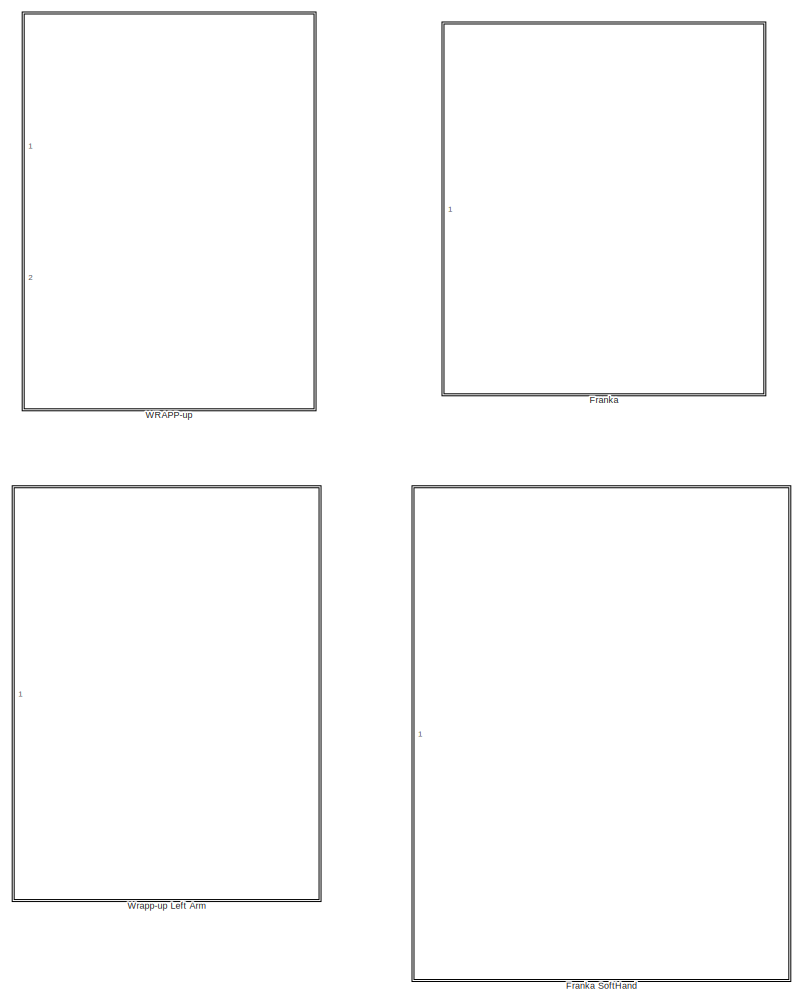
[diagram: root canvas - part 1/3, top center region]
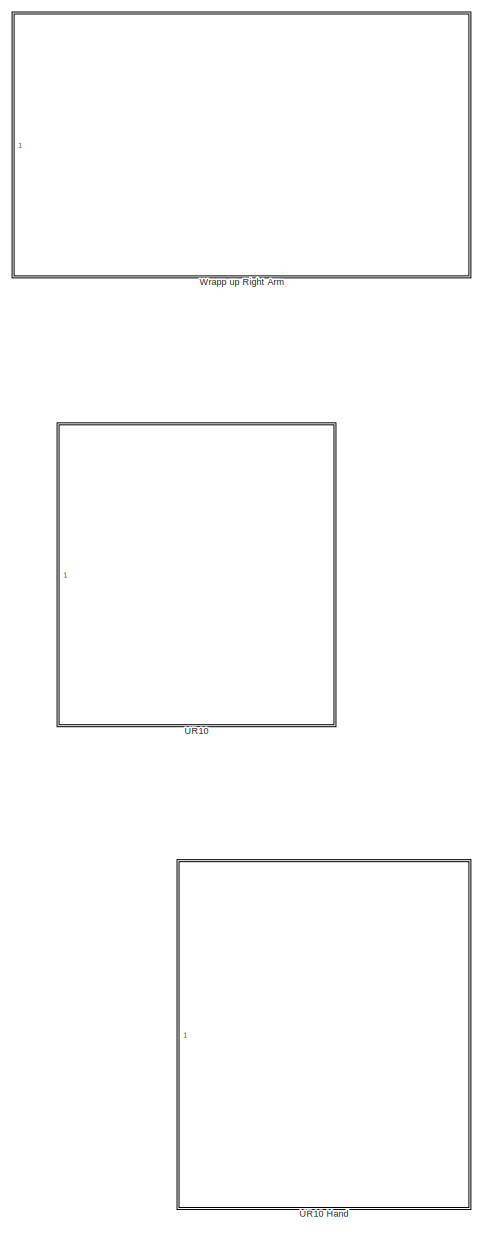
[diagram: root canvas - part 2/3, middle left region]
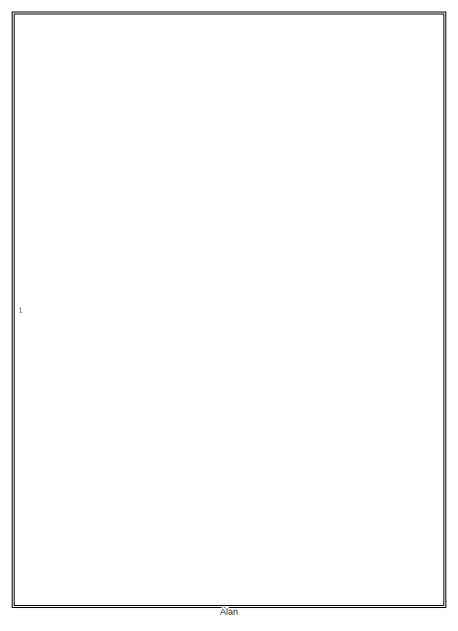
[diagram: root canvas - part 3/3, bottom right region]
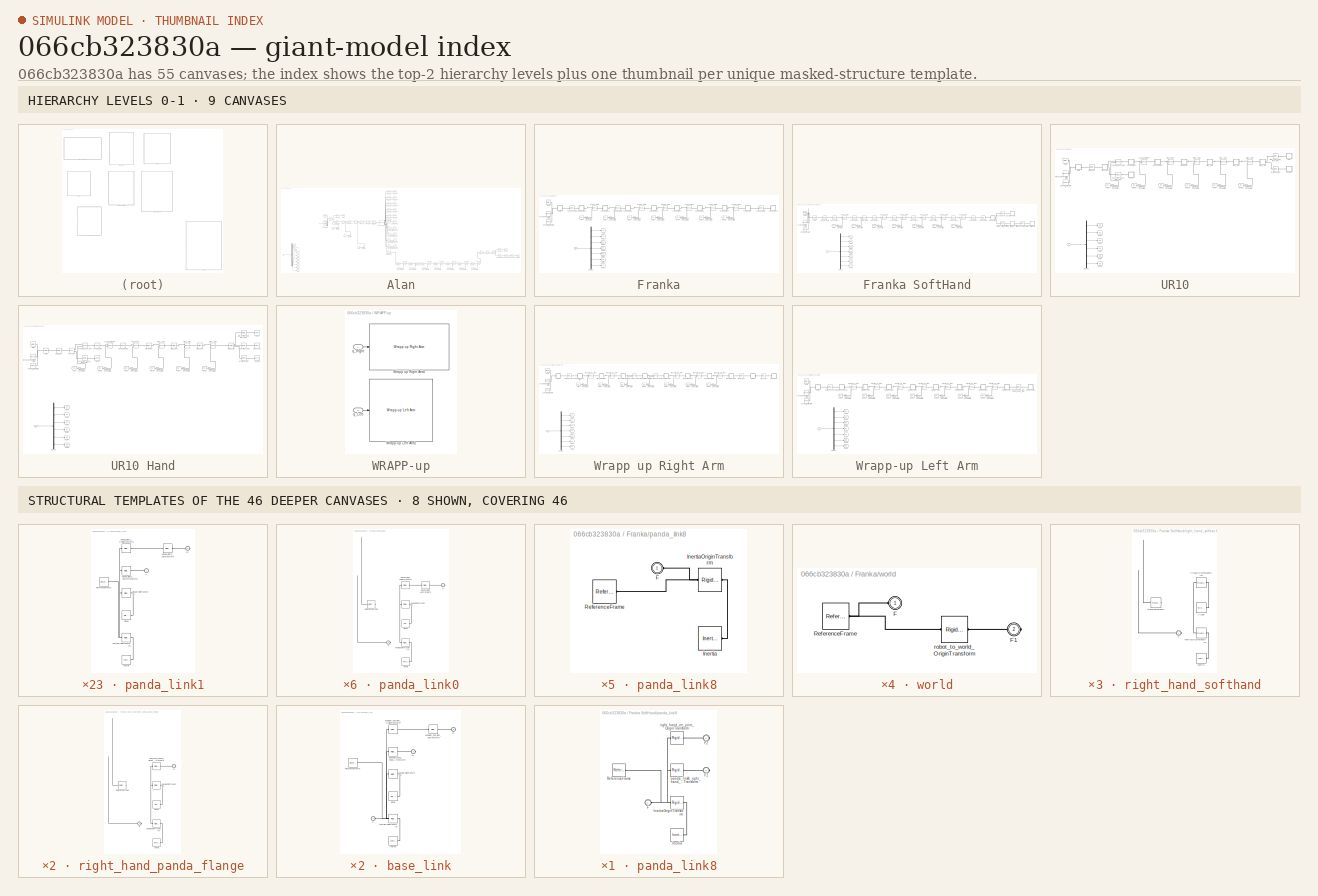
[diagram: thumbnail index - top-2 hierarchy levels (9 canvases) + 8 structural-template representatives of the remaining 46 canvases]
MODEL slx_066cb323830a
KIND library
CONFIG AbsTol = auto
CONFIG EnableMultiTasking = off
CONFIG FixedStep = auto
CONFIG MaxStep = auto
CONFIG MinStep = auto
CONFIG RelTol = 1e-3
CONFIG SampleTimeConstraint = Unconstrained
CONFIG Solver = VariableStepAuto
CONFIG SolverName = VariableStepAuto
CONFIG StartTime = 0.0
CONFIG StopTime = 10.0
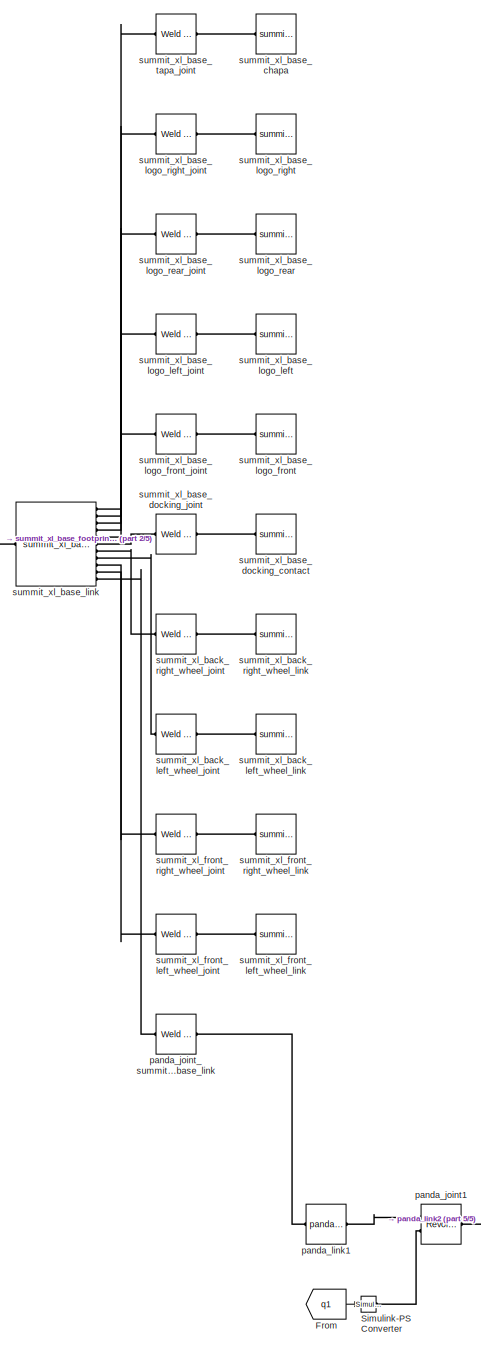
[diagram: Alan - part 1/5, center side, full height]
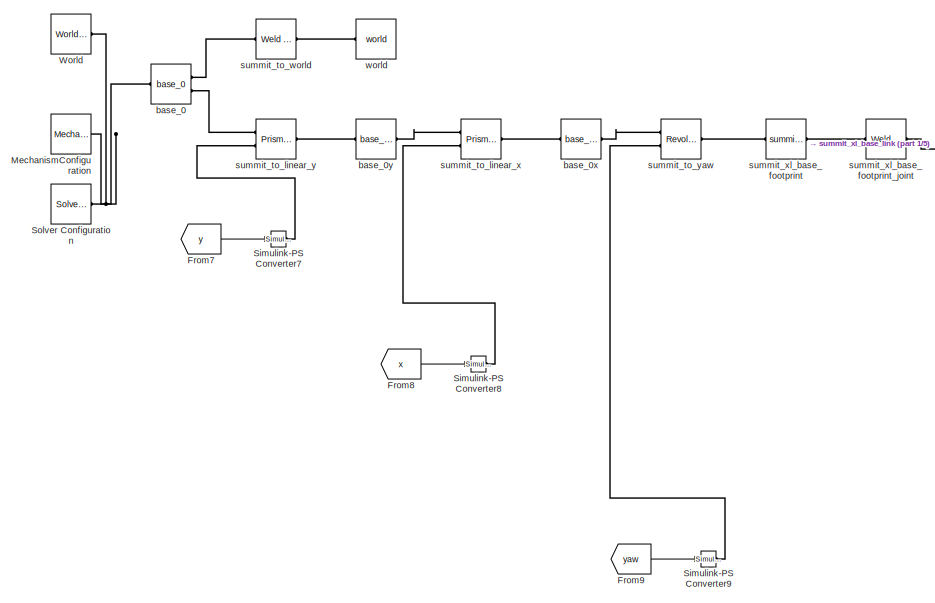
[diagram: Alan - part 2/5, middle left region]
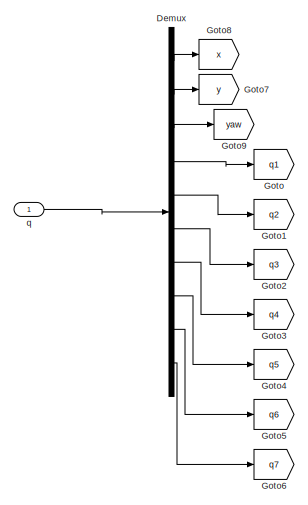
[diagram: Alan - part 3/5, bottom left region]
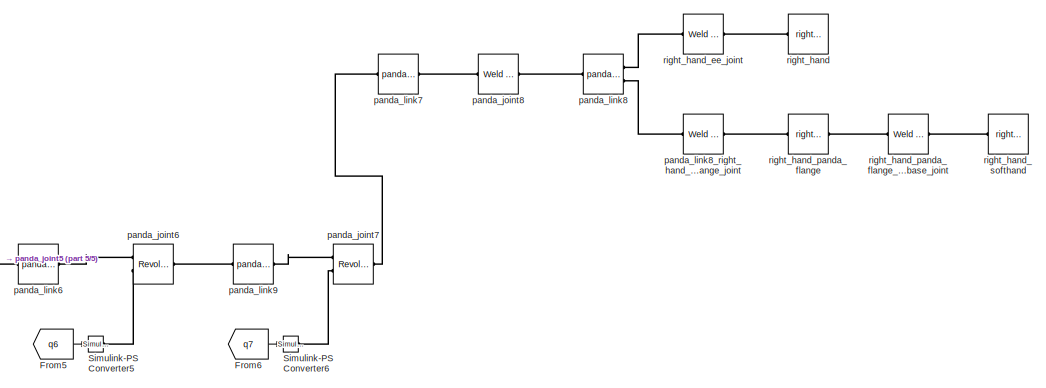
[diagram: Alan - part 4/5, bottom right region]
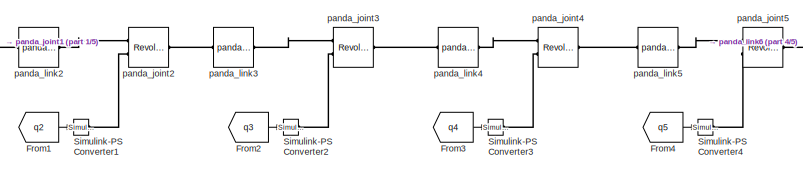
[diagram: Alan - part 5/5, bottom center region]
BLOCK [SubSystem] Alan
  Ports = [1]
  RequestExecContextInheritance = off
BLOCK [Demux] Alan/Demux
  Outputs = 10
  Ports = [1, 10]
BLOCK [From] Alan/From
  GotoTag = q1
BLOCK [From] Alan/From1
  GotoTag = q2
BLOCK [From] Alan/From2
  GotoTag = q3
BLOCK [From] Alan/From3
  GotoTag = q4
BLOCK [From] Alan/From4
  GotoTag = q5
BLOCK [From] Alan/From5
  GotoTag = q6
BLOCK [From] Alan/From6
  GotoTag = q7
BLOCK [From] Alan/From7
  GotoTag = y
BLOCK [From] Alan/From8
  GotoTag = x
BLOCK [From] Alan/From9
  GotoTag = yaw
BLOCK [Goto] Alan/Goto
  GotoTag = q1
BLOCK [Goto] Alan/Goto1
  GotoTag = q2
BLOCK [Goto] Alan/Goto2
  GotoTag = q3
BLOCK [Goto] Alan/Goto3
  GotoTag = q4
BLOCK [Goto] Alan/Goto4
  GotoTag = q5
BLOCK [Goto] Alan/Goto5
  GotoTag = q6
BLOCK [Goto] Alan/Goto6
  GotoTag = q7
BLOCK [Goto] Alan/Goto7
  GotoTag = y
BLOCK [Goto] Alan/Goto8
  GotoTag = x
BLOCK [Goto] Alan/Goto9
  GotoTag = yaw
BLOCK [Reference] Alan/MechanismConfiguration  REF=sm_lib/Utilities/Mechanism
Configuration
  Ports = [0, 0, 0, 0, 0, 0, 1]
  SourceBlock = sm_lib/Utilities/Mechanism\nConfiguration
  SourceProductBaseCode = MS
  SourceType = Mechanism\nConfiguration
BLOCK [Reference] Alan/Simulink-PS Converter  REF=nesl_utility/Simulink-PS
Converter
  Ports = [1, 0, 0, 0, 0, 0, 1]
  SourceBlock = nesl_utility/Simulink-PS\nConverter
  SourceProductBaseCode = SS
  SourceType = Simulink-PS\nConverter
BLOCK [Reference] Alan/Simulink-PS Converter1  REF=nesl_utility/Simulink-PS
Converter
  Ports = [1, 0, 0, 0, 0, 0, 1]
  SourceBlock = nesl_utility/Simulink-PS\nConverter
  SourceProductBaseCode = SS
  SourceType = Simulink-PS\nConverter
BLOCK [Reference] Alan/Simulink-PS Converter2  REF=nesl_utility/Simulink-PS
Converter
  Ports = [1, 0, 0, 0, 0, 0, 1]
  SourceBlock = nesl_utility/Simulink-PS\nConverter
  SourceProductBaseCode = SS
  SourceType = Simulink-PS\nConverter
BLOCK [Reference] Alan/Simulink-PS Converter3  REF=nesl_utility/Simulink-PS
Converter
  Ports = [1, 0, 0, 0, 0, 0, 1]
  SourceBlock = nesl_utility/Simulink-PS\nConverter
  SourceProductBaseCode = SS
  SourceType = Simulink-PS\nConverter
BLOCK [Reference] Alan/Simulink-PS Converter4  REF=nesl_utility/Simulink-PS
Converter
  Ports = [1, 0, 0, 0, 0, 0, 1]
  SourceBlock = nesl_utility/Simulink-PS\nConverter
  SourceProductBaseCode = SS
  SourceType = Simulink-PS\nConverter
BLOCK [Reference] Alan/Simulink-PS Converter5  REF=nesl_utility/Simulink-PS
Converter
  Ports = [1, 0, 0, 0, 0, 0, 1]
  SourceBlock = nesl_utility/Simulink-PS\nConverter
  SourceProductBaseCode = SS
  SourceType = Simulink-PS\nConverter
BLOCK [Reference] Alan/Simulink-PS Converter6  REF=nesl_utility/Simulink-PS
Converter
  Ports = [1, 0, 0, 0, 0, 0, 1]
  SourceBlock = nesl_utility/Simulink-PS\nConverter
  SourceProductBaseCode = SS
  SourceType = Simulink-PS\nConverter
BLOCK [Reference] Alan/Simulink-PS Converter7  REF=nesl_utility/Simulink-PS
Converter
  Ports = [1, 0, 0, 0, 0, 0, 1]
  SourceBlock = nesl_utility/Simulink-PS\nConverter
  SourceProductBaseCode = SS
  SourceType = Simulink-PS\nConverter
BLOCK [Reference] Alan/Simulink-PS Converter8  REF=nesl_utility/Simulink-PS
Converter
  Ports = [1, 0, 0, 0, 0, 0, 1]
  SourceBlock = nesl_utility/Simulink-PS\nConverter
  SourceProductBaseCode = SS
  SourceType = Simulink-PS\nConverter
BLOCK [Reference] Alan/Simulink-PS Converter9  REF=nesl_utility/Simulink-PS
Converter
  Ports = [1, 0, 0, 0, 0, 0, 1]
  SourceBlock = nesl_utility/Simulink-PS\nConverter
  SourceProductBaseCode = SS
  SourceType = Simulink-PS\nConverter
BLOCK [Reference] Alan/Solver Configuration  REF=nesl_utility/Solver
Configuration
  Ports = [0, 0, 0, 0, 0, 0, 1]
  SourceBlock = nesl_utility/Solver\nConfiguration
  SourceProductBaseCode = SS
  SourceType = Solver\nConfiguration
BLOCK [Reference] Alan/World  REF=sm_lib/Frames and
Transforms/World Frame
  Ports = [0, 0, 0, 0, 0, 0, 1]
  SourceBlock = sm_lib/Frames and\nTransforms/World Frame
  SourceProductBaseCode = MS
  SourceType = World Frame
BLOCK [Reference] Alan/base_0  REF=$bdroot/Subsystem/base_0
  Ports = [0, 0, 0, 0, 0, 1, 2]
  SourceBlock = $bdroot/Subsystem/base_0
BLOCK [Reference] Alan/base_0x  REF=$bdroot/Subsystem/base_0x
  Ports = [0, 0, 0, 0, 0, 1, 1]
  SourceBlock = $bdroot/Subsystem/base_0x
BLOCK [Reference] Alan/base_0y  REF=$bdroot/Subsystem/base_0y
  Ports = [0, 0, 0, 0, 0, 1, 1]
  SourceBlock = $bdroot/Subsystem/base_0y
BLOCK [Reference] Alan/panda_joint1  REF=sm_lib/Joints/Revolute Joint
  Ports = [0, 0, 0, 0, 0, 2, 1]
  SourceBlock = sm_lib/Joints/Revolute Joint
  SourceProductBaseCode = MS
  SourceType = Revolute Joint
BLOCK [Reference] Alan/panda_joint2  REF=sm_lib/Joints/Revolute Joint
  Ports = [0, 0, 0, 0, 0, 2, 1]
  SourceBlock = sm_lib/Joints/Revolute Joint
  SourceProductBaseCode = MS
  SourceType = Revolute Joint
BLOCK [Reference] Alan/panda_joint3  REF=sm_lib/Joints/Revolute Joint
  Ports = [0, 0, 0, 0, 0, 2, 1]
  SourceBlock = sm_lib/Joints/Revolute Joint
  SourceProductBaseCode = MS
  SourceType = Revolute Joint
BLOCK [Reference] Alan/panda_joint4  REF=sm_lib/Joints/Revolute Joint
  Ports = [0, 0, 0, 0, 0, 2, 1]
  SourceBlock = sm_lib/Joints/Revolute Joint
  SourceProductBaseCode = MS
  SourceType = Revolute Joint
BLOCK [Reference] Alan/panda_joint5  REF=sm_lib/Joints/Revolute Joint
  Ports = [0, 0, 0, 0, 0, 2, 1]
  SourceBlock = sm_lib/Joints/Revolute Joint
  SourceProductBaseCode = MS
  SourceType = Revolute Joint
BLOCK [Reference] Alan/panda_joint6  REF=sm_lib/Joints/Revolute Joint
  Ports = [0, 0, 0, 0, 0, 2, 1]
  SourceBlock = sm_lib/Joints/Revolute Joint
  SourceProductBaseCode = MS
  SourceType = Revolute Joint
BLOCK [Reference] Alan/panda_joint7  REF=sm_lib/Joints/Revolute Joint
  Ports = [0, 0, 0, 0, 0, 2, 1]
  SourceBlock = sm_lib/Joints/Revolute Joint
  SourceProductBaseCode = MS
  SourceType = Revolute Joint
BLOCK [Reference] Alan/panda_joint8  REF=sm_lib/Joints/Weld Joint
  Ports = [0, 0, 0, 0, 0, 1, 1]
  SourceBlock = sm_lib/Joints/Weld Joint
  SourceProductBaseCode = MS
  SourceType = Weld Joint
BLOCK [Reference] Alan/panda_joint_summit_xl_base_link  REF=sm_lib/Joints/Weld Joint
  Ports = [0, 0, 0, 0, 0, 1, 1]
  SourceBlock = sm_lib/Joints/Weld Joint
  SourceProductBaseCode = MS
  SourceType = Weld Joint
BLOCK [Reference] Alan/panda_link1  REF=$bdroot/Franka/panda_link0
  Ports = [0, 0, 0, 0, 0, 1, 1]
  SourceBlock = $bdroot/Franka/panda_link0
BLOCK [Reference] Alan/panda_link2  REF=$bdroot/Franka/panda_link1
  Ports = [0, 0, 0, 0, 0, 1, 1]
  SourceBlock = $bdroot/Franka/panda_link1
BLOCK [Reference] Alan/panda_link3  REF=$bdroot/Franka/panda_link2
  Ports = [0, 0, 0, 0, 0, 1, 1]
  SourceBlock = $bdroot/Franka/panda_link2
BLOCK [Reference] Alan/panda_link4  REF=$bdroot/Franka/panda_link3
  Ports = [0, 0, 0, 0, 0, 1, 1]
  SourceBlock = $bdroot/Franka/panda_link3
BLOCK [Reference] Alan/panda_link5  REF=$bdroot/Franka/panda_link4
  Ports = [0, 0, 0, 0, 0, 1, 1]
  SourceBlock = $bdroot/Franka/panda_link4
BLOCK [Reference] Alan/panda_link6  REF=$bdroot/Franka/panda_link5
  Ports = [0, 0, 0, 0, 0, 1, 1]
  SourceBlock = $bdroot/Franka/panda_link5
BLOCK [Reference] Alan/panda_link7  REF=$bdroot/Subsystem/panda_link7
  Ports = [0, 0, 0, 0, 0, 1, 1]
  SourceBlock = $bdroot/Subsystem/panda_link7
BLOCK [Reference] Alan/panda_link8  REF=$bdroot/Subsystem/panda_link8
  Ports = [0, 0, 0, 0, 0, 1, 2]
  SourceBlock = $bdroot/Subsystem/panda_link8
BLOCK [Reference] Alan/panda_link8_right_hand_panda_flange_joint  REF=sm_lib/Joints/Weld Joint
  Ports = [0, 0, 0, 0, 0, 1, 1]
  SourceBlock = sm_lib/Joints/Weld Joint
  SourceProductBaseCode = MS
  SourceType = Weld Joint
BLOCK [Reference] Alan/panda_link9  REF=$bdroot/Franka/panda_link6
  Ports = [0, 0, 0, 0, 0, 1, 1]
  SourceBlock = $bdroot/Franka/panda_link6
BLOCK [Inport] Alan/q
BLOCK [Reference] Alan/right_hand  REF=$bdroot/Subsystem/right_hand
  Ports = [0, 0, 0, 0, 0, 1]
  SourceBlock = $bdroot/Subsystem/right_hand
BLOCK [Reference] Alan/right_hand_ee_joint  REF=sm_lib/Joints/Weld Joint
  Ports = [0, 0, 0, 0, 0, 1, 1]
  SourceBlock = sm_lib/Joints/Weld Joint
  SourceProductBaseCode = MS
  SourceType = Weld Joint
BLOCK [Reference] Alan/right_hand_panda_flange  REF=$bdroot/Subsystem/right_hand_panda_flange
  Ports = [0, 0, 0, 0, 0, 1, 1]
  SourceBlock = $bdroot/Subsystem/right_hand_panda_flange
BLOCK [Reference] Alan/right_hand_panda_flange_right_hand_softhand_round_base_joint  REF=sm_lib/Joints/Weld Joint
  Ports = [0, 0, 0, 0, 0, 1, 1]
  SourceBlock = sm_lib/Joints/Weld Joint
  SourceProductBaseCode = MS
  SourceType = Weld Joint
BLOCK [Reference] Alan/right_hand_softhand  REF=$bdroot/Subsystem/right_hand_softhand
  Ports = [0, 0, 0, 0, 0, 1]
  SourceBlock = $bdroot/Subsystem/right_hand_softhand
BLOCK [Reference] Alan/summit_to_linear_x  REF=sm_lib/Joints/Prismatic
Joint
  Ports = [0, 0, 0, 0, 0, 2, 1]
  SourceBlock = sm_lib/Joints/Prismatic\nJoint
  SourceProductBaseCode = MS
  SourceType = Prismatic\nJoint
BLOCK [Reference] Alan/summit_to_linear_y  REF=sm_lib/Joints/Prismatic
Joint
  Ports = [0, 0, 0, 0, 0, 2, 1]
  SourceBlock = sm_lib/Joints/Prismatic\nJoint
  SourceProductBaseCode = MS
  SourceType = Prismatic\nJoint
BLOCK [Reference] Alan/summit_to_world  REF=sm_lib/Joints/Weld Joint
  Ports = [0, 0, 0, 0, 0, 1, 1]
  SourceBlock = sm_lib/Joints/Weld Joint
  SourceProductBaseCode = MS
  SourceType = Weld Joint
BLOCK [Reference] Alan/summit_to_yaw  REF=sm_lib/Joints/Revolute Joint
  Ports = [0, 0, 0, 0, 0, 2, 1]
  SourceBlock = sm_lib/Joints/Revolute Joint
  SourceProductBaseCode = MS
  SourceType = Revolute Joint
BLOCK [Reference] Alan/summit_xl_back_left_wheel_joint  REF=sm_lib/Joints/Weld Joint
  Ports = [0, 0, 0, 0, 0, 1, 1]
  SourceBlock = sm_lib/Joints/Weld Joint
  SourceProductBaseCode = MS
  SourceType = Weld Joint
BLOCK [Reference] Alan/summit_xl_back_left_wheel_link  REF=$bdroot/Subsystem/summit_xl_back_left_wheel_link
  Ports = [0, 0, 0, 0, 0, 1]
  SourceBlock = $bdroot/Subsystem/summit_xl_back_left_wheel_link
BLOCK [Reference] Alan/summit_xl_back_right_wheel_joint  REF=sm_lib/Joints/Weld Joint
  Ports = [0, 0, 0, 0, 0, 1, 1]
  SourceBlock = sm_lib/Joints/Weld Joint
  SourceProductBaseCode = MS
  SourceType = Weld Joint
BLOCK [Reference] Alan/summit_xl_back_right_wheel_link  REF=$bdroot/Subsystem/summit_xl_back_right_wheel_link
  Ports = [0, 0, 0, 0, 0, 1]
  SourceBlock = $bdroot/Subsystem/summit_xl_back_right_wheel_link
BLOCK [Reference] Alan/summit_xl_base_chapa  REF=$bdroot/Subsystem/summit_xl_base_chapa
  Ports = [0, 0, 0, 0, 0, 1]
  SourceBlock = $bdroot/Subsystem/summit_xl_base_chapa
BLOCK [Reference] Alan/summit_xl_base_docking_contact  REF=$bdroot/Subsystem/summit_xl_base_docking_contact
  Ports = [0, 0, 0, 0, 0, 1]
  SourceBlock = $bdroot/Subsystem/summit_xl_base_docking_contact
BLOCK [Reference] Alan/summit_xl_base_docking_joint  REF=sm_lib/Joints/Weld Joint
  Ports = [0, 0, 0, 0, 0, 1, 1]
  SourceBlock = sm_lib/Joints/Weld Joint
  SourceProductBaseCode = MS
  SourceType = Weld Joint
BLOCK [Reference] Alan/summit_xl_base_footprint  REF=$bdroot/Subsystem/summit_xl_base_footprint
  Ports = [0, 0, 0, 0, 0, 1, 1]
  SourceBlock = $bdroot/Subsystem/summit_xl_base_footprint
BLOCK [Reference] Alan/summit_xl_base_footprint_joint  REF=sm_lib/Joints/Weld Joint
  Ports = [0, 0, 0, 0, 0, 1, 1]
  SourceBlock = sm_lib/Joints/Weld Joint
  SourceProductBaseCode = MS
  SourceType = Weld Joint
BLOCK [Reference] Alan/summit_xl_base_link  REF=$bdroot/Subsystem/summit_xl_base_link
  Ports = [0, 0, 0, 0, 0, 1, 11]
  SourceBlock = $bdroot/Subsystem/summit_xl_base_link
BLOCK [Reference] Alan/summit_xl_base_logo_front  REF=$bdroot/Subsystem/summit_xl_base_logo_front
  Ports = [0, 0, 0, 0, 0, 1]
  SourceBlock = $bdroot/Subsystem/summit_xl_base_logo_front
BLOCK [Reference] Alan/summit_xl_base_logo_front_joint  REF=sm_lib/Joints/Weld Joint
  Ports = [0, 0, 0, 0, 0, 1, 1]
  SourceBlock = sm_lib/Joints/Weld Joint
  SourceProductBaseCode = MS
  SourceType = Weld Joint
BLOCK [Reference] Alan/summit_xl_base_logo_left  REF=$bdroot/Subsystem/summit_xl_base_logo_left
  Ports = [0, 0, 0, 0, 0, 1]
  SourceBlock = $bdroot/Subsystem/summit_xl_base_logo_left
BLOCK [Reference] Alan/summit_xl_base_logo_left_joint  REF=sm_lib/Joints/Weld Joint
  Ports = [0, 0, 0, 0, 0, 1, 1]
  SourceBlock = sm_lib/Joints/Weld Joint
  SourceProductBaseCode = MS
  SourceType = Weld Joint
BLOCK [Reference] Alan/summit_xl_base_logo_rear  REF=$bdroot/Subsystem/summit_xl_base_logo_rear
  Ports = [0, 0, 0, 0, 0, 1]
  SourceBlock = $bdroot/Subsystem/summit_xl_base_logo_rear
BLOCK [Reference] Alan/summit_xl_base_logo_rear_joint  REF=sm_lib/Joints/Weld Joint
  Ports = [0, 0, 0, 0, 0, 1, 1]
  SourceBlock = sm_lib/Joints/Weld Joint
  SourceProductBaseCode = MS
  SourceType = Weld Joint
BLOCK [Reference] Alan/summit_xl_base_logo_right  REF=$bdroot/Subsystem/summit_xl_base_logo_right
  Ports = [0, 0, 0, 0, 0, 1]
  SourceBlock = $bdroot/Subsystem/summit_xl_base_logo_right
BLOCK [Reference] Alan/summit_xl_base_logo_right_joint  REF=sm_lib/Joints/Weld Joint
  Ports = [0, 0, 0, 0, 0, 1, 1]
  SourceBlock = sm_lib/Joints/Weld Joint
  SourceProductBaseCode = MS
  SourceType = Weld Joint
BLOCK [Reference] Alan/summit_xl_base_tapa_joint  REF=sm_lib/Joints/Weld Joint
  Ports = [0, 0, 0, 0, 0, 1, 1]
  SourceBlock = sm_lib/Joints/Weld Joint
  SourceProductBaseCode = MS
  SourceType = Weld Joint
BLOCK [Reference] Alan/summit_xl_front_left_wheel_joint  REF=sm_lib/Joints/Weld Joint
  Ports = [0, 0, 0, 0, 0, 1, 1]
  SourceBlock = sm_lib/Joints/Weld Joint
  SourceProductBaseCode = MS
  SourceType = Weld Joint
BLOCK [Reference] Alan/summit_xl_front_left_wheel_link  REF=$bdroot/Subsystem/summit_xl_front_left_wheel_link
  Ports = [0, 0, 0, 0, 0, 1]
  SourceBlock = $bdroot/Subsystem/summit_xl_front_left_wheel_link
BLOCK [Reference] Alan/summit_xl_front_right_wheel_joint  REF=sm_lib/Joints/Weld Joint
  Ports = [0, 0, 0, 0, 0, 1, 1]
  SourceBlock = sm_lib/Joints/Weld Joint
  SourceProductBaseCode = MS
  SourceType = Weld Joint
BLOCK [Reference] Alan/summit_xl_front_right_wheel_link  REF=$bdroot/Subsystem/summit_xl_front_right_wheel_link
  Ports = [0, 0, 0, 0, 0, 1]
  SourceBlock = $bdroot/Subsystem/summit_xl_front_right_wheel_link
BLOCK [Reference] Alan/world  REF=$bdroot/Subsystem/world
  Ports = [0, 0, 0, 0, 0, 1]
  SourceBlock = $bdroot/Subsystem/world
BLOCK [SubSystem] Franka
  Ports = [1]
  RequestExecContextInheritance = off
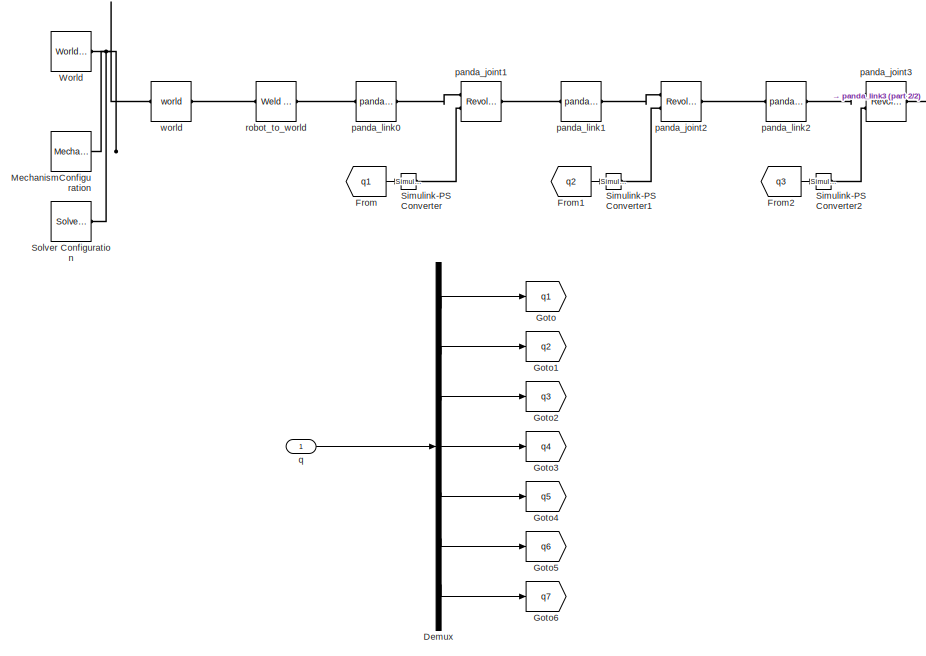
[diagram: Franka SoftHand - part 1/2, left side, full height]
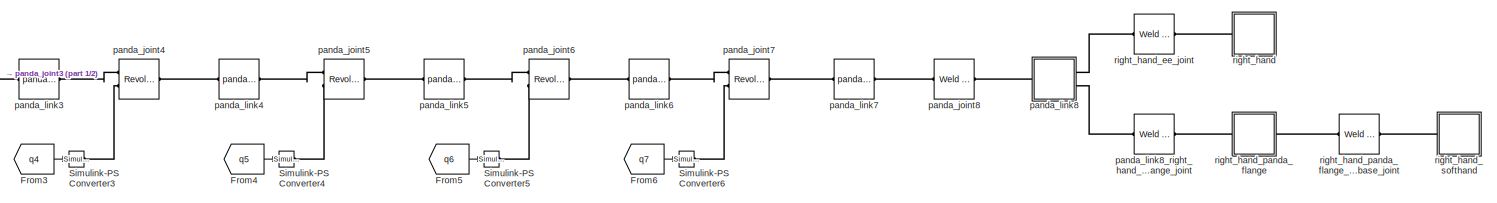
[diagram: Franka SoftHand - part 2/2, top right region]
BLOCK [SubSystem] Franka SoftHand
  Ports = [1]
  RequestExecContextInheritance = off
BLOCK [Demux] Franka SoftHand/Demux
  Outputs = 7
  Ports = [1, 7]
BLOCK [From] Franka SoftHand/From
  GotoTag = q1
BLOCK [From] Franka SoftHand/From1
  GotoTag = q2
BLOCK [From] Franka SoftHand/From2
  GotoTag = q3
BLOCK [From] Franka SoftHand/From3
  GotoTag = q4
BLOCK [From] Franka SoftHand/From4
  GotoTag = q5
BLOCK [From] Franka SoftHand/From5
  GotoTag = q6
BLOCK [From] Franka SoftHand/From6
  GotoTag = q7
BLOCK [Goto] Franka SoftHand/Goto
  GotoTag = q1
BLOCK [Goto] Franka SoftHand/Goto1
  GotoTag = q2
BLOCK [Goto] Franka SoftHand/Goto2
  GotoTag = q3
BLOCK [Goto] Franka SoftHand/Goto3
  GotoTag = q4
BLOCK [Goto] Franka SoftHand/Goto4
  GotoTag = q5
BLOCK [Goto] Franka SoftHand/Goto5
  GotoTag = q6
BLOCK [Goto] Franka SoftHand/Goto6
  GotoTag = q7
BLOCK [Reference] Franka SoftHand/MechanismConfiguration  REF=sm_lib/Utilities/Mechanism
Configuration
  Ports = [0, 0, 0, 0, 0, 0, 1]
  SourceBlock = sm_lib/Utilities/Mechanism\nConfiguration
  SourceProductBaseCode = MS
  SourceType = Mechanism\nConfiguration
BLOCK [Reference] Franka SoftHand/Simulink-PS Converter  REF=nesl_utility/Simulink-PS
Converter
  Ports = [1, 0, 0, 0, 0, 0, 1]
  SourceBlock = nesl_utility/Simulink-PS\nConverter
  SourceProductBaseCode = SS
  SourceType = Simulink-PS\nConverter
BLOCK [Reference] Franka SoftHand/Simulink-PS Converter1  REF=nesl_utility/Simulink-PS
Converter
  Ports = [1, 0, 0, 0, 0, 0, 1]
  SourceBlock = nesl_utility/Simulink-PS\nConverter
  SourceProductBaseCode = SS
  SourceType = Simulink-PS\nConverter
BLOCK [Reference] Franka SoftHand/Simulink-PS Converter2  REF=nesl_utility/Simulink-PS
Converter
  Ports = [1, 0, 0, 0, 0, 0, 1]
  SourceBlock = nesl_utility/Simulink-PS\nConverter
  SourceProductBaseCode = SS
  SourceType = Simulink-PS\nConverter
BLOCK [Reference] Franka SoftHand/Simulink-PS Converter3  REF=nesl_utility/Simulink-PS
Converter
  Ports = [1, 0, 0, 0, 0, 0, 1]
  SourceBlock = nesl_utility/Simulink-PS\nConverter
  SourceProductBaseCode = SS
  SourceType = Simulink-PS\nConverter
BLOCK [Reference] Franka SoftHand/Simulink-PS Converter4  REF=nesl_utility/Simulink-PS
Converter
  Ports = [1, 0, 0, 0, 0, 0, 1]
  SourceBlock = nesl_utility/Simulink-PS\nConverter
  SourceProductBaseCode = SS
  SourceType = Simulink-PS\nConverter
BLOCK [Reference] Franka SoftHand/Simulink-PS Converter5  REF=nesl_utility/Simulink-PS
Converter
  Ports = [1, 0, 0, 0, 0, 0, 1]
  SourceBlock = nesl_utility/Simulink-PS\nConverter
  SourceProductBaseCode = SS
  SourceType = Simulink-PS\nConverter
BLOCK [Reference] Franka SoftHand/Simulink-PS Converter6  REF=nesl_utility/Simulink-PS
Converter
  Ports = [1, 0, 0, 0, 0, 0, 1]
  SourceBlock = nesl_utility/Simulink-PS\nConverter
  SourceProductBaseCode = SS
  SourceType = Simulink-PS\nConverter
BLOCK [Reference] Franka SoftHand/Solver Configuration  REF=nesl_utility/Solver
Configuration
  Ports = [0, 0, 0, 0, 0, 0, 1]
  SourceBlock = nesl_utility/Solver\nConfiguration
  SourceProductBaseCode = SS
  SourceType = Solver\nConfiguration
BLOCK [Reference] Franka SoftHand/World  REF=sm_lib/Frames and
Transforms/World Frame
  Ports = [0, 0, 0, 0, 0, 0, 1]
  SourceBlock = sm_lib/Frames and\nTransforms/World Frame
  SourceProductBaseCode = MS
  SourceType = World Frame
BLOCK [Reference] Franka SoftHand/panda_joint1  REF=sm_lib/Joints/Revolute Joint
  Ports = [0, 0, 0, 0, 0, 2, 1]
  SourceBlock = sm_lib/Joints/Revolute Joint
  SourceProductBaseCode = MS
  SourceType = Revolute Joint
BLOCK [Reference] Franka SoftHand/panda_joint2  REF=sm_lib/Joints/Revolute Joint
  Ports = [0, 0, 0, 0, 0, 2, 1]
  SourceBlock = sm_lib/Joints/Revolute Joint
  SourceProductBaseCode = MS
  SourceType = Revolute Joint
BLOCK [Reference] Franka SoftHand/panda_joint3  REF=sm_lib/Joints/Revolute Joint
  Ports = [0, 0, 0, 0, 0, 2, 1]
  SourceBlock = sm_lib/Joints/Revolute Joint
  SourceProductBaseCode = MS
  SourceType = Revolute Joint
BLOCK [Reference] Franka SoftHand/panda_joint4  REF=sm_lib/Joints/Revolute Joint
  Ports = [0, 0, 0, 0, 0, 2, 1]
  SourceBlock = sm_lib/Joints/Revolute Joint
  SourceProductBaseCode = MS
  SourceType = Revolute Joint
BLOCK [Reference] Franka SoftHand/panda_joint5  REF=sm_lib/Joints/Revolute Joint
  Ports = [0, 0, 0, 0, 0, 2, 1]
  SourceBlock = sm_lib/Joints/Revolute Joint
  SourceProductBaseCode = MS
  SourceType = Revolute Joint
BLOCK [Reference] Franka SoftHand/panda_joint6  REF=sm_lib/Joints/Revolute Joint
  Ports = [0, 0, 0, 0, 0, 2, 1]
  SourceBlock = sm_lib/Joints/Revolute Joint
  SourceProductBaseCode = MS
  SourceType = Revolute Joint
BLOCK [Reference] Franka SoftHand/panda_joint7  REF=sm_lib/Joints/Revolute Joint
  Ports = [0, 0, 0, 0, 0, 2, 1]
  SourceBlock = sm_lib/Joints/Revolute Joint
  SourceProductBaseCode = MS
  SourceType = Revolute Joint
BLOCK [Reference] Franka SoftHand/panda_joint8  REF=sm_lib/Joints/Weld Joint
  Ports = [0, 0, 0, 0, 0, 1, 1]
  SourceBlock = sm_lib/Joints/Weld Joint
  SourceProductBaseCode = MS
  SourceType = Weld Joint
BLOCK [Reference] Franka SoftHand/panda_link0  REF=$bdroot/Franka/panda_link0
  Ports = [0, 0, 0, 0, 0, 1, 1]
  SourceBlock = $bdroot/Franka/panda_link0
BLOCK [Reference] Franka SoftHand/panda_link1  REF=$bdroot/Franka/panda_link1
  Ports = [0, 0, 0, 0, 0, 1, 1]
  SourceBlock = $bdroot/Franka/panda_link1
BLOCK [Reference] Franka SoftHand/panda_link2  REF=$bdroot/Franka/panda_link2
  Ports = [0, 0, 0, 0, 0, 1, 1]
  SourceBlock = $bdroot/Franka/panda_link2
BLOCK [Reference] Franka SoftHand/panda_link3  REF=$bdroot/Franka/panda_link3
  Ports = [0, 0, 0, 0, 0, 1, 1]
  SourceBlock = $bdroot/Franka/panda_link3
BLOCK [Reference] Franka SoftHand/panda_link4  REF=$bdroot/Franka/panda_link4
  Ports = [0, 0, 0, 0, 0, 1, 1]
  SourceBlock = $bdroot/Franka/panda_link4
BLOCK [Reference] Franka SoftHand/panda_link5  REF=$bdroot/Franka/panda_link5
  Ports = [0, 0, 0, 0, 0, 1, 1]
  SourceBlock = $bdroot/Franka/panda_link5
BLOCK [Reference] Franka SoftHand/panda_link6  REF=$bdroot/Franka/panda_link6
  Ports = [0, 0, 0, 0, 0, 1, 1]
  SourceBlock = $bdroot/Franka/panda_link6
BLOCK [Reference] Franka SoftHand/panda_link7  REF=$bdroot/Franka/panda_link7
  Ports = [0, 0, 0, 0, 0, 1, 1]
  SourceBlock = $bdroot/Franka/panda_link7
BLOCK [SubSystem] Franka SoftHand/panda_link8
  Ports = [0, 0, 0, 0, 0, 1, 2]
  RequestExecContextInheritance = off
BLOCK [PMIOPort] Franka SoftHand/panda_link8/F
  Side = Left
BLOCK [PMIOPort] Franka SoftHand/panda_link8/F1
  Port = 3
  Side = Right
BLOCK [PMIOPort] Franka SoftHand/panda_link8/F2
  Port = 2
  Side = Right
BLOCK [Reference] Franka SoftHand/panda_link8/Inertia  REF=sm_lib/Body Elements/Inertia
  Ports = [0, 0, 0, 0, 0, 0, 1]
  SourceBlock = sm_lib/Body Elements/Inertia
  SourceProductBaseCode = MS
  SourceType = Inertia
BLOCK [Reference] Franka SoftHand/panda_link8/InertiaOriginTransform  REF=sm_lib/Frames and
Transforms/Rigid
Transform
  Ports = [0, 0, 0, 0, 0, 1, 1]
  SourceBlock = sm_lib/Frames and\nTransforms/Rigid\nTransform
  SourceProductBaseCode = MS
  SourceType = Rigid\nTransform
BLOCK [Reference] Franka SoftHand/panda_link8/ReferenceFrame  REF=sm_lib/Frames and
Transforms/Reference
Frame
  Ports = [0, 0, 0, 0, 0, 0, 1]
  SourceBlock = sm_lib/Frames and\nTransforms/Reference\nFrame
  SourceProductBaseCode = MS
  SourceType = Reference\nFrame
BLOCK [Reference] Franka SoftHand/panda_link8/panda_link8_right_hand_panda_flange_joint_OriginTransform  REF=sm_lib/Frames and
Transforms/Rigid
Transform
  Ports = [0, 0, 0, 0, 0, 1, 1]
  SourceBlock = sm_lib/Frames and\nTransforms/Rigid\nTransform
  SourceProductBaseCode = MS
  SourceType = Rigid\nTransform
BLOCK [Reference] Franka SoftHand/panda_link8/right_hand_ee_joint_OriginTransform  REF=sm_lib/Frames and
Transforms/Rigid
Transform
  Ports = [0, 0, 0, 0, 0, 1, 1]
  SourceBlock = sm_lib/Frames and\nTransforms/Rigid\nTransform
  SourceProductBaseCode = MS
  SourceType = Rigid\nTransform
BLOCK [Reference] Franka SoftHand/panda_link8_right_hand_panda_flange_joint  REF=sm_lib/Joints/Weld Joint
  Ports = [0, 0, 0, 0, 0, 1, 1]
  SourceBlock = sm_lib/Joints/Weld Joint
  SourceProductBaseCode = MS
  SourceType = Weld Joint
BLOCK [Inport] Franka SoftHand/q
BLOCK [SubSystem] Franka SoftHand/right_hand
  Ports = [0, 0, 0, 0, 0, 1]
  RequestExecContextInheritance = off
BLOCK [PMIOPort] Franka SoftHand/right_hand/F
  Side = Left
BLOCK [Reference] Franka SoftHand/right_hand/Inertia  REF=sm_lib/Body Elements/Inertia
  Ports = [0, 0, 0, 0, 0, 0, 1]
  SourceBlock = sm_lib/Body Elements/Inertia
  SourceProductBaseCode = MS
  SourceType = Inertia
BLOCK [Reference] Franka SoftHand/right_hand/InertiaOriginTransform  REF=sm_lib/Frames and
Transforms/Rigid
Transform
  Ports = [0, 0, 0, 0, 0, 1, 1]
  SourceBlock = sm_lib/Frames and\nTransforms/Rigid\nTransform
  SourceProductBaseCode = MS
  SourceType = Rigid\nTransform
BLOCK [Reference] Franka SoftHand/right_hand/ReferenceFrame  REF=sm_lib/Frames and
Transforms/Reference
Frame
  Ports = [0, 0, 0, 0, 0, 0, 1]
  SourceBlock = sm_lib/Frames and\nTransforms/Reference\nFrame
  SourceProductBaseCode = MS
  SourceType = Reference\nFrame
BLOCK [Reference] Franka SoftHand/right_hand_ee_joint  REF=sm_lib/Joints/Weld Joint
  Ports = [0, 0, 0, 0, 0, 1, 1]
  SourceBlock = sm_lib/Joints/Weld Joint
  SourceProductBaseCode = MS
  SourceType = Weld Joint
BLOCK [SubSystem] Franka SoftHand/right_hand_panda_flange
  Ports = [0, 0, 0, 0, 0, 1, 1]
  RequestExecContextInheritance = off
BLOCK [PMIOPort] Franka SoftHand/right_hand_panda_flange/F
  Side = Left
BLOCK [PMIOPort] Franka SoftHand/right_hand_panda_flange/F1
  Port = 2
  Side = Right
BLOCK [Reference] Franka SoftHand/right_hand_panda_flange/Inertia  REF=sm_lib/Body Elements/Inertia
  Ports = [0, 0, 0, 0, 0, 0, 1]
  SourceBlock = sm_lib/Body Elements/Inertia
  SourceProductBaseCode = MS
  SourceType = Inertia
BLOCK [Reference] Franka SoftHand/right_hand_panda_flange/InertiaOriginTransform  REF=sm_lib/Frames and
Transforms/Rigid
Transform
  Ports = [0, 0, 0, 0, 0, 1, 1]
  SourceBlock = sm_lib/Frames and\nTransforms/Rigid\nTransform
  SourceProductBaseCode = MS
  SourceType = Rigid\nTransform
BLOCK [Reference] Franka SoftHand/right_hand_panda_flange/ReferenceFrame  REF=sm_lib/Frames and
Transforms/Reference
Frame
  Ports = [0, 0, 0, 0, 0, 0, 1]
  SourceBlock = sm_lib/Frames and\nTransforms/Reference\nFrame
  SourceProductBaseCode = MS
  SourceType = Reference\nFrame
BLOCK [Reference] Franka SoftHand/right_hand_panda_flange/Visual  REF=sm_lib/Body Elements/File Solid
  Ports = [0, 0, 0, 0, 0, 0, 1]
  SourceBlock = sm_lib/Body Elements/File Solid
  SourceProductBaseCode = MS
  SourceType = File Solid
BLOCK [Reference] Franka SoftHand/right_hand_panda_flange/VisualOriginTransform  REF=sm_lib/Frames and
Transforms/Rigid
Transform
  Ports = [0, 0, 0, 0, 0, 1, 1]
  SourceBlock = sm_lib/Frames and\nTransforms/Rigid\nTransform
  SourceProductBaseCode = MS
  SourceType = Rigid\nTransform
BLOCK [Reference] Franka SoftHand/right_hand_panda_flange/right_hand_panda_flange_right_hand_softhand_round_baTransform  REF=sm_lib/Frames and
Transforms/Rigid
Transform
  Ports = [0, 0, 0, 0, 0, 1, 1]
  SourceBlock = sm_lib/Frames and\nTransforms/Rigid\nTransform
  SourceProductBaseCode = MS
  SourceType = Rigid\nTransform
BLOCK [Reference] Franka SoftHand/right_hand_panda_flange_right_hand_softhand_round_base_joint  REF=sm_lib/Joints/Weld Joint
  Ports = [0, 0, 0, 0, 0, 1, 1]
  SourceBlock = sm_lib/Joints/Weld Joint
  SourceProductBaseCode = MS
  SourceType = Weld Joint
BLOCK [SubSystem] Franka SoftHand/right_hand_softhand
  Ports = [0, 0, 0, 0, 0, 1]
  RequestExecContextInheritance = off
BLOCK [PMIOPort] Franka SoftHand/right_hand_softhand/F
  Side = Left
BLOCK [Reference] Franka SoftHand/right_hand_softhand/Inertia  REF=sm_lib/Body Elements/Inertia
  Ports = [0, 0, 0, 0, 0, 0, 1]
  SourceBlock = sm_lib/Body Elements/Inertia
  SourceProductBaseCode = MS
  SourceType = Inertia
BLOCK [Reference] Franka SoftHand/right_hand_softhand/InertiaOriginTransform  REF=sm_lib/Frames and
Transforms/Rigid
Transform
  Ports = [0, 0, 0, 0, 0, 1, 1]
  SourceBlock = sm_lib/Frames and\nTransforms/Rigid\nTransform
  SourceProductBaseCode = MS
  SourceType = Rigid\nTransform
BLOCK [Reference] Franka SoftHand/right_hand_softhand/ReferenceFrame  REF=sm_lib/Frames and
Transforms/Reference
Frame
  Ports = [0, 0, 0, 0, 0, 0, 1]
  SourceBlock = sm_lib/Frames and\nTransforms/Reference\nFrame
  SourceProductBaseCode = MS
  SourceType = Reference\nFrame
BLOCK [Reference] Franka SoftHand/right_hand_softhand/Visual  REF=sm_lib/Body Elements/File Solid
  Ports = [0, 0, 0, 0, 0, 0, 1]
  SourceBlock = sm_lib/Body Elements/File Solid
  SourceProductBaseCode = MS
  SourceType = File Solid
BLOCK [Reference] Franka SoftHand/right_hand_softhand/VisualOriginTransform  REF=sm_lib/Frames and
Transforms/Rigid
Transform
  Ports = [0, 0, 0, 0, 0, 1, 1]
  SourceBlock = sm_lib/Frames and\nTransforms/Rigid\nTransform
  SourceProductBaseCode = MS
  SourceType = Rigid\nTransform
BLOCK [Reference] Franka SoftHand/robot_to_world  REF=sm_lib/Joints/Weld Joint
  Ports = [0, 0, 0, 0, 0, 1, 1]
  SourceBlock = sm_lib/Joints/Weld Joint
  SourceProductBaseCode = MS
  SourceType = Weld Joint
BLOCK [Reference] Franka SoftHand/world  REF=$bdroot/Franka/world
  Ports = [0, 0, 0, 0, 0, 1, 1]
  SourceBlock = $bdroot/Franka/world
BLOCK [Demux] Franka/Demux
  Outputs = 7
  Ports = [1, 7]
BLOCK [From] Franka/From
  GotoTag = q1
BLOCK [From] Franka/From1
  GotoTag = q2
BLOCK [From] Franka/From2
  GotoTag = q3
BLOCK [From] Franka/From3
  GotoTag = q4
BLOCK [From] Franka/From4
  GotoTag = q5
BLOCK [From] Franka/From5
  GotoTag = q6
BLOCK [From] Franka/From6
  GotoTag = q7
BLOCK [Goto] Franka/Goto
  GotoTag = q1
BLOCK [Goto] Franka/Goto1
  GotoTag = q2
BLOCK [Goto] Franka/Goto2
  GotoTag = q3
BLOCK [Goto] Franka/Goto3
  GotoTag = q4
BLOCK [Goto] Franka/Goto4
  GotoTag = q5
BLOCK [Goto] Franka/Goto5
  GotoTag = q6
BLOCK [Goto] Franka/Goto6
  GotoTag = q7
BLOCK [Reference] Franka/MechanismConfiguration  REF=sm_lib/Utilities/Mechanism
Configuration
  Ports = [0, 0, 0, 0, 0, 0, 1]
  SourceBlock = sm_lib/Utilities/Mechanism\nConfiguration
  SourceProductBaseCode = MS
  SourceType = Mechanism\nConfiguration
BLOCK [Reference] Franka/Simulink-PS Converter  REF=nesl_utility/Simulink-PS
Converter
  Ports = [1, 0, 0, 0, 0, 0, 1]
  SourceBlock = nesl_utility/Simulink-PS\nConverter
  SourceProductBaseCode = SS
  SourceType = Simulink-PS\nConverter
BLOCK [Reference] Franka/Simulink-PS Converter1  REF=nesl_utility/Simulink-PS
Converter
  Ports = [1, 0, 0, 0, 0, 0, 1]
  SourceBlock = nesl_utility/Simulink-PS\nConverter
  SourceProductBaseCode = SS
  SourceType = Simulink-PS\nConverter
BLOCK [Reference] Franka/Simulink-PS Converter2  REF=nesl_utility/Simulink-PS
Converter
  Ports = [1, 0, 0, 0, 0, 0, 1]
  SourceBlock = nesl_utility/Simulink-PS\nConverter
  SourceProductBaseCode = SS
  SourceType = Simulink-PS\nConverter
BLOCK [Reference] Franka/Simulink-PS Converter3  REF=nesl_utility/Simulink-PS
Converter
  Ports = [1, 0, 0, 0, 0, 0, 1]
  SourceBlock = nesl_utility/Simulink-PS\nConverter
  SourceProductBaseCode = SS
  SourceType = Simulink-PS\nConverter
BLOCK [Reference] Franka/Simulink-PS Converter4  REF=nesl_utility/Simulink-PS
Converter
  Ports = [1, 0, 0, 0, 0, 0, 1]
  SourceBlock = nesl_utility/Simulink-PS\nConverter
  SourceProductBaseCode = SS
  SourceType = Simulink-PS\nConverter
BLOCK [Reference] Franka/Simulink-PS Converter5  REF=nesl_utility/Simulink-PS
Converter
  Ports = [1, 0, 0, 0, 0, 0, 1]
  SourceBlock = nesl_utility/Simulink-PS\nConverter
  SourceProductBaseCode = SS
  SourceType = Simulink-PS\nConverter
BLOCK [Reference] Franka/Simulink-PS Converter6  REF=nesl_utility/Simulink-PS
Converter
  Ports = [1, 0, 0, 0, 0, 0, 1]
  SourceBlock = nesl_utility/Simulink-PS\nConverter
  SourceProductBaseCode = SS
  SourceType = Simulink-PS\nConverter
BLOCK [Reference] Franka/Solver Configuration  REF=nesl_utility/Solver
Configuration
  Ports = [0, 0, 0, 0, 0, 0, 1]
  SourceBlock = nesl_utility/Solver\nConfiguration
  SourceProductBaseCode = SS
  SourceType = Solver\nConfiguration
BLOCK [Reference] Franka/World  REF=sm_lib/Frames and
Transforms/World Frame
  Ports = [0, 0, 0, 0, 0, 0, 1]
  SourceBlock = sm_lib/Frames and\nTransforms/World Frame
  SourceProductBaseCode = MS
  SourceType = World Frame
BLOCK [Reference] Franka/panda_joint1  REF=sm_lib/Joints/Revolute Joint
  Ports = [0, 0, 0, 0, 0, 2, 1]
  SourceBlock = sm_lib/Joints/Revolute Joint
  SourceProductBaseCode = MS
  SourceType = Revolute Joint
BLOCK [Reference] Franka/panda_joint2  REF=sm_lib/Joints/Revolute Joint
  Ports = [0, 0, 0, 0, 0, 2, 1]
  SourceBlock = sm_lib/Joints/Revolute Joint
  SourceProductBaseCode = MS
  SourceType = Revolute Joint
BLOCK [Reference] Franka/panda_joint3  REF=sm_lib/Joints/Revolute Joint
  Ports = [0, 0, 0, 0, 0, 2, 1]
  SourceBlock = sm_lib/Joints/Revolute Joint
  SourceProductBaseCode = MS
  SourceType = Revolute Joint
BLOCK [Reference] Franka/panda_joint4  REF=sm_lib/Joints/Revolute Joint
  Ports = [0, 0, 0, 0, 0, 2, 1]
  SourceBlock = sm_lib/Joints/Revolute Joint
  SourceProductBaseCode = MS
  SourceType = Revolute Joint
BLOCK [Reference] Franka/panda_joint5  REF=sm_lib/Joints/Revolute Joint
  Ports = [0, 0, 0, 0, 0, 2, 1]
  SourceBlock = sm_lib/Joints/Revolute Joint
  SourceProductBaseCode = MS
  SourceType = Revolute Joint
BLOCK [Reference] Franka/panda_joint6  REF=sm_lib/Joints/Revolute Joint
  Ports = [0, 0, 0, 0, 0, 2, 1]
  SourceBlock = sm_lib/Joints/Revolute Joint
  SourceProductBaseCode = MS
  SourceType = Revolute Joint
BLOCK [Reference] Franka/panda_joint7  REF=sm_lib/Joints/Revolute Joint
  Ports = [0, 0, 0, 0, 0, 2, 1]
  SourceBlock = sm_lib/Joints/Revolute Joint
  SourceProductBaseCode = MS
  SourceType = Revolute Joint
BLOCK [Reference] Franka/panda_joint8  REF=sm_lib/Joints/Weld Joint
  Ports = [0, 0, 0, 0, 0, 1, 1]
  SourceBlock = sm_lib/Joints/Weld Joint
  SourceProductBaseCode = MS
  SourceType = Weld Joint
BLOCK [SubSystem] Franka/panda_link0
  Ports = [0, 0, 0, 0, 0, 1, 1]
  RequestExecContextInheritance = off
BLOCK [PMIOPort] Franka/panda_link0/F
  Side = Left
BLOCK [PMIOPort] Franka/panda_link0/F1
  Port = 2
  Side = Right
BLOCK [Reference] Franka/panda_link0/Inertia  REF=sm_lib/Body Elements/Inertia
  Ports = [0, 0, 0, 0, 0, 0, 1]
  SourceBlock = sm_lib/Body Elements/Inertia
  SourceProductBaseCode = MS
  SourceType = Inertia
BLOCK [Reference] Franka/panda_link0/InertiaOriginTransform  REF=sm_lib/Frames and
Transforms/Rigid
Transform
  Ports = [0, 0, 0, 0, 0, 1, 1]
  SourceBlock = sm_lib/Frames and\nTransforms/Rigid\nTransform
  SourceProductBaseCode = MS
  SourceType = Rigid\nTransform
BLOCK [Reference] Franka/panda_link0/ReferenceFrame  REF=sm_lib/Frames and
Transforms/Reference
Frame
  Ports = [0, 0, 0, 0, 0, 0, 1]
  SourceBlock = sm_lib/Frames and\nTransforms/Reference\nFrame
  SourceProductBaseCode = MS
  SourceType = Reference\nFrame
BLOCK [Reference] Franka/panda_link0/Visual  REF=sm_lib/Body Elements/File Solid
  Ports = [0, 0, 0, 0, 0, 0, 1]
  SourceBlock = sm_lib/Body Elements/File Solid
  SourceProductBaseCode = MS
  SourceType = File Solid
BLOCK [Reference] Franka/panda_link0/VisualOriginTransform  REF=sm_lib/Frames and
Transforms/Rigid
Transform
  Ports = [0, 0, 0, 0, 0, 1, 1]
  SourceBlock = sm_lib/Frames and\nTransforms/Rigid\nTransform
  SourceProductBaseCode = MS
  SourceType = Rigid\nTransform
BLOCK [Reference] Franka/panda_link0/panda_joint1_AxisTransform  REF=sm_lib/Frames and
Transforms/Rigid
Transform
  Ports = [0, 0, 0, 0, 0, 1, 1]
  SourceBlock = sm_lib/Frames and\nTransforms/Rigid\nTransform
  SourceProductBaseCode = MS
  SourceType = Rigid\nTransform
BLOCK [Reference] Franka/panda_link0/panda_joint1_OriginTransform  REF=sm_lib/Frames and
Transforms/Rigid
Transform
  Ports = [0, 0, 0, 0, 0, 1, 1]
  SourceBlock = sm_lib/Frames and\nTransforms/Rigid\nTransform
  SourceProductBaseCode = MS
  SourceType = Rigid\nTransform
BLOCK [SubSystem] Franka/panda_link1
  Ports = [0, 0, 0, 0, 0, 1, 1]
  RequestExecContextInheritance = off
BLOCK [PMIOPort] Franka/panda_link1/F
  Side = Left
BLOCK [PMIOPort] Franka/panda_link1/F1
  Port = 2
  Side = Right
BLOCK [Reference] Franka/panda_link1/Inertia  REF=sm_lib/Body Elements/Inertia
  Ports = [0, 0, 0, 0, 0, 0, 1]
  SourceBlock = sm_lib/Body Elements/Inertia
  SourceProductBaseCode = MS
  SourceType = Inertia
BLOCK [Reference] Franka/panda_link1/InertiaOriginTransform  REF=sm_lib/Frames and
Transforms/Rigid
Transform
  Ports = [0, 0, 0, 0, 0, 1, 1]
  SourceBlock = sm_lib/Frames and\nTransforms/Rigid\nTransform
  SourceProductBaseCode = MS
  SourceType = Rigid\nTransform
BLOCK [Reference] Franka/panda_link1/ReferenceFrame  REF=sm_lib/Frames and
Transforms/Reference
Frame
  Ports = [0, 0, 0, 0, 0, 0, 1]
  SourceBlock = sm_lib/Frames and\nTransforms/Reference\nFrame
  SourceProductBaseCode = MS
  SourceType = Reference\nFrame
BLOCK [Reference] Franka/panda_link1/Visual  REF=sm_lib/Body Elements/File Solid
  Ports = [0, 0, 0, 0, 0, 0, 1]
  SourceBlock = sm_lib/Body Elements/File Solid
  SourceProductBaseCode = MS
  SourceType = File Solid
BLOCK [Reference] Franka/panda_link1/VisualOriginTransform  REF=sm_lib/Frames and
Transforms/Rigid
Transform
  Ports = [0, 0, 0, 0, 0, 1, 1]
  SourceBlock = sm_lib/Frames and\nTransforms/Rigid\nTransform
  SourceProductBaseCode = MS
  SourceType = Rigid\nTransform
BLOCK [Reference] Franka/panda_link1/panda_joint1_AxisInvTransform  REF=sm_lib/Frames and
Transforms/Rigid
Transform
  Ports = [0, 0, 0, 0, 0, 1, 1]
  SourceBlock = sm_lib/Frames and\nTransforms/Rigid\nTransform
  SourceProductBaseCode = MS
  SourceType = Rigid\nTransform
BLOCK [Reference] Franka/panda_link1/panda_joint2_AxisTransform  REF=sm_lib/Frames and
Transforms/Rigid
Transform
  Ports = [0, 0, 0, 0, 0, 1, 1]
  SourceBlock = sm_lib/Frames and\nTransforms/Rigid\nTransform
  SourceProductBaseCode = MS
  SourceType = Rigid\nTransform
BLOCK [Reference] Franka/panda_link1/panda_joint2_OriginTransform  REF=sm_lib/Frames and
Transforms/Rigid
Transform
  Ports = [0, 0, 0, 0, 0, 1, 1]
  SourceBlock = sm_lib/Frames and\nTransforms/Rigid\nTransform
  SourceProductBaseCode = MS
  SourceType = Rigid\nTransform
BLOCK [SubSystem] Franka/panda_link2
  Ports = [0, 0, 0, 0, 0, 1, 1]
  RequestExecContextInheritance = off
BLOCK [PMIOPort] Franka/panda_link2/F
  Side = Left
BLOCK [PMIOPort] Franka/panda_link2/F1
  Port = 2
  Side = Right
BLOCK [Reference] Franka/panda_link2/Inertia  REF=sm_lib/Body Elements/Inertia
  Ports = [0, 0, 0, 0, 0, 0, 1]
  SourceBlock = sm_lib/Body Elements/Inertia
  SourceProductBaseCode = MS
  SourceType = Inertia
BLOCK [Reference] Franka/panda_link2/InertiaOriginTransform  REF=sm_lib/Frames and
Transforms/Rigid
Transform
  Ports = [0, 0, 0, 0, 0, 1, 1]
  SourceBlock = sm_lib/Frames and\nTransforms/Rigid\nTransform
  SourceProductBaseCode = MS
  SourceType = Rigid\nTransform
BLOCK [Reference] Franka/panda_link2/ReferenceFrame  REF=sm_lib/Frames and
Transforms/Reference
Frame
  Ports = [0, 0, 0, 0, 0, 0, 1]
  SourceBlock = sm_lib/Frames and\nTransforms/Reference\nFrame
  SourceProductBaseCode = MS
  SourceType = Reference\nFrame
BLOCK [Reference] Franka/panda_link2/Visual  REF=sm_lib/Body Elements/File Solid
  Ports = [0, 0, 0, 0, 0, 0, 1]
  SourceBlock = sm_lib/Body Elements/File Solid
  SourceProductBaseCode = MS
  SourceType = File Solid
BLOCK [Reference] Franka/panda_link2/VisualOriginTransform  REF=sm_lib/Frames and
Transforms/Rigid
Transform
  Ports = [0, 0, 0, 0, 0, 1, 1]
  SourceBlock = sm_lib/Frames and\nTransforms/Rigid\nTransform
  SourceProductBaseCode = MS
  SourceType = Rigid\nTransform
BLOCK [Reference] Franka/panda_link2/panda_joint2_AxisInvTransform  REF=sm_lib/Frames and
Transforms/Rigid
Transform
  Ports = [0, 0, 0, 0, 0, 1, 1]
  SourceBlock = sm_lib/Frames and\nTransforms/Rigid\nTransform
  SourceProductBaseCode = MS
  SourceType = Rigid\nTransform
BLOCK [Reference] Franka/panda_link2/panda_joint3_AxisTransform  REF=sm_lib/Frames and
Transforms/Rigid
Transform
  Ports = [0, 0, 0, 0, 0, 1, 1]
  SourceBlock = sm_lib/Frames and\nTransforms/Rigid\nTransform
  SourceProductBaseCode = MS
  SourceType = Rigid\nTransform
BLOCK [Reference] Franka/panda_link2/panda_joint3_OriginTransform  REF=sm_lib/Frames and
Transforms/Rigid
Transform
  Ports = [0, 0, 0, 0, 0, 1, 1]
  SourceBlock = sm_lib/Frames and\nTransforms/Rigid\nTransform
  SourceProductBaseCode = MS
  SourceType = Rigid\nTransform
BLOCK [SubSystem] Franka/panda_link3
  Ports = [0, 0, 0, 0, 0, 1, 1]
  RequestExecContextInheritance = off
BLOCK [PMIOPort] Franka/panda_link3/F
  Side = Left
BLOCK [PMIOPort] Franka/panda_link3/F1
  Port = 2
  Side = Right
BLOCK [Reference] Franka/panda_link3/Inertia  REF=sm_lib/Body Elements/Inertia
  Ports = [0, 0, 0, 0, 0, 0, 1]
  SourceBlock = sm_lib/Body Elements/Inertia
  SourceProductBaseCode = MS
  SourceType = Inertia
BLOCK [Reference] Franka/panda_link3/InertiaOriginTransform  REF=sm_lib/Frames and
Transforms/Rigid
Transform
  Ports = [0, 0, 0, 0, 0, 1, 1]
  SourceBlock = sm_lib/Frames and\nTransforms/Rigid\nTransform
  SourceProductBaseCode = MS
  SourceType = Rigid\nTransform
BLOCK [Reference] Franka/panda_link3/ReferenceFrame  REF=sm_lib/Frames and
Transforms/Reference
Frame
  Ports = [0, 0, 0, 0, 0, 0, 1]
  SourceBlock = sm_lib/Frames and\nTransforms/Reference\nFrame
  SourceProductBaseCode = MS
  SourceType = Reference\nFrame
BLOCK [Reference] Franka/panda_link3/Visual  REF=sm_lib/Body Elements/File Solid
  Ports = [0, 0, 0, 0, 0, 0, 1]
  SourceBlock = sm_lib/Body Elements/File Solid
  SourceProductBaseCode = MS
  SourceType = File Solid
BLOCK [Reference] Franka/panda_link3/VisualOriginTransform  REF=sm_lib/Frames and
Transforms/Rigid
Transform
  Ports = [0, 0, 0, 0, 0, 1, 1]
  SourceBlock = sm_lib/Frames and\nTransforms/Rigid\nTransform
  SourceProductBaseCode = MS
  SourceType = Rigid\nTransform
BLOCK [Reference] Franka/panda_link3/panda_joint3_AxisInvTransform  REF=sm_lib/Frames and
Transforms/Rigid
Transform
  Ports = [0, 0, 0, 0, 0, 1, 1]
  SourceBlock = sm_lib/Frames and\nTransforms/Rigid\nTransform
  SourceProductBaseCode = MS
  SourceType = Rigid\nTransform
BLOCK [Reference] Franka/panda_link3/panda_joint4_AxisTransform  REF=sm_lib/Frames and
Transforms/Rigid
Transform
  Ports = [0, 0, 0, 0, 0, 1, 1]
  SourceBlock = sm_lib/Frames and\nTransforms/Rigid\nTransform
  SourceProductBaseCode = MS
  SourceType = Rigid\nTransform
BLOCK [Reference] Franka/panda_link3/panda_joint4_OriginTransform  REF=sm_lib/Frames and
Transforms/Rigid
Transform
  Ports = [0, 0, 0, 0, 0, 1, 1]
  SourceBlock = sm_lib/Frames and\nTransforms/Rigid\nTransform
  SourceProductBaseCode = MS
  SourceType = Rigid\nTransform
BLOCK [SubSystem] Franka/panda_link4
  Ports = [0, 0, 0, 0, 0, 1, 1]
  RequestExecContextInheritance = off
BLOCK [PMIOPort] Franka/panda_link4/F
  Side = Left
BLOCK [PMIOPort] Franka/panda_link4/F1
  Port = 2
  Side = Right
BLOCK [Reference] Franka/panda_link4/Inertia  REF=sm_lib/Body Elements/Inertia
  Ports = [0, 0, 0, 0, 0, 0, 1]
  SourceBlock = sm_lib/Body Elements/Inertia
  SourceProductBaseCode = MS
  SourceType = Inertia
BLOCK [Reference] Franka/panda_link4/InertiaOriginTransform  REF=sm_lib/Frames and
Transforms/Rigid
Transform
  Ports = [0, 0, 0, 0, 0, 1, 1]
  SourceBlock = sm_lib/Frames and\nTransforms/Rigid\nTransform
  SourceProductBaseCode = MS
  SourceType = Rigid\nTransform
BLOCK [Reference] Franka/panda_link4/ReferenceFrame  REF=sm_lib/Frames and
Transforms/Reference
Frame
  Ports = [0, 0, 0, 0, 0, 0, 1]
  SourceBlock = sm_lib/Frames and\nTransforms/Reference\nFrame
  SourceProductBaseCode = MS
  SourceType = Reference\nFrame
BLOCK [Reference] Franka/panda_link4/Visual  REF=sm_lib/Body Elements/File Solid
  Ports = [0, 0, 0, 0, 0, 0, 1]
  SourceBlock = sm_lib/Body Elements/File Solid
  SourceProductBaseCode = MS
  SourceType = File Solid
BLOCK [Reference] Franka/panda_link4/VisualOriginTransform  REF=sm_lib/Frames and
Transforms/Rigid
Transform
  Ports = [0, 0, 0, 0, 0, 1, 1]
  SourceBlock = sm_lib/Frames and\nTransforms/Rigid\nTransform
  SourceProductBaseCode = MS
  SourceType = Rigid\nTransform
BLOCK [Reference] Franka/panda_link4/panda_joint4_AxisInvTransform  REF=sm_lib/Frames and
Transforms/Rigid
Transform
  Ports = [0, 0, 0, 0, 0, 1, 1]
  SourceBlock = sm_lib/Frames and\nTransforms/Rigid\nTransform
  SourceProductBaseCode = MS
  SourceType = Rigid\nTransform
BLOCK [Reference] Franka/panda_link4/panda_joint5_AxisTransform  REF=sm_lib/Frames and
Transforms/Rigid
Transform
  Ports = [0, 0, 0, 0, 0, 1, 1]
  SourceBlock = sm_lib/Frames and\nTransforms/Rigid\nTransform
  SourceProductBaseCode = MS
  SourceType = Rigid\nTransform
BLOCK [Reference] Franka/panda_link4/panda_joint5_OriginTransform  REF=sm_lib/Frames and
Transforms/Rigid
Transform
  Ports = [0, 0, 0, 0, 0, 1, 1]
  SourceBlock = sm_lib/Frames and\nTransforms/Rigid\nTransform
  SourceProductBaseCode = MS
  SourceType = Rigid\nTransform
BLOCK [SubSystem] Franka/panda_link5
  Ports = [0, 0, 0, 0, 0, 1, 1]
  RequestExecContextInheritance = off
BLOCK [PMIOPort] Franka/panda_link5/F
  Side = Left
BLOCK [PMIOPort] Franka/panda_link5/F1
  Port = 2
  Side = Right
BLOCK [Reference] Franka/panda_link5/Inertia  REF=sm_lib/Body Elements/Inertia
  Ports = [0, 0, 0, 0, 0, 0, 1]
  SourceBlock = sm_lib/Body Elements/Inertia
  SourceProductBaseCode = MS
  SourceType = Inertia
BLOCK [Reference] Franka/panda_link5/InertiaOriginTransform  REF=sm_lib/Frames and
Transforms/Rigid
Transform
  Ports = [0, 0, 0, 0, 0, 1, 1]
  SourceBlock = sm_lib/Frames and\nTransforms/Rigid\nTransform
  SourceProductBaseCode = MS
  SourceType = Rigid\nTransform
BLOCK [Reference] Franka/panda_link5/ReferenceFrame  REF=sm_lib/Frames and
Transforms/Reference
Frame
  Ports = [0, 0, 0, 0, 0, 0, 1]
  SourceBlock = sm_lib/Frames and\nTransforms/Reference\nFrame
  SourceProductBaseCode = MS
  SourceType = Reference\nFrame
BLOCK [Reference] Franka/panda_link5/Visual  REF=sm_lib/Body Elements/File Solid
  Ports = [0, 0, 0, 0, 0, 0, 1]
  SourceBlock = sm_lib/Body Elements/File Solid
  SourceProductBaseCode = MS
  SourceType = File Solid
BLOCK [Reference] Franka/panda_link5/VisualOriginTransform  REF=sm_lib/Frames and
Transforms/Rigid
Transform
  Ports = [0, 0, 0, 0, 0, 1, 1]
  SourceBlock = sm_lib/Frames and\nTransforms/Rigid\nTransform
  SourceProductBaseCode = MS
  SourceType = Rigid\nTransform
BLOCK [Reference] Franka/panda_link5/panda_joint5_AxisInvTransform  REF=sm_lib/Frames and
Transforms/Rigid
Transform
  Ports = [0, 0, 0, 0, 0, 1, 1]
  SourceBlock = sm_lib/Frames and\nTransforms/Rigid\nTransform
  SourceProductBaseCode = MS
  SourceType = Rigid\nTransform
BLOCK [Reference] Franka/panda_link5/panda_joint6_AxisTransform  REF=sm_lib/Frames and
Transforms/Rigid
Transform
  Ports = [0, 0, 0, 0, 0, 1, 1]
  SourceBlock = sm_lib/Frames and\nTransforms/Rigid\nTransform
  SourceProductBaseCode = MS
  SourceType = Rigid\nTransform
BLOCK [Reference] Franka/panda_link5/panda_joint6_OriginTransform  REF=sm_lib/Frames and
Transforms/Rigid
Transform
  Ports = [0, 0, 0, 0, 0, 1, 1]
  SourceBlock = sm_lib/Frames and\nTransforms/Rigid\nTransform
  SourceProductBaseCode = MS
  SourceType = Rigid\nTransform
BLOCK [SubSystem] Franka/panda_link6
  Ports = [0, 0, 0, 0, 0, 1, 1]
  RequestExecContextInheritance = off
BLOCK [PMIOPort] Franka/panda_link6/F
  Side = Left
BLOCK [PMIOPort] Franka/panda_link6/F1
  Port = 2
  Side = Right
BLOCK [Reference] Franka/panda_link6/Inertia  REF=sm_lib/Body Elements/Inertia
  Ports = [0, 0, 0, 0, 0, 0, 1]
  SourceBlock = sm_lib/Body Elements/Inertia
  SourceProductBaseCode = MS
  SourceType = Inertia
BLOCK [Reference] Franka/panda_link6/InertiaOriginTransform  REF=sm_lib/Frames and
Transforms/Rigid
Transform
  Ports = [0, 0, 0, 0, 0, 1, 1]
  SourceBlock = sm_lib/Frames and\nTransforms/Rigid\nTransform
  SourceProductBaseCode = MS
  SourceType = Rigid\nTransform
BLOCK [Reference] Franka/panda_link6/ReferenceFrame  REF=sm_lib/Frames and
Transforms/Reference
Frame
  Ports = [0, 0, 0, 0, 0, 0, 1]
  SourceBlock = sm_lib/Frames and\nTransforms/Reference\nFrame
  SourceProductBaseCode = MS
  SourceType = Reference\nFrame
BLOCK [Reference] Franka/panda_link6/Visual  REF=sm_lib/Body Elements/File Solid
  Ports = [0, 0, 0, 0, 0, 0, 1]
  SourceBlock = sm_lib/Body Elements/File Solid
  SourceProductBaseCode = MS
  SourceType = File Solid
BLOCK [Reference] Franka/panda_link6/VisualOriginTransform  REF=sm_lib/Frames and
Transforms/Rigid
Transform
  Ports = [0, 0, 0, 0, 0, 1, 1]
  SourceBlock = sm_lib/Frames and\nTransforms/Rigid\nTransform
  SourceProductBaseCode = MS
  SourceType = Rigid\nTransform
BLOCK [Reference] Franka/panda_link6/panda_joint6_AxisInvTransform  REF=sm_lib/Frames and
Transforms/Rigid
Transform
  Ports = [0, 0, 0, 0, 0, 1, 1]
  SourceBlock = sm_lib/Frames and\nTransforms/Rigid\nTransform
  SourceProductBaseCode = MS
  SourceType = Rigid\nTransform
BLOCK [Reference] Franka/panda_link6/panda_joint7_AxisTransform  REF=sm_lib/Frames and
Transforms/Rigid
Transform
  Ports = [0, 0, 0, 0, 0, 1, 1]
  SourceBlock = sm_lib/Frames and\nTransforms/Rigid\nTransform
  SourceProductBaseCode = MS
  SourceType = Rigid\nTransform
BLOCK [Reference] Franka/panda_link6/panda_joint7_OriginTransform  REF=sm_lib/Frames and
Transforms/Rigid
Transform
  Ports = [0, 0, 0, 0, 0, 1, 1]
  SourceBlock = sm_lib/Frames and\nTransforms/Rigid\nTransform
  SourceProductBaseCode = MS
  SourceType = Rigid\nTransform
BLOCK [SubSystem] Franka/panda_link7
  Ports = [0, 0, 0, 0, 0, 1, 1]
  RequestExecContextInheritance = off
BLOCK [PMIOPort] Franka/panda_link7/F
  Side = Left
BLOCK [PMIOPort] Franka/panda_link7/F1
  Port = 2
  Side = Right
BLOCK [Reference] Franka/panda_link7/Inertia  REF=sm_lib/Body Elements/Inertia
  Ports = [0, 0, 0, 0, 0, 0, 1]
  SourceBlock = sm_lib/Body Elements/Inertia
  SourceProductBaseCode = MS
  SourceType = Inertia
BLOCK [Reference] Franka/panda_link7/InertiaOriginTransform  REF=sm_lib/Frames and
Transforms/Rigid
Transform
  Ports = [0, 0, 0, 0, 0, 1, 1]
  SourceBlock = sm_lib/Frames and\nTransforms/Rigid\nTransform
  SourceProductBaseCode = MS
  SourceType = Rigid\nTransform
BLOCK [Reference] Franka/panda_link7/ReferenceFrame  REF=sm_lib/Frames and
Transforms/Reference
Frame
  Ports = [0, 0, 0, 0, 0, 0, 1]
  SourceBlock = sm_lib/Frames and\nTransforms/Reference\nFrame
  SourceProductBaseCode = MS
  SourceType = Reference\nFrame
BLOCK [Reference] Franka/panda_link7/Visual  REF=sm_lib/Body Elements/File Solid
  Ports = [0, 0, 0, 0, 0, 0, 1]
  SourceBlock = sm_lib/Body Elements/File Solid
  SourceProductBaseCode = MS
  SourceType = File Solid
BLOCK [Reference] Franka/panda_link7/VisualOriginTransform  REF=sm_lib/Frames and
Transforms/Rigid
Transform
  Ports = [0, 0, 0, 0, 0, 1, 1]
  SourceBlock = sm_lib/Frames and\nTransforms/Rigid\nTransform
  SourceProductBaseCode = MS
  SourceType = Rigid\nTransform
BLOCK [Reference] Franka/panda_link7/panda_joint7_AxisInvTransform  REF=sm_lib/Frames and
Transforms/Rigid
Transform
  Ports = [0, 0, 0, 0, 0, 1, 1]
  SourceBlock = sm_lib/Frames and\nTransforms/Rigid\nTransform
  SourceProductBaseCode = MS
  SourceType = Rigid\nTransform
BLOCK [Reference] Franka/panda_link7/panda_joint8_OriginTransform  REF=sm_lib/Frames and
Transforms/Rigid
Transform
  Ports = [0, 0, 0, 0, 0, 1, 1]
  SourceBlock = sm_lib/Frames and\nTransforms/Rigid\nTransform
  SourceProductBaseCode = MS
  SourceType = Rigid\nTransform
BLOCK [SubSystem] Franka/panda_link8
  Ports = [0, 0, 0, 0, 0, 1]
  RequestExecContextInheritance = off
BLOCK [PMIOPort] Franka/panda_link8/F
  Side = Left
BLOCK [Reference] Franka/panda_link8/Inertia  REF=sm_lib/Body Elements/Inertia
  Ports = [0, 0, 0, 0, 0, 0, 1]
  SourceBlock = sm_lib/Body Elements/Inertia
  SourceProductBaseCode = MS
  SourceType = Inertia
BLOCK [Reference] Franka/panda_link8/InertiaOriginTransform  REF=sm_lib/Frames and
Transforms/Rigid
Transform
  Ports = [0, 0, 0, 0, 0, 1, 1]
  SourceBlock = sm_lib/Frames and\nTransforms/Rigid\nTransform
  SourceProductBaseCode = MS
  SourceType = Rigid\nTransform
BLOCK [Reference] Franka/panda_link8/ReferenceFrame  REF=sm_lib/Frames and
Transforms/Reference
Frame
  Ports = [0, 0, 0, 0, 0, 0, 1]
  SourceBlock = sm_lib/Frames and\nTransforms/Reference\nFrame
  SourceProductBaseCode = MS
  SourceType = Reference\nFrame
BLOCK [Inport] Franka/q
BLOCK [Reference] Franka/robot_to_world  REF=sm_lib/Joints/Weld Joint
  Ports = [0, 0, 0, 0, 0, 1, 1]
  SourceBlock = sm_lib/Joints/Weld Joint
  SourceProductBaseCode = MS
  SourceType = Weld Joint
BLOCK [SubSystem] Franka/world
  Ports = [0, 0, 0, 0, 0, 1, 1]
  RequestExecContextInheritance = off
BLOCK [PMIOPort] Franka/world/F
  Side = Left
BLOCK [PMIOPort] Franka/world/F1
  Port = 2
  Side = Right
BLOCK [Reference] Franka/world/ReferenceFrame  REF=sm_lib/Frames and
Transforms/Reference
Frame
  Ports = [0, 0, 0, 0, 0, 0, 1]
  SourceBlock = sm_lib/Frames and\nTransforms/Reference\nFrame
  SourceProductBaseCode = MS
  SourceType = Reference\nFrame
BLOCK [Reference] Franka/world/robot_to_world_OriginTransform  REF=sm_lib/Frames and
Transforms/Rigid
Transform
  Ports = [0, 0, 0, 0, 0, 1, 1]
  SourceBlock = sm_lib/Frames and\nTransforms/Rigid\nTransform
  SourceProductBaseCode = MS
  SourceType = Rigid\nTransform
BLOCK [SubSystem] UR10
  Ports = [1]
  RequestExecContextInheritance = off
BLOCK [SubSystem] UR10 Hand
  Ports = [1]
  RequestExecContextInheritance = off
BLOCK [Demux] UR10 Hand/Demux
  Outputs = 6
  Ports = [1, 6]
BLOCK [From] UR10 Hand/From
  GotoTag = q1
BLOCK [From] UR10 Hand/From1
  GotoTag = q2
BLOCK [From] UR10 Hand/From2
  GotoTag = q3
BLOCK [From] UR10 Hand/From3
  GotoTag = q4
BLOCK [From] UR10 Hand/From4
  GotoTag = q5
BLOCK [From] UR10 Hand/From5
  GotoTag = q6
BLOCK [Goto] UR10 Hand/Goto
  GotoTag = q1
BLOCK [Goto] UR10 Hand/Goto1
  GotoTag = q2
BLOCK [Goto] UR10 Hand/Goto2
  GotoTag = q3
BLOCK [Goto] UR10 Hand/Goto3
  GotoTag = q4
BLOCK [Goto] UR10 Hand/Goto4
  GotoTag = q5
BLOCK [Goto] UR10 Hand/Goto5
  GotoTag = q6
BLOCK [Reference] UR10 Hand/MechanismConfiguration  REF=sm_lib/Utilities/Mechanism
Configuration
  Ports = [0, 0, 0, 0, 0, 0, 1]
  SourceBlock = sm_lib/Utilities/Mechanism\nConfiguration
  SourceProductBaseCode = MS
  SourceType = Mechanism\nConfiguration
BLOCK [Reference] UR10 Hand/Simulink-PS Converter  REF=nesl_utility/Simulink-PS
Converter
  Ports = [1, 0, 0, 0, 0, 0, 1]
  SourceBlock = nesl_utility/Simulink-PS\nConverter
  SourceProductBaseCode = SS
  SourceType = Simulink-PS\nConverter
BLOCK [Reference] UR10 Hand/Simulink-PS Converter1  REF=nesl_utility/Simulink-PS
Converter
  Ports = [1, 0, 0, 0, 0, 0, 1]
  SourceBlock = nesl_utility/Simulink-PS\nConverter
  SourceProductBaseCode = SS
  SourceType = Simulink-PS\nConverter
BLOCK [Reference] UR10 Hand/Simulink-PS Converter2  REF=nesl_utility/Simulink-PS
Converter
  Ports = [1, 0, 0, 0, 0, 0, 1]
  SourceBlock = nesl_utility/Simulink-PS\nConverter
  SourceProductBaseCode = SS
  SourceType = Simulink-PS\nConverter
BLOCK [Reference] UR10 Hand/Simulink-PS Converter3  REF=nesl_utility/Simulink-PS
Converter
  Ports = [1, 0, 0, 0, 0, 0, 1]
  SourceBlock = nesl_utility/Simulink-PS\nConverter
  SourceProductBaseCode = SS
  SourceType = Simulink-PS\nConverter
BLOCK [Reference] UR10 Hand/Simulink-PS Converter4  REF=nesl_utility/Simulink-PS
Converter
  Ports = [1, 0, 0, 0, 0, 0, 1]
  SourceBlock = nesl_utility/Simulink-PS\nConverter
  SourceProductBaseCode = SS
  SourceType = Simulink-PS\nConverter
BLOCK [Reference] UR10 Hand/Simulink-PS Converter5  REF=nesl_utility/Simulink-PS
Converter
  Ports = [1, 0, 0, 0, 0, 0, 1]
  SourceBlock = nesl_utility/Simulink-PS\nConverter
  SourceProductBaseCode = SS
  SourceType = Simulink-PS\nConverter
BLOCK [Reference] UR10 Hand/Solver Configuration  REF=nesl_utility/Solver
Configuration
  Ports = [0, 0, 0, 0, 0, 0, 1]
  SourceBlock = nesl_utility/Solver\nConfiguration
  SourceProductBaseCode = SS
  SourceType = Solver\nConfiguration
BLOCK [Reference] UR10 Hand/World  REF=sm_lib/Frames and
Transforms/World Frame
  Ports = [0, 0, 0, 0, 0, 0, 1]
  SourceBlock = sm_lib/Frames and\nTransforms/World Frame
  SourceProductBaseCode = MS
  SourceType = World Frame
BLOCK [Reference] UR10 Hand/base  REF=$bdroot/UR10 Soft Hand/base
  Ports = [0, 0, 0, 0, 0, 1]
  SourceBlock = $bdroot/UR10 Soft Hand/base
BLOCK [Reference] UR10 Hand/base_link  REF=$bdroot/UR10 Soft Hand/base_link
  Ports = [0, 0, 0, 0, 0, 1, 2]
  SourceBlock = $bdroot/UR10 Soft Hand/base_link
BLOCK [Reference] UR10 Hand/base_link_base_fixed_joint  REF=sm_lib/Joints/Weld Joint
  Ports = [0, 0, 0, 0, 0, 1, 1]
  SourceBlock = sm_lib/Joints/Weld Joint
  SourceProductBaseCode = MS
  SourceType = Weld Joint
BLOCK [Reference] UR10 Hand/ee_fixed_joint  REF=sm_lib/Joints/Weld Joint
  Ports = [0, 0, 0, 0, 0, 1, 1]
  SourceBlock = sm_lib/Joints/Weld Joint
  SourceProductBaseCode = MS
  SourceType = Weld Joint
BLOCK [Reference] UR10 Hand/ee_link  REF=$bdroot/UR10 Soft Hand/ee_link
  Ports = [0, 0, 0, 0, 0, 1]
  SourceBlock = $bdroot/UR10 Soft Hand/ee_link
BLOCK [Reference] UR10 Hand/elbow_joint  REF=sm_lib/Joints/Revolute Joint
  Ports = [0, 0, 0, 0, 0, 2, 1]
  SourceBlock = sm_lib/Joints/Revolute Joint
  SourceProductBaseCode = MS
  SourceType = Revolute Joint
BLOCK [Reference] UR10 Hand/forearm_link  REF=$bdroot/UR10 Soft Hand/forearm_link
  Ports = [0, 0, 0, 0, 0, 1, 1]
  SourceBlock = $bdroot/UR10 Soft Hand/forearm_link
BLOCK [Reference] UR10 Hand/hand_fixed_joint  REF=sm_lib/Joints/Weld Joint
  Ports = [0, 0, 0, 0, 0, 1, 1]
  SourceBlock = sm_lib/Joints/Weld Joint
  SourceProductBaseCode = MS
  SourceType = Weld Joint
BLOCK [Inport] UR10 Hand/q
BLOCK [Reference] UR10 Hand/right_hand  REF=$bdroot/UR10 Soft Hand/right_hand
  Ports = [0, 0, 0, 0, 0, 1]
  SourceBlock = $bdroot/UR10 Soft Hand/right_hand
BLOCK [Reference] UR10 Hand/shoulder_lift_joint  REF=sm_lib/Joints/Revolute Joint
  Ports = [0, 0, 0, 0, 0, 2, 1]
  SourceBlock = sm_lib/Joints/Revolute Joint
  SourceProductBaseCode = MS
  SourceType = Revolute Joint
BLOCK [Reference] UR10 Hand/shoulder_link  REF=$bdroot/UR10 Soft Hand/shoulder_link
  Ports = [0, 0, 0, 0, 0, 1, 1]
  SourceBlock = $bdroot/UR10 Soft Hand/shoulder_link
BLOCK [Reference] UR10 Hand/shoulder_pan_joint  REF=sm_lib/Joints/Revolute Joint
  Ports = [0, 0, 0, 0, 0, 2, 1]
  SourceBlock = sm_lib/Joints/Revolute Joint
  SourceProductBaseCode = MS
  SourceType = Revolute Joint
BLOCK [Reference] UR10 Hand/tool0  REF=$bdroot/UR10 Soft Hand/tool0
  Ports = [0, 0, 0, 0, 0, 1]
  SourceBlock = $bdroot/UR10 Soft Hand/tool0
BLOCK [Reference] UR10 Hand/upper_arm_link  REF=$bdroot/UR10 Soft Hand/upper_arm_link
  Ports = [0, 0, 0, 0, 0, 1, 1]
  SourceBlock = $bdroot/UR10 Soft Hand/upper_arm_link
BLOCK [Reference] UR10 Hand/world  REF=$bdroot/UR10 Soft Hand/world
  Ports = [0, 0, 0, 0, 0, 1, 1]
  SourceBlock = $bdroot/UR10 Soft Hand/world
BLOCK [Reference] UR10 Hand/world_joint  REF=sm_lib/Joints/Weld Joint
  Ports = [0, 0, 0, 0, 0, 1, 1]
  SourceBlock = sm_lib/Joints/Weld Joint
  SourceProductBaseCode = MS
  SourceType = Weld Joint
BLOCK [Reference] UR10 Hand/wrist_1_joint  REF=sm_lib/Joints/Revolute Joint
  Ports = [0, 0, 0, 0, 0, 2, 1]
  SourceBlock = sm_lib/Joints/Revolute Joint
  SourceProductBaseCode = MS
  SourceType = Revolute Joint
BLOCK [Reference] UR10 Hand/wrist_1_link  REF=$bdroot/UR10 Soft Hand/wrist_1_link
  Ports = [0, 0, 0, 0, 0, 1, 1]
  SourceBlock = $bdroot/UR10 Soft Hand/wrist_1_link
BLOCK [Reference] UR10 Hand/wrist_2_joint  REF=sm_lib/Joints/Revolute Joint
  Ports = [0, 0, 0, 0, 0, 2, 1]
  SourceBlock = sm_lib/Joints/Revolute Joint
  SourceProductBaseCode = MS
  SourceType = Revolute Joint
BLOCK [Reference] UR10 Hand/wrist_2_link  REF=$bdroot/UR10 Soft Hand/wrist_2_link
  Ports = [0, 0, 0, 0, 0, 1, 1]
  SourceBlock = $bdroot/UR10 Soft Hand/wrist_2_link
BLOCK [Reference] UR10 Hand/wrist_3_joint  REF=sm_lib/Joints/Revolute Joint
  Ports = [0, 0, 0, 0, 0, 2, 1]
  SourceBlock = sm_lib/Joints/Revolute Joint
  SourceProductBaseCode = MS
  SourceType = Revolute Joint
BLOCK [Reference] UR10 Hand/wrist_3_link  REF=$bdroot/UR10 Soft Hand/wrist_3_link
  Ports = [0, 0, 0, 0, 0, 1, 3]
  SourceBlock = $bdroot/UR10 Soft Hand/wrist_3_link
BLOCK [Reference] UR10 Hand/wrist_3_link_tool0_fixed_joint  REF=sm_lib/Joints/Weld Joint
  Ports = [0, 0, 0, 0, 0, 1, 1]
  SourceBlock = sm_lib/Joints/Weld Joint
  SourceProductBaseCode = MS
  SourceType = Weld Joint
BLOCK [Demux] UR10/Demux
  Outputs = 6
  Ports = [1, 6]
BLOCK [From] UR10/From
  GotoTag = q1
BLOCK [From] UR10/From1
  GotoTag = q2
BLOCK [From] UR10/From2
  GotoTag = q3
BLOCK [From] UR10/From3
  GotoTag = q4
BLOCK [From] UR10/From4
  GotoTag = q5
BLOCK [From] UR10/From5
  GotoTag = q6
BLOCK [Goto] UR10/Goto
  GotoTag = q1
BLOCK [Goto] UR10/Goto1
  GotoTag = q2
BLOCK [Goto] UR10/Goto2
  GotoTag = q3
BLOCK [Goto] UR10/Goto3
  GotoTag = q4
BLOCK [Goto] UR10/Goto4
  GotoTag = q5
BLOCK [Goto] UR10/Goto5
  GotoTag = q6
BLOCK [Reference] UR10/MechanismConfiguration  REF=sm_lib/Utilities/Mechanism
Configuration
  Ports = [0, 0, 0, 0, 0, 0, 1]
  SourceBlock = sm_lib/Utilities/Mechanism\nConfiguration
  SourceProductBaseCode = MS
  SourceType = Mechanism\nConfiguration
BLOCK [Reference] UR10/Simulink-PS Converter  REF=nesl_utility/Simulink-PS
Converter
  Ports = [1, 0, 0, 0, 0, 0, 1]
  SourceBlock = nesl_utility/Simulink-PS\nConverter
  SourceProductBaseCode = SS
  SourceType = Simulink-PS\nConverter
BLOCK [Reference] UR10/Simulink-PS Converter1  REF=nesl_utility/Simulink-PS
Converter
  Ports = [1, 0, 0, 0, 0, 0, 1]
  SourceBlock = nesl_utility/Simulink-PS\nConverter
  SourceProductBaseCode = SS
  SourceType = Simulink-PS\nConverter
BLOCK [Reference] UR10/Simulink-PS Converter2  REF=nesl_utility/Simulink-PS
Converter
  Ports = [1, 0, 0, 0, 0, 0, 1]
  SourceBlock = nesl_utility/Simulink-PS\nConverter
  SourceProductBaseCode = SS
  SourceType = Simulink-PS\nConverter
BLOCK [Reference] UR10/Simulink-PS Converter3  REF=nesl_utility/Simulink-PS
Converter
  Ports = [1, 0, 0, 0, 0, 0, 1]
  SourceBlock = nesl_utility/Simulink-PS\nConverter
  SourceProductBaseCode = SS
  SourceType = Simulink-PS\nConverter
BLOCK [Reference] UR10/Simulink-PS Converter4  REF=nesl_utility/Simulink-PS
Converter
  Ports = [1, 0, 0, 0, 0, 0, 1]
  SourceBlock = nesl_utility/Simulink-PS\nConverter
  SourceProductBaseCode = SS
  SourceType = Simulink-PS\nConverter
BLOCK [Reference] UR10/Simulink-PS Converter5  REF=nesl_utility/Simulink-PS
Converter
  Ports = [1, 0, 0, 0, 0, 0, 1]
  SourceBlock = nesl_utility/Simulink-PS\nConverter
  SourceProductBaseCode = SS
  SourceType = Simulink-PS\nConverter
BLOCK [Reference] UR10/Solver Configuration  REF=nesl_utility/Solver
Configuration
  Ports = [0, 0, 0, 0, 0, 0, 1]
  SourceBlock = nesl_utility/Solver\nConfiguration
  SourceProductBaseCode = SS
  SourceType = Solver\nConfiguration
BLOCK [Reference] UR10/World  REF=sm_lib/Frames and
Transforms/World Frame
  Ports = [0, 0, 0, 0, 0, 0, 1]
  SourceBlock = sm_lib/Frames and\nTransforms/World Frame
  SourceProductBaseCode = MS
  SourceType = World Frame
BLOCK [SubSystem] UR10/base
  Ports = [0, 0, 0, 0, 0, 1]
  RequestExecContextInheritance = off
BLOCK [PMIOPort] UR10/base/F
  Side = Left
BLOCK [Reference] UR10/base/Inertia  REF=sm_lib/Body Elements/Inertia
  Ports = [0, 0, 0, 0, 0, 0, 1]
  SourceBlock = sm_lib/Body Elements/Inertia
  SourceProductBaseCode = MS
  SourceType = Inertia
BLOCK [Reference] UR10/base/InertiaOriginTransform  REF=sm_lib/Frames and
Transforms/Rigid
Transform
  Ports = [0, 0, 0, 0, 0, 1, 1]
  SourceBlock = sm_lib/Frames and\nTransforms/Rigid\nTransform
  SourceProductBaseCode = MS
  SourceType = Rigid\nTransform
BLOCK [Reference] UR10/base/ReferenceFrame  REF=sm_lib/Frames and
Transforms/Reference
Frame
  Ports = [0, 0, 0, 0, 0, 0, 1]
  SourceBlock = sm_lib/Frames and\nTransforms/Reference\nFrame
  SourceProductBaseCode = MS
  SourceType = Reference\nFrame
BLOCK [SubSystem] UR10/base_link
  Ports = [0, 0, 0, 0, 0, 1, 2]
  RequestExecContextInheritance = off
BLOCK [PMIOPort] UR10/base_link/F
  Side = Left
BLOCK [PMIOPort] UR10/base_link/F1
  Port = 3
  Side = Right
BLOCK [PMIOPort] UR10/base_link/F2
  Port = 2
  Side = Right
BLOCK [Reference] UR10/base_link/Inertia  REF=sm_lib/Body Elements/Inertia
  Ports = [0, 0, 0, 0, 0, 0, 1]
  SourceBlock = sm_lib/Body Elements/Inertia
  SourceProductBaseCode = MS
  SourceType = Inertia
BLOCK [Reference] UR10/base_link/InertiaOriginTransform  REF=sm_lib/Frames and
Transforms/Rigid
Transform
  Ports = [0, 0, 0, 0, 0, 1, 1]
  SourceBlock = sm_lib/Frames and\nTransforms/Rigid\nTransform
  SourceProductBaseCode = MS
  SourceType = Rigid\nTransform
BLOCK [Reference] UR10/base_link/ReferenceFrame  REF=sm_lib/Frames and
Transforms/Reference
Frame
  Ports = [0, 0, 0, 0, 0, 0, 1]
  SourceBlock = sm_lib/Frames and\nTransforms/Reference\nFrame
  SourceProductBaseCode = MS
  SourceType = Reference\nFrame
BLOCK [Reference] UR10/base_link/Visual  REF=sm_lib/Body Elements/File Solid
  Ports = [0, 0, 0, 0, 0, 0, 1]
  SourceBlock = sm_lib/Body Elements/File Solid
  SourceProductBaseCode = MS
  SourceType = File Solid
BLOCK [Reference] UR10/base_link/VisualOriginTransform  REF=sm_lib/Frames and
Transforms/Rigid
Transform
  Ports = [0, 0, 0, 0, 0, 1, 1]
  SourceBlock = sm_lib/Frames and\nTransforms/Rigid\nTransform
  SourceProductBaseCode = MS
  SourceType = Rigid\nTransform
BLOCK [Reference] UR10/base_link/base_link_base_fixed_joint_OriginTransform  REF=sm_lib/Frames and
Transforms/Rigid
Transform
  Ports = [0, 0, 0, 0, 0, 1, 1]
  SourceBlock = sm_lib/Frames and\nTransforms/Rigid\nTransform
  SourceProductBaseCode = MS
  SourceType = Rigid\nTransform
BLOCK [Reference] UR10/base_link/shoulder_pan_joint_AxisTransform  REF=sm_lib/Frames and
Transforms/Rigid
Transform
  Ports = [0, 0, 0, 0, 0, 1, 1]
  SourceBlock = sm_lib/Frames and\nTransforms/Rigid\nTransform
  SourceProductBaseCode = MS
  SourceType = Rigid\nTransform
BLOCK [Reference] UR10/base_link/shoulder_pan_joint_OriginTransform  REF=sm_lib/Frames and
Transforms/Rigid
Transform
  Ports = [0, 0, 0, 0, 0, 1, 1]
  SourceBlock = sm_lib/Frames and\nTransforms/Rigid\nTransform
  SourceProductBaseCode = MS
  SourceType = Rigid\nTransform
BLOCK [Reference] UR10/base_link_base_fixed_joint  REF=sm_lib/Joints/Weld Joint
  Ports = [0, 0, 0, 0, 0, 1, 1]
  SourceBlock = sm_lib/Joints/Weld Joint
  SourceProductBaseCode = MS
  SourceType = Weld Joint
BLOCK [Reference] UR10/ee_fixed_joint  REF=sm_lib/Joints/Weld Joint
  Ports = [0, 0, 0, 0, 0, 1, 1]
  SourceBlock = sm_lib/Joints/Weld Joint
  SourceProductBaseCode = MS
  SourceType = Weld Joint
BLOCK [SubSystem] UR10/ee_link
  Ports = [0, 0, 0, 0, 0, 1]
  RequestExecContextInheritance = off
BLOCK [PMIOPort] UR10/ee_link/F
  Side = Left
BLOCK [Reference] UR10/ee_link/Inertia  REF=sm_lib/Body Elements/Inertia
  Ports = [0, 0, 0, 0, 0, 0, 1]
  SourceBlock = sm_lib/Body Elements/Inertia
  SourceProductBaseCode = MS
  SourceType = Inertia
BLOCK [Reference] UR10/ee_link/InertiaOriginTransform  REF=sm_lib/Frames and
Transforms/Rigid
Transform
  Ports = [0, 0, 0, 0, 0, 1, 1]
  SourceBlock = sm_lib/Frames and\nTransforms/Rigid\nTransform
  SourceProductBaseCode = MS
  SourceType = Rigid\nTransform
BLOCK [Reference] UR10/ee_link/ReferenceFrame  REF=sm_lib/Frames and
Transforms/Reference
Frame
  Ports = [0, 0, 0, 0, 0, 0, 1]
  SourceBlock = sm_lib/Frames and\nTransforms/Reference\nFrame
  SourceProductBaseCode = MS
  SourceType = Reference\nFrame
BLOCK [Reference] UR10/elbow_joint  REF=sm_lib/Joints/Revolute Joint
  Ports = [0, 0, 0, 0, 0, 2, 1]
  SourceBlock = sm_lib/Joints/Revolute Joint
  SourceProductBaseCode = MS
  SourceType = Revolute Joint
BLOCK [SubSystem] UR10/forearm_link
  Ports = [0, 0, 0, 0, 0, 1, 1]
  RequestExecContextInheritance = off
BLOCK [PMIOPort] UR10/forearm_link/F
  Side = Left
BLOCK [PMIOPort] UR10/forearm_link/F1
  Port = 2
  Side = Right
BLOCK [Reference] UR10/forearm_link/Inertia  REF=sm_lib/Body Elements/Inertia
  Ports = [0, 0, 0, 0, 0, 0, 1]
  SourceBlock = sm_lib/Body Elements/Inertia
  SourceProductBaseCode = MS
  SourceType = Inertia
BLOCK [Reference] UR10/forearm_link/InertiaOriginTransform  REF=sm_lib/Frames and
Transforms/Rigid
Transform
  Ports = [0, 0, 0, 0, 0, 1, 1]
  SourceBlock = sm_lib/Frames and\nTransforms/Rigid\nTransform
  SourceProductBaseCode = MS
  SourceType = Rigid\nTransform
BLOCK [Reference] UR10/forearm_link/ReferenceFrame  REF=sm_lib/Frames and
Transforms/Reference
Frame
  Ports = [0, 0, 0, 0, 0, 0, 1]
  SourceBlock = sm_lib/Frames and\nTransforms/Reference\nFrame
  SourceProductBaseCode = MS
  SourceType = Reference\nFrame
BLOCK [Reference] UR10/forearm_link/Visual  REF=sm_lib/Body Elements/File Solid
  Ports = [0, 0, 0, 0, 0, 0, 1]
  SourceBlock = sm_lib/Body Elements/File Solid
  SourceProductBaseCode = MS
  SourceType = File Solid
BLOCK [Reference] UR10/forearm_link/VisualOriginTransform  REF=sm_lib/Frames and
Transforms/Rigid
Transform
  Ports = [0, 0, 0, 0, 0, 1, 1]
  SourceBlock = sm_lib/Frames and\nTransforms/Rigid\nTransform
  SourceProductBaseCode = MS
  SourceType = Rigid\nTransform
BLOCK [Reference] UR10/forearm_link/elbow_joint_AxisInvTransform  REF=sm_lib/Frames and
Transforms/Rigid
Transform
  Ports = [0, 0, 0, 0, 0, 1, 1]
  SourceBlock = sm_lib/Frames and\nTransforms/Rigid\nTransform
  SourceProductBaseCode = MS
  SourceType = Rigid\nTransform
BLOCK [Reference] UR10/forearm_link/wrist_1_joint_AxisTransform  REF=sm_lib/Frames and
Transforms/Rigid
Transform
  Ports = [0, 0, 0, 0, 0, 1, 1]
  SourceBlock = sm_lib/Frames and\nTransforms/Rigid\nTransform
  SourceProductBaseCode = MS
  SourceType = Rigid\nTransform
BLOCK [Reference] UR10/forearm_link/wrist_1_joint_OriginTransform  REF=sm_lib/Frames and
Transforms/Rigid
Transform
  Ports = [0, 0, 0, 0, 0, 1, 1]
  SourceBlock = sm_lib/Frames and\nTransforms/Rigid\nTransform
  SourceProductBaseCode = MS
  SourceType = Rigid\nTransform
BLOCK [Inport] UR10/q
BLOCK [Reference] UR10/shoulder_lift_joint  REF=sm_lib/Joints/Revolute Joint
  Ports = [0, 0, 0, 0, 0, 2, 1]
  SourceBlock = sm_lib/Joints/Revolute Joint
  SourceProductBaseCode = MS
  SourceType = Revolute Joint
BLOCK [SubSystem] UR10/shoulder_link
  Ports = [0, 0, 0, 0, 0, 1, 1]
  RequestExecContextInheritance = off
BLOCK [PMIOPort] UR10/shoulder_link/F
  Side = Left
BLOCK [PMIOPort] UR10/shoulder_link/F1
  Port = 2
  Side = Right
BLOCK [Reference] UR10/shoulder_link/Inertia  REF=sm_lib/Body Elements/Inertia
  Ports = [0, 0, 0, 0, 0, 0, 1]
  SourceBlock = sm_lib/Body Elements/Inertia
  SourceProductBaseCode = MS
  SourceType = Inertia
BLOCK [Reference] UR10/shoulder_link/InertiaOriginTransform  REF=sm_lib/Frames and
Transforms/Rigid
Transform
  Ports = [0, 0, 0, 0, 0, 1, 1]
  SourceBlock = sm_lib/Frames and\nTransforms/Rigid\nTransform
  SourceProductBaseCode = MS
  SourceType = Rigid\nTransform
BLOCK [Reference] UR10/shoulder_link/ReferenceFrame  REF=sm_lib/Frames and
Transforms/Reference
Frame
  Ports = [0, 0, 0, 0, 0, 0, 1]
  SourceBlock = sm_lib/Frames and\nTransforms/Reference\nFrame
  SourceProductBaseCode = MS
  SourceType = Reference\nFrame
BLOCK [Reference] UR10/shoulder_link/Visual  REF=sm_lib/Body Elements/File Solid
  Ports = [0, 0, 0, 0, 0, 0, 1]
  SourceBlock = sm_lib/Body Elements/File Solid
  SourceProductBaseCode = MS
  SourceType = File Solid
BLOCK [Reference] UR10/shoulder_link/VisualOriginTransform  REF=sm_lib/Frames and
Transforms/Rigid
Transform
  Ports = [0, 0, 0, 0, 0, 1, 1]
  SourceBlock = sm_lib/Frames and\nTransforms/Rigid\nTransform
  SourceProductBaseCode = MS
  SourceType = Rigid\nTransform
BLOCK [Reference] UR10/shoulder_link/shoulder_lift_joint_AxisTransform  REF=sm_lib/Frames and
Transforms/Rigid
Transform
  Ports = [0, 0, 0, 0, 0, 1, 1]
  SourceBlock = sm_lib/Frames and\nTransforms/Rigid\nTransform
  SourceProductBaseCode = MS
  SourceType = Rigid\nTransform
BLOCK [Reference] UR10/shoulder_link/shoulder_lift_joint_OriginTransform  REF=sm_lib/Frames and
Transforms/Rigid
Transform
  Ports = [0, 0, 0, 0, 0, 1, 1]
  SourceBlock = sm_lib/Frames and\nTransforms/Rigid\nTransform
  SourceProductBaseCode = MS
  SourceType = Rigid\nTransform
BLOCK [Reference] UR10/shoulder_link/shoulder_pan_joint_AxisInvTransform  REF=sm_lib/Frames and
Transforms/Rigid
Transform
  Ports = [0, 0, 0, 0, 0, 1, 1]
  SourceBlock = sm_lib/Frames and\nTransforms/Rigid\nTransform
  SourceProductBaseCode = MS
  SourceType = Rigid\nTransform
BLOCK [Reference] UR10/shoulder_pan_joint  REF=sm_lib/Joints/Revolute Joint
  Ports = [0, 0, 0, 0, 0, 2, 1]
  SourceBlock = sm_lib/Joints/Revolute Joint
  SourceProductBaseCode = MS
  SourceType = Revolute Joint
BLOCK [SubSystem] UR10/tool0
  Ports = [0, 0, 0, 0, 0, 1]
  RequestExecContextInheritance = off
BLOCK [PMIOPort] UR10/tool0/F
  Side = Left
BLOCK [Reference] UR10/tool0/Inertia  REF=sm_lib/Body Elements/Inertia
  Ports = [0, 0, 0, 0, 0, 0, 1]
  SourceBlock = sm_lib/Body Elements/Inertia
  SourceProductBaseCode = MS
  SourceType = Inertia
BLOCK [Reference] UR10/tool0/InertiaOriginTransform  REF=sm_lib/Frames and
Transforms/Rigid
Transform
  Ports = [0, 0, 0, 0, 0, 1, 1]
  SourceBlock = sm_lib/Frames and\nTransforms/Rigid\nTransform
  SourceProductBaseCode = MS
  SourceType = Rigid\nTransform
BLOCK [Reference] UR10/tool0/ReferenceFrame  REF=sm_lib/Frames and
Transforms/Reference
Frame
  Ports = [0, 0, 0, 0, 0, 0, 1]
  SourceBlock = sm_lib/Frames and\nTransforms/Reference\nFrame
  SourceProductBaseCode = MS
  SourceType = Reference\nFrame
BLOCK [SubSystem] UR10/upper_arm_link
  Ports = [0, 0, 0, 0, 0, 1, 1]
  RequestExecContextInheritance = off
BLOCK [PMIOPort] UR10/upper_arm_link/F
  Side = Left
BLOCK [PMIOPort] UR10/upper_arm_link/F1
  Port = 2
  Side = Right
BLOCK [Reference] UR10/upper_arm_link/Inertia  REF=sm_lib/Body Elements/Inertia
  Ports = [0, 0, 0, 0, 0, 0, 1]
  SourceBlock = sm_lib/Body Elements/Inertia
  SourceProductBaseCode = MS
  SourceType = Inertia
BLOCK [Reference] UR10/upper_arm_link/InertiaOriginTransform  REF=sm_lib/Frames and
Transforms/Rigid
Transform
  Ports = [0, 0, 0, 0, 0, 1, 1]
  SourceBlock = sm_lib/Frames and\nTransforms/Rigid\nTransform
  SourceProductBaseCode = MS
  SourceType = Rigid\nTransform
BLOCK [Reference] UR10/upper_arm_link/ReferenceFrame  REF=sm_lib/Frames and
Transforms/Reference
Frame
  Ports = [0, 0, 0, 0, 0, 0, 1]
  SourceBlock = sm_lib/Frames and\nTransforms/Reference\nFrame
  SourceProductBaseCode = MS
  SourceType = Reference\nFrame
BLOCK [Reference] UR10/upper_arm_link/Visual  REF=sm_lib/Body Elements/File Solid
  Ports = [0, 0, 0, 0, 0, 0, 1]
  SourceBlock = sm_lib/Body Elements/File Solid
  SourceProductBaseCode = MS
  SourceType = File Solid
BLOCK [Reference] UR10/upper_arm_link/VisualOriginTransform  REF=sm_lib/Frames and
Transforms/Rigid
Transform
  Ports = [0, 0, 0, 0, 0, 1, 1]
  SourceBlock = sm_lib/Frames and\nTransforms/Rigid\nTransform
  SourceProductBaseCode = MS
  SourceType = Rigid\nTransform
BLOCK [Reference] UR10/upper_arm_link/elbow_joint_AxisTransform  REF=sm_lib/Frames and
Transforms/Rigid
Transform
  Ports = [0, 0, 0, 0, 0, 1, 1]
  SourceBlock = sm_lib/Frames and\nTransforms/Rigid\nTransform
  SourceProductBaseCode = MS
  SourceType = Rigid\nTransform
BLOCK [Reference] UR10/upper_arm_link/elbow_joint_OriginTransform  REF=sm_lib/Frames and
Transforms/Rigid
Transform
  Ports = [0, 0, 0, 0, 0, 1, 1]
  SourceBlock = sm_lib/Frames and\nTransforms/Rigid\nTransform
  SourceProductBaseCode = MS
  SourceType = Rigid\nTransform
BLOCK [Reference] UR10/upper_arm_link/shoulder_lift_joint_AxisInvTransform  REF=sm_lib/Frames and
Transforms/Rigid
Transform
  Ports = [0, 0, 0, 0, 0, 1, 1]
  SourceBlock = sm_lib/Frames and\nTransforms/Rigid\nTransform
  SourceProductBaseCode = MS
  SourceType = Rigid\nTransform
BLOCK [SubSystem] UR10/world
  Ports = [0, 0, 0, 0, 0, 1, 1]
  RequestExecContextInheritance = off
BLOCK [PMIOPort] UR10/world/F
  Side = Left
BLOCK [PMIOPort] UR10/world/F1
  Port = 2
  Side = Right
BLOCK [Reference] UR10/world/ReferenceFrame  REF=sm_lib/Frames and
Transforms/Reference
Frame
  Ports = [0, 0, 0, 0, 0, 0, 1]
  SourceBlock = sm_lib/Frames and\nTransforms/Reference\nFrame
  SourceProductBaseCode = MS
  SourceType = Reference\nFrame
BLOCK [Reference] UR10/world/world_joint_OriginTransform  REF=sm_lib/Frames and
Transforms/Rigid
Transform
  Ports = [0, 0, 0, 0, 0, 1, 1]
  SourceBlock = sm_lib/Frames and\nTransforms/Rigid\nTransform
  SourceProductBaseCode = MS
  SourceType = Rigid\nTransform
BLOCK [Reference] UR10/world_joint  REF=sm_lib/Joints/Weld Joint
  Ports = [0, 0, 0, 0, 0, 1, 1]
  SourceBlock = sm_lib/Joints/Weld Joint
  SourceProductBaseCode = MS
  SourceType = Weld Joint
BLOCK [Reference] UR10/wrist_1_joint  REF=sm_lib/Joints/Revolute Joint
  Ports = [0, 0, 0, 0, 0, 2, 1]
  SourceBlock = sm_lib/Joints/Revolute Joint
  SourceProductBaseCode = MS
  SourceType = Revolute Joint
BLOCK [SubSystem] UR10/wrist_1_link
  Ports = [0, 0, 0, 0, 0, 1, 1]
  RequestExecContextInheritance = off
BLOCK [PMIOPort] UR10/wrist_1_link/F
  Side = Left
BLOCK [PMIOPort] UR10/wrist_1_link/F1
  Port = 2
  Side = Right
BLOCK [Reference] UR10/wrist_1_link/Inertia  REF=sm_lib/Body Elements/Inertia
  Ports = [0, 0, 0, 0, 0, 0, 1]
  SourceBlock = sm_lib/Body Elements/Inertia
  SourceProductBaseCode = MS
  SourceType = Inertia
BLOCK [Reference] UR10/wrist_1_link/InertiaOriginTransform  REF=sm_lib/Frames and
Transforms/Rigid
Transform
  Ports = [0, 0, 0, 0, 0, 1, 1]
  SourceBlock = sm_lib/Frames and\nTransforms/Rigid\nTransform
  SourceProductBaseCode = MS
  SourceType = Rigid\nTransform
BLOCK [Reference] UR10/wrist_1_link/ReferenceFrame  REF=sm_lib/Frames and
Transforms/Reference
Frame
  Ports = [0, 0, 0, 0, 0, 0, 1]
  SourceBlock = sm_lib/Frames and\nTransforms/Reference\nFrame
  SourceProductBaseCode = MS
  SourceType = Reference\nFrame
BLOCK [Reference] UR10/wrist_1_link/Visual  REF=sm_lib/Body Elements/File Solid
  Ports = [0, 0, 0, 0, 0, 0, 1]
  SourceBlock = sm_lib/Body Elements/File Solid
  SourceProductBaseCode = MS
  SourceType = File Solid
BLOCK [Reference] UR10/wrist_1_link/VisualOriginTransform  REF=sm_lib/Frames and
Transforms/Rigid
Transform
  Ports = [0, 0, 0, 0, 0, 1, 1]
  SourceBlock = sm_lib/Frames and\nTransforms/Rigid\nTransform
  SourceProductBaseCode = MS
  SourceType = Rigid\nTransform
BLOCK [Reference] UR10/wrist_1_link/wrist_1_joint_AxisInvTransform  REF=sm_lib/Frames and
Transforms/Rigid
Transform
  Ports = [0, 0, 0, 0, 0, 1, 1]
  SourceBlock = sm_lib/Frames and\nTransforms/Rigid\nTransform
  SourceProductBaseCode = MS
  SourceType = Rigid\nTransform
BLOCK [Reference] UR10/wrist_1_link/wrist_2_joint_AxisTransform  REF=sm_lib/Frames and
Transforms/Rigid
Transform
  Ports = [0, 0, 0, 0, 0, 1, 1]
  SourceBlock = sm_lib/Frames and\nTransforms/Rigid\nTransform
  SourceProductBaseCode = MS
  SourceType = Rigid\nTransform
BLOCK [Reference] UR10/wrist_1_link/wrist_2_joint_OriginTransform  REF=sm_lib/Frames and
Transforms/Rigid
Transform
  Ports = [0, 0, 0, 0, 0, 1, 1]
  SourceBlock = sm_lib/Frames and\nTransforms/Rigid\nTransform
  SourceProductBaseCode = MS
  SourceType = Rigid\nTransform
BLOCK [Reference] UR10/wrist_2_joint  REF=sm_lib/Joints/Revolute Joint
  Ports = [0, 0, 0, 0, 0, 2, 1]
  SourceBlock = sm_lib/Joints/Revolute Joint
  SourceProductBaseCode = MS
  SourceType = Revolute Joint
BLOCK [SubSystem] UR10/wrist_2_link
  Ports = [0, 0, 0, 0, 0, 1, 1]
  RequestExecContextInheritance = off
BLOCK [PMIOPort] UR10/wrist_2_link/F
  Side = Left
BLOCK [PMIOPort] UR10/wrist_2_link/F1
  Port = 2
  Side = Right
BLOCK [Reference] UR10/wrist_2_link/Inertia  REF=sm_lib/Body Elements/Inertia
  Ports = [0, 0, 0, 0, 0, 0, 1]
  SourceBlock = sm_lib/Body Elements/Inertia
  SourceProductBaseCode = MS
  SourceType = Inertia
BLOCK [Reference] UR10/wrist_2_link/InertiaOriginTransform  REF=sm_lib/Frames and
Transforms/Rigid
Transform
  Ports = [0, 0, 0, 0, 0, 1, 1]
  SourceBlock = sm_lib/Frames and\nTransforms/Rigid\nTransform
  SourceProductBaseCode = MS
  SourceType = Rigid\nTransform
BLOCK [Reference] UR10/wrist_2_link/ReferenceFrame  REF=sm_lib/Frames and
Transforms/Reference
Frame
  Ports = [0, 0, 0, 0, 0, 0, 1]
  SourceBlock = sm_lib/Frames and\nTransforms/Reference\nFrame
  SourceProductBaseCode = MS
  SourceType = Reference\nFrame
BLOCK [Reference] UR10/wrist_2_link/Visual  REF=sm_lib/Body Elements/File Solid
  Ports = [0, 0, 0, 0, 0, 0, 1]
  SourceBlock = sm_lib/Body Elements/File Solid
  SourceProductBaseCode = MS
  SourceType = File Solid
BLOCK [Reference] UR10/wrist_2_link/VisualOriginTransform  REF=sm_lib/Frames and
Transforms/Rigid
Transform
  Ports = [0, 0, 0, 0, 0, 1, 1]
  SourceBlock = sm_lib/Frames and\nTransforms/Rigid\nTransform
  SourceProductBaseCode = MS
  SourceType = Rigid\nTransform
BLOCK [Reference] UR10/wrist_2_link/wrist_2_joint_AxisInvTransform  REF=sm_lib/Frames and
Transforms/Rigid
Transform
  Ports = [0, 0, 0, 0, 0, 1, 1]
  SourceBlock = sm_lib/Frames and\nTransforms/Rigid\nTransform
  SourceProductBaseCode = MS
  SourceType = Rigid\nTransform
BLOCK [Reference] UR10/wrist_2_link/wrist_3_joint_AxisTransform  REF=sm_lib/Frames and
Transforms/Rigid
Transform
  Ports = [0, 0, 0, 0, 0, 1, 1]
  SourceBlock = sm_lib/Frames and\nTransforms/Rigid\nTransform
  SourceProductBaseCode = MS
  SourceType = Rigid\nTransform
BLOCK [Reference] UR10/wrist_2_link/wrist_3_joint_OriginTransform  REF=sm_lib/Frames and
Transforms/Rigid
Transform
  Ports = [0, 0, 0, 0, 0, 1, 1]
  SourceBlock = sm_lib/Frames and\nTransforms/Rigid\nTransform
  SourceProductBaseCode = MS
  SourceType = Rigid\nTransform
BLOCK [Reference] UR10/wrist_3_joint  REF=sm_lib/Joints/Revolute Joint
  Ports = [0, 0, 0, 0, 0, 2, 1]
  SourceBlock = sm_lib/Joints/Revolute Joint
  SourceProductBaseCode = MS
  SourceType = Revolute Joint
BLOCK [SubSystem] UR10/wrist_3_link
  Ports = [0, 0, 0, 0, 0, 1, 2]
  RequestExecContextInheritance = off
BLOCK [PMIOPort] UR10/wrist_3_link/F
  Side = Left
BLOCK [PMIOPort] UR10/wrist_3_link/F1
  Port = 3
  Side = Right
BLOCK [PMIOPort] UR10/wrist_3_link/F2
  Port = 2
  Side = Right
BLOCK [Reference] UR10/wrist_3_link/Inertia  REF=sm_lib/Body Elements/Inertia
  Ports = [0, 0, 0, 0, 0, 0, 1]
  SourceBlock = sm_lib/Body Elements/Inertia
  SourceProductBaseCode = MS
  SourceType = Inertia
BLOCK [Reference] UR10/wrist_3_link/InertiaOriginTransform  REF=sm_lib/Frames and
Transforms/Rigid
Transform
  Ports = [0, 0, 0, 0, 0, 1, 1]
  SourceBlock = sm_lib/Frames and\nTransforms/Rigid\nTransform
  SourceProductBaseCode = MS
  SourceType = Rigid\nTransform
BLOCK [Reference] UR10/wrist_3_link/ReferenceFrame  REF=sm_lib/Frames and
Transforms/Reference
Frame
  Ports = [0, 0, 0, 0, 0, 0, 1]
  SourceBlock = sm_lib/Frames and\nTransforms/Reference\nFrame
  SourceProductBaseCode = MS
  SourceType = Reference\nFrame
BLOCK [Reference] UR10/wrist_3_link/Visual  REF=sm_lib/Body Elements/File Solid
  Ports = [0, 0, 0, 0, 0, 0, 1]
  SourceBlock = sm_lib/Body Elements/File Solid
  SourceProductBaseCode = MS
  SourceType = File Solid
BLOCK [Reference] UR10/wrist_3_link/VisualOriginTransform  REF=sm_lib/Frames and
Transforms/Rigid
Transform
  Ports = [0, 0, 0, 0, 0, 1, 1]
  SourceBlock = sm_lib/Frames and\nTransforms/Rigid\nTransform
  SourceProductBaseCode = MS
  SourceType = Rigid\nTransform
BLOCK [Reference] UR10/wrist_3_link/ee_fixed_joint_OriginTransform  REF=sm_lib/Frames and
Transforms/Rigid
Transform
  Ports = [0, 0, 0, 0, 0, 1, 1]
  SourceBlock = sm_lib/Frames and\nTransforms/Rigid\nTransform
  SourceProductBaseCode = MS
  SourceType = Rigid\nTransform
BLOCK [Reference] UR10/wrist_3_link/wrist_3_joint_AxisInvTransform  REF=sm_lib/Frames and
Transforms/Rigid
Transform
  Ports = [0, 0, 0, 0, 0, 1, 1]
  SourceBlock = sm_lib/Frames and\nTransforms/Rigid\nTransform
  SourceProductBaseCode = MS
  SourceType = Rigid\nTransform
BLOCK [Reference] UR10/wrist_3_link/wrist_3_link_tool0_fixed_joint_OriginTransform  REF=sm_lib/Frames and
Transforms/Rigid
Transform
  Ports = [0, 0, 0, 0, 0, 1, 1]
  SourceBlock = sm_lib/Frames and\nTransforms/Rigid\nTransform
  SourceProductBaseCode = MS
  SourceType = Rigid\nTransform
BLOCK [Reference] UR10/wrist_3_link_tool0_fixed_joint  REF=sm_lib/Joints/Weld Joint
  Ports = [0, 0, 0, 0, 0, 1, 1]
  SourceBlock = sm_lib/Joints/Weld Joint
  SourceProductBaseCode = MS
  SourceType = Weld Joint
BLOCK [SubSystem] WRAPP-up
  Ports = [2]
  RequestExecContextInheritance = off
  ShowPortLabels = FromPortBlockName
BLOCK [Reference] WRAPP-up/Wrapp up Right Arm1  REF=$bdroot/Wrapp up Right Arm
  Ports = [1]
  SourceBlock = $bdroot/Wrapp up Right Arm
BLOCK [Reference] WRAPP-up/Wrapp-up Left Arm1  REF=$bdroot/Wrapp-up Left Arm
  Ports = [1]
  SourceBlock = $bdroot/Wrapp-up Left Arm
BLOCK [Inport] WRAPP-up/q_Left
  Port = 2
BLOCK [Inport] WRAPP-up/q_Right
BLOCK [SubSystem] Wrapp up Right Arm
  Ports = [1]
  RequestExecContextInheritance = off
BLOCK [Demux] Wrapp up Right Arm/Demux
  Outputs = 7
  Ports = [1, 7]
BLOCK [From] Wrapp up Right Arm/From
  GotoTag = q1
BLOCK [From] Wrapp up Right Arm/From1
  GotoTag = q2
BLOCK [From] Wrapp up Right Arm/From2
  GotoTag = q3
BLOCK [From] Wrapp up Right Arm/From3
  GotoTag = q4
BLOCK [From] Wrapp up Right Arm/From4
  GotoTag = q5
BLOCK [From] Wrapp up Right Arm/From5
  GotoTag = q6
BLOCK [From] Wrapp up Right Arm/From6
  GotoTag = q7
BLOCK [Goto] Wrapp up Right Arm/Goto
  GotoTag = q1
BLOCK [Goto] Wrapp up Right Arm/Goto1
  GotoTag = q2
BLOCK [Goto] Wrapp up Right Arm/Goto2
  GotoTag = q3
BLOCK [Goto] Wrapp up Right Arm/Goto3
  GotoTag = q4
BLOCK [Goto] Wrapp up Right Arm/Goto4
  GotoTag = q5
BLOCK [Goto] Wrapp up Right Arm/Goto5
  GotoTag = q6
BLOCK [Goto] Wrapp up Right Arm/Goto6
  GotoTag = q7
BLOCK [Reference] Wrapp up Right Arm/MechanismConfiguration  REF=sm_lib/Utilities/Mechanism
Configuration
  Ports = [0, 0, 0, 0, 0, 0, 1]
  SourceBlock = sm_lib/Utilities/Mechanism\nConfiguration
  SourceProductBaseCode = MS
  SourceType = Mechanism\nConfiguration
BLOCK [Reference] Wrapp up Right Arm/Simulink-PS Converter  REF=nesl_utility/Simulink-PS
Converter
  Ports = [1, 0, 0, 0, 0, 0, 1]
  SourceBlock = nesl_utility/Simulink-PS\nConverter
  SourceProductBaseCode = SS
  SourceType = Simulink-PS\nConverter
BLOCK [Reference] Wrapp up Right Arm/Simulink-PS Converter1  REF=nesl_utility/Simulink-PS
Converter
  Ports = [1, 0, 0, 0, 0, 0, 1]
  SourceBlock = nesl_utility/Simulink-PS\nConverter
  SourceProductBaseCode = SS
  SourceType = Simulink-PS\nConverter
BLOCK [Reference] Wrapp up Right Arm/Simulink-PS Converter2  REF=nesl_utility/Simulink-PS
Converter
  Ports = [1, 0, 0, 0, 0, 0, 1]
  SourceBlock = nesl_utility/Simulink-PS\nConverter
  SourceProductBaseCode = SS
  SourceType = Simulink-PS\nConverter
BLOCK [Reference] Wrapp up Right Arm/Simulink-PS Converter3  REF=nesl_utility/Simulink-PS
Converter
  Ports = [1, 0, 0, 0, 0, 0, 1]
  SourceBlock = nesl_utility/Simulink-PS\nConverter
  SourceProductBaseCode = SS
  SourceType = Simulink-PS\nConverter
BLOCK [Reference] Wrapp up Right Arm/Simulink-PS Converter4  REF=nesl_utility/Simulink-PS
Converter
  Ports = [1, 0, 0, 0, 0, 0, 1]
  SourceBlock = nesl_utility/Simulink-PS\nConverter
  SourceProductBaseCode = SS
  SourceType = Simulink-PS\nConverter
BLOCK [Reference] Wrapp up Right Arm/Simulink-PS Converter5  REF=nesl_utility/Simulink-PS
Converter
  Ports = [1, 0, 0, 0, 0, 0, 1]
  SourceBlock = nesl_utility/Simulink-PS\nConverter
  SourceProductBaseCode = SS
  SourceType = Simulink-PS\nConverter
BLOCK [Reference] Wrapp up Right Arm/Simulink-PS Converter6  REF=nesl_utility/Simulink-PS
Converter
  Ports = [1, 0, 0, 0, 0, 0, 1]
  SourceBlock = nesl_utility/Simulink-PS\nConverter
  SourceProductBaseCode = SS
  SourceType = Simulink-PS\nConverter
BLOCK [Reference] Wrapp up Right Arm/Solver Configuration  REF=nesl_utility/Solver
Configuration
  Ports = [0, 0, 0, 0, 0, 0, 1]
  SourceBlock = nesl_utility/Solver\nConfiguration
  SourceProductBaseCode = SS
  SourceType = Solver\nConfiguration
BLOCK [Reference] Wrapp up Right Arm/World  REF=sm_lib/Frames and
Transforms/World Frame
  Ports = [0, 0, 0, 0, 0, 0, 1]
  SourceBlock = sm_lib/Frames and\nTransforms/World Frame
  SourceProductBaseCode = MS
  SourceType = World Frame
BLOCK [Reference] Wrapp up Right Arm/flange_to_ft  REF=sm_lib/Joints/Weld Joint
  Ports = [0, 0, 0, 0, 0, 1, 1]
  SourceBlock = sm_lib/Joints/Weld Joint
  SourceProductBaseCode = MS
  SourceType = Weld Joint
BLOCK [SubSystem] Wrapp up Right Arm/ft_frame
  Ports = [0, 0, 0, 0, 0, 1, 1]
  RequestExecContextInheritance = off
BLOCK [PMIOPort] Wrapp up Right Arm/ft_frame/F
  Side = Left
BLOCK [PMIOPort] Wrapp up Right Arm/ft_frame/F1
  Port = 2
  Side = Right
BLOCK [Reference] Wrapp up Right Arm/ft_frame/Inertia  REF=sm_lib/Body Elements/Inertia
  Ports = [0, 0, 0, 0, 0, 0, 1]
  SourceBlock = sm_lib/Body Elements/Inertia
  SourceProductBaseCode = MS
  SourceType = Inertia
BLOCK [Reference] Wrapp up Right Arm/ft_frame/InertiaOriginTransform  REF=sm_lib/Frames and
Transforms/Rigid
Transform
  Ports = [0, 0, 0, 0, 0, 1, 1]
  SourceBlock = sm_lib/Frames and\nTransforms/Rigid\nTransform
  SourceProductBaseCode = MS
  SourceType = Rigid\nTransform
BLOCK [Reference] Wrapp up Right Arm/ft_frame/ReferenceFrame  REF=sm_lib/Frames and
Transforms/Reference
Frame
  Ports = [0, 0, 0, 0, 0, 0, 1]
  SourceBlock = sm_lib/Frames and\nTransforms/Reference\nFrame
  SourceProductBaseCode = MS
  SourceType = Reference\nFrame
BLOCK [Reference] Wrapp up Right Arm/ft_frame/Visual  REF=sm_lib/Body Elements/File Solid
  Ports = [0, 0, 0, 0, 0, 0, 1]
  SourceBlock = sm_lib/Body Elements/File Solid
  SourceProductBaseCode = MS
  SourceType = File Solid
BLOCK [Reference] Wrapp up Right Arm/ft_frame/VisualOriginTransform  REF=sm_lib/Frames and
Transforms/Rigid
Transform
  Ports = [0, 0, 0, 0, 0, 1, 1]
  SourceBlock = sm_lib/Frames and\nTransforms/Rigid\nTransform
  SourceProductBaseCode = MS
  SourceType = Rigid\nTransform
BLOCK [Reference] Wrapp up Right Arm/ft_frame/ft_to_hand_OriginTransform  REF=sm_lib/Frames and
Transforms/Rigid
Transform
  Ports = [0, 0, 0, 0, 0, 1, 1]
  SourceBlock = sm_lib/Frames and\nTransforms/Rigid\nTransform
  SourceProductBaseCode = MS
  SourceType = Rigid\nTransform
BLOCK [Reference] Wrapp up Right Arm/ft_to_hand  REF=sm_lib/Joints/Weld Joint
  Ports = [0, 0, 0, 0, 0, 1, 1]
  SourceBlock = sm_lib/Joints/Weld Joint
  SourceProductBaseCode = MS
  SourceType = Weld Joint
BLOCK [Inport] Wrapp up Right Arm/q
BLOCK [SubSystem] Wrapp up Right Arm/right_arm_1_link
  Ports = [0, 0, 0, 0, 0, 1, 1]
  RequestExecContextInheritance = off
BLOCK [PMIOPort] Wrapp up Right Arm/right_arm_1_link/F
  Side = Left
BLOCK [PMIOPort] Wrapp up Right Arm/right_arm_1_link/F1
  Port = 2
  Side = Right
BLOCK [Reference] Wrapp up Right Arm/right_arm_1_link/Inertia  REF=sm_lib/Body Elements/Inertia
  Ports = [0, 0, 0, 0, 0, 0, 1]
  SourceBlock = sm_lib/Body Elements/Inertia
  SourceProductBaseCode = MS
  SourceType = Inertia
BLOCK [Reference] Wrapp up Right Arm/right_arm_1_link/InertiaOriginTransform  REF=sm_lib/Frames and
Transforms/Rigid
Transform
  Ports = [0, 0, 0, 0, 0, 1, 1]
  SourceBlock = sm_lib/Frames and\nTransforms/Rigid\nTransform
  SourceProductBaseCode = MS
  SourceType = Rigid\nTransform
BLOCK [Reference] Wrapp up Right Arm/right_arm_1_link/ReferenceFrame  REF=sm_lib/Frames and
Transforms/Reference
Frame
  Ports = [0, 0, 0, 0, 0, 0, 1]
  SourceBlock = sm_lib/Frames and\nTransforms/Reference\nFrame
  SourceProductBaseCode = MS
  SourceType = Reference\nFrame
BLOCK [Reference] Wrapp up Right Arm/right_arm_1_link/Visual  REF=sm_lib/Body Elements/File Solid
  Ports = [0, 0, 0, 0, 0, 0, 1]
  SourceBlock = sm_lib/Body Elements/File Solid
  SourceProductBaseCode = MS
  SourceType = File Solid
BLOCK [Reference] Wrapp up Right Arm/right_arm_1_link/VisualOriginTransform  REF=sm_lib/Frames and
Transforms/Rigid
Transform
  Ports = [0, 0, 0, 0, 0, 1, 1]
  SourceBlock = sm_lib/Frames and\nTransforms/Rigid\nTransform
  SourceProductBaseCode = MS
  SourceType = Rigid\nTransform
BLOCK [Reference] Wrapp up Right Arm/right_arm_1_link/right_arm_a1_joint_AxisInvTransform  REF=sm_lib/Frames and
Transforms/Rigid
Transform
  Ports = [0, 0, 0, 0, 0, 1, 1]
  SourceBlock = sm_lib/Frames and\nTransforms/Rigid\nTransform
  SourceProductBaseCode = MS
  SourceType = Rigid\nTransform
BLOCK [Reference] Wrapp up Right Arm/right_arm_1_link/right_arm_a2_joint_AxisTransform  REF=sm_lib/Frames and
Transforms/Rigid
Transform
  Ports = [0, 0, 0, 0, 0, 1, 1]
  SourceBlock = sm_lib/Frames and\nTransforms/Rigid\nTransform
  SourceProductBaseCode = MS
  SourceType = Rigid\nTransform
BLOCK [Reference] Wrapp up Right Arm/right_arm_1_link/right_arm_a2_joint_OriginTransform  REF=sm_lib/Frames and
Transforms/Rigid
Transform
  Ports = [0, 0, 0, 0, 0, 1, 1]
  SourceBlock = sm_lib/Frames and\nTransforms/Rigid\nTransform
  SourceProductBaseCode = MS
  SourceType = Rigid\nTransform
BLOCK [SubSystem] Wrapp up Right Arm/right_arm_2_link
  Ports = [0, 0, 0, 0, 0, 1, 1]
  RequestExecContextInheritance = off
BLOCK [PMIOPort] Wrapp up Right Arm/right_arm_2_link/F
  Side = Left
BLOCK [PMIOPort] Wrapp up Right Arm/right_arm_2_link/F1
  Port = 2
  Side = Right
BLOCK [Reference] Wrapp up Right Arm/right_arm_2_link/Inertia  REF=sm_lib/Body Elements/Inertia
  Ports = [0, 0, 0, 0, 0, 0, 1]
  SourceBlock = sm_lib/Body Elements/Inertia
  SourceProductBaseCode = MS
  SourceType = Inertia
BLOCK [Reference] Wrapp up Right Arm/right_arm_2_link/InertiaOriginTransform  REF=sm_lib/Frames and
Transforms/Rigid
Transform
  Ports = [0, 0, 0, 0, 0, 1, 1]
  SourceBlock = sm_lib/Frames and\nTransforms/Rigid\nTransform
  SourceProductBaseCode = MS
  SourceType = Rigid\nTransform
BLOCK [Reference] Wrapp up Right Arm/right_arm_2_link/ReferenceFrame  REF=sm_lib/Frames and
Transforms/Reference
Frame
  Ports = [0, 0, 0, 0, 0, 0, 1]
  SourceBlock = sm_lib/Frames and\nTransforms/Reference\nFrame
  SourceProductBaseCode = MS
  SourceType = Reference\nFrame
BLOCK [Reference] Wrapp up Right Arm/right_arm_2_link/Visual  REF=sm_lib/Body Elements/File Solid
  Ports = [0, 0, 0, 0, 0, 0, 1]
  SourceBlock = sm_lib/Body Elements/File Solid
  SourceProductBaseCode = MS
  SourceType = File Solid
BLOCK [Reference] Wrapp up Right Arm/right_arm_2_link/VisualOriginTransform  REF=sm_lib/Frames and
Transforms/Rigid
Transform
  Ports = [0, 0, 0, 0, 0, 1, 1]
  SourceBlock = sm_lib/Frames and\nTransforms/Rigid\nTransform
  SourceProductBaseCode = MS
  SourceType = Rigid\nTransform
BLOCK [Reference] Wrapp up Right Arm/right_arm_2_link/right_arm_a2_joint_AxisInvTransform  REF=sm_lib/Frames and
Transforms/Rigid
Transform
  Ports = [0, 0, 0, 0, 0, 1, 1]
  SourceBlock = sm_lib/Frames and\nTransforms/Rigid\nTransform
  SourceProductBaseCode = MS
  SourceType = Rigid\nTransform
BLOCK [Reference] Wrapp up Right Arm/right_arm_2_link/right_arm_e1_joint_AxisTransform  REF=sm_lib/Frames and
Transforms/Rigid
Transform
  Ports = [0, 0, 0, 0, 0, 1, 1]
  SourceBlock = sm_lib/Frames and\nTransforms/Rigid\nTransform
  SourceProductBaseCode = MS
  SourceType = Rigid\nTransform
BLOCK [Reference] Wrapp up Right Arm/right_arm_2_link/right_arm_e1_joint_OriginTransform  REF=sm_lib/Frames and
Transforms/Rigid
Transform
  Ports = [0, 0, 0, 0, 0, 1, 1]
  SourceBlock = sm_lib/Frames and\nTransforms/Rigid\nTransform
  SourceProductBaseCode = MS
  SourceType = Rigid\nTransform
BLOCK [SubSystem] Wrapp up Right Arm/right_arm_3_link
  Ports = [0, 0, 0, 0, 0, 1, 1]
  RequestExecContextInheritance = off
BLOCK [PMIOPort] Wrapp up Right Arm/right_arm_3_link/F
  Side = Left
BLOCK [PMIOPort] Wrapp up Right Arm/right_arm_3_link/F1
  Port = 2
  Side = Right
BLOCK [Reference] Wrapp up Right Arm/right_arm_3_link/Inertia  REF=sm_lib/Body Elements/Inertia
  Ports = [0, 0, 0, 0, 0, 0, 1]
  SourceBlock = sm_lib/Body Elements/Inertia
  SourceProductBaseCode = MS
  SourceType = Inertia
BLOCK [Reference] Wrapp up Right Arm/right_arm_3_link/InertiaOriginTransform  REF=sm_lib/Frames and
Transforms/Rigid
Transform
  Ports = [0, 0, 0, 0, 0, 1, 1]
  SourceBlock = sm_lib/Frames and\nTransforms/Rigid\nTransform
  SourceProductBaseCode = MS
  SourceType = Rigid\nTransform
BLOCK [Reference] Wrapp up Right Arm/right_arm_3_link/ReferenceFrame  REF=sm_lib/Frames and
Transforms/Reference
Frame
  Ports = [0, 0, 0, 0, 0, 0, 1]
  SourceBlock = sm_lib/Frames and\nTransforms/Reference\nFrame
  SourceProductBaseCode = MS
  SourceType = Reference\nFrame
BLOCK [Reference] Wrapp up Right Arm/right_arm_3_link/Visual  REF=sm_lib/Body Elements/File Solid
  Ports = [0, 0, 0, 0, 0, 0, 1]
  SourceBlock = sm_lib/Body Elements/File Solid
  SourceProductBaseCode = MS
  SourceType = File Solid
BLOCK [Reference] Wrapp up Right Arm/right_arm_3_link/VisualOriginTransform  REF=sm_lib/Frames and
Transforms/Rigid
Transform
  Ports = [0, 0, 0, 0, 0, 1, 1]
  SourceBlock = sm_lib/Frames and\nTransforms/Rigid\nTransform
  SourceProductBaseCode = MS
  SourceType = Rigid\nTransform
BLOCK [Reference] Wrapp up Right Arm/right_arm_3_link/right_arm_a3_joint_AxisTransform  REF=sm_lib/Frames and
Transforms/Rigid
Transform
  Ports = [0, 0, 0, 0, 0, 1, 1]
  SourceBlock = sm_lib/Frames and\nTransforms/Rigid\nTransform
  SourceProductBaseCode = MS
  SourceType = Rigid\nTransform
BLOCK [Reference] Wrapp up Right Arm/right_arm_3_link/right_arm_a3_joint_OriginTransform  REF=sm_lib/Frames and
Transforms/Rigid
Transform
  Ports = [0, 0, 0, 0, 0, 1, 1]
  SourceBlock = sm_lib/Frames and\nTransforms/Rigid\nTransform
  SourceProductBaseCode = MS
  SourceType = Rigid\nTransform
BLOCK [Reference] Wrapp up Right Arm/right_arm_3_link/right_arm_e1_joint_AxisInvTransform  REF=sm_lib/Frames and
Transforms/Rigid
Transform
  Ports = [0, 0, 0, 0, 0, 1, 1]
  SourceBlock = sm_lib/Frames and\nTransforms/Rigid\nTransform
  SourceProductBaseCode = MS
  SourceType = Rigid\nTransform
BLOCK [SubSystem] Wrapp up Right Arm/right_arm_4_link
  Ports = [0, 0, 0, 0, 0, 1, 1]
  RequestExecContextInheritance = off
BLOCK [PMIOPort] Wrapp up Right Arm/right_arm_4_link/F
  Side = Left
BLOCK [PMIOPort] Wrapp up Right Arm/right_arm_4_link/F1
  Port = 2
  Side = Right
BLOCK [Reference] Wrapp up Right Arm/right_arm_4_link/Inertia  REF=sm_lib/Body Elements/Inertia
  Ports = [0, 0, 0, 0, 0, 0, 1]
  SourceBlock = sm_lib/Body Elements/Inertia
  SourceProductBaseCode = MS
  SourceType = Inertia
BLOCK [Reference] Wrapp up Right Arm/right_arm_4_link/InertiaOriginTransform  REF=sm_lib/Frames and
Transforms/Rigid
Transform
  Ports = [0, 0, 0, 0, 0, 1, 1]
  SourceBlock = sm_lib/Frames and\nTransforms/Rigid\nTransform
  SourceProductBaseCode = MS
  SourceType = Rigid\nTransform
BLOCK [Reference] Wrapp up Right Arm/right_arm_4_link/ReferenceFrame  REF=sm_lib/Frames and
Transforms/Reference
Frame
  Ports = [0, 0, 0, 0, 0, 0, 1]
  SourceBlock = sm_lib/Frames and\nTransforms/Reference\nFrame
  SourceProductBaseCode = MS
  SourceType = Reference\nFrame
BLOCK [Reference] Wrapp up Right Arm/right_arm_4_link/Visual  REF=sm_lib/Body Elements/File Solid
  Ports = [0, 0, 0, 0, 0, 0, 1]
  SourceBlock = sm_lib/Body Elements/File Solid
  SourceProductBaseCode = MS
  SourceType = File Solid
BLOCK [Reference] Wrapp up Right Arm/right_arm_4_link/VisualOriginTransform  REF=sm_lib/Frames and
Transforms/Rigid
Transform
  Ports = [0, 0, 0, 0, 0, 1, 1]
  SourceBlock = sm_lib/Frames and\nTransforms/Rigid\nTransform
  SourceProductBaseCode = MS
  SourceType = Rigid\nTransform
BLOCK [Reference] Wrapp up Right Arm/right_arm_4_link/right_arm_a3_joint_AxisInvTransform  REF=sm_lib/Frames and
Transforms/Rigid
Transform
  Ports = [0, 0, 0, 0, 0, 1, 1]
  SourceBlock = sm_lib/Frames and\nTransforms/Rigid\nTransform
  SourceProductBaseCode = MS
  SourceType = Rigid\nTransform
BLOCK [Reference] Wrapp up Right Arm/right_arm_4_link/right_arm_a4_joint_AxisTransform  REF=sm_lib/Frames and
Transforms/Rigid
Transform
  Ports = [0, 0, 0, 0, 0, 1, 1]
  SourceBlock = sm_lib/Frames and\nTransforms/Rigid\nTransform
  SourceProductBaseCode = MS
  SourceType = Rigid\nTransform
BLOCK [Reference] Wrapp up Right Arm/right_arm_4_link/right_arm_a4_joint_OriginTransform  REF=sm_lib/Frames and
Transforms/Rigid
Transform
  Ports = [0, 0, 0, 0, 0, 1, 1]
  SourceBlock = sm_lib/Frames and\nTransforms/Rigid\nTransform
  SourceProductBaseCode = MS
  SourceType = Rigid\nTransform
BLOCK [SubSystem] Wrapp up Right Arm/right_arm_5_link
  Ports = [0, 0, 0, 0, 0, 1, 1]
  RequestExecContextInheritance = off
BLOCK [PMIOPort] Wrapp up Right Arm/right_arm_5_link/F
  Side = Left
BLOCK [PMIOPort] Wrapp up Right Arm/right_arm_5_link/F1
  Port = 2
  Side = Right
BLOCK [Reference] Wrapp up Right Arm/right_arm_5_link/Inertia  REF=sm_lib/Body Elements/Inertia
  Ports = [0, 0, 0, 0, 0, 0, 1]
  SourceBlock = sm_lib/Body Elements/Inertia
  SourceProductBaseCode = MS
  SourceType = Inertia
BLOCK [Reference] Wrapp up Right Arm/right_arm_5_link/InertiaOriginTransform  REF=sm_lib/Frames and
Transforms/Rigid
Transform
  Ports = [0, 0, 0, 0, 0, 1, 1]
  SourceBlock = sm_lib/Frames and\nTransforms/Rigid\nTransform
  SourceProductBaseCode = MS
  SourceType = Rigid\nTransform
BLOCK [Reference] Wrapp up Right Arm/right_arm_5_link/ReferenceFrame  REF=sm_lib/Frames and
Transforms/Reference
Frame
  Ports = [0, 0, 0, 0, 0, 0, 1]
  SourceBlock = sm_lib/Frames and\nTransforms/Reference\nFrame
  SourceProductBaseCode = MS
  SourceType = Reference\nFrame
BLOCK [Reference] Wrapp up Right Arm/right_arm_5_link/Visual  REF=sm_lib/Body Elements/File Solid
  Ports = [0, 0, 0, 0, 0, 0, 1]
  SourceBlock = sm_lib/Body Elements/File Solid
  SourceProductBaseCode = MS
  SourceType = File Solid
BLOCK [Reference] Wrapp up Right Arm/right_arm_5_link/VisualOriginTransform  REF=sm_lib/Frames and
Transforms/Rigid
Transform
  Ports = [0, 0, 0, 0, 0, 1, 1]
  SourceBlock = sm_lib/Frames and\nTransforms/Rigid\nTransform
  SourceProductBaseCode = MS
  SourceType = Rigid\nTransform
BLOCK [Reference] Wrapp up Right Arm/right_arm_5_link/right_arm_a4_joint_AxisInvTransform  REF=sm_lib/Frames and
Transforms/Rigid
Transform
  Ports = [0, 0, 0, 0, 0, 1, 1]
  SourceBlock = sm_lib/Frames and\nTransforms/Rigid\nTransform
  SourceProductBaseCode = MS
  SourceType = Rigid\nTransform
BLOCK [Reference] Wrapp up Right Arm/right_arm_5_link/right_arm_a5_joint_AxisTransform  REF=sm_lib/Frames and
Transforms/Rigid
Transform
  Ports = [0, 0, 0, 0, 0, 1, 1]
  SourceBlock = sm_lib/Frames and\nTransforms/Rigid\nTransform
  SourceProductBaseCode = MS
  SourceType = Rigid\nTransform
BLOCK [Reference] Wrapp up Right Arm/right_arm_5_link/right_arm_a5_joint_OriginTransform  REF=sm_lib/Frames and
Transforms/Rigid
Transform
  Ports = [0, 0, 0, 0, 0, 1, 1]
  SourceBlock = sm_lib/Frames and\nTransforms/Rigid\nTransform
  SourceProductBaseCode = MS
  SourceType = Rigid\nTransform
BLOCK [SubSystem] Wrapp up Right Arm/right_arm_6_link
  Ports = [0, 0, 0, 0, 0, 1, 1]
  RequestExecContextInheritance = off
BLOCK [PMIOPort] Wrapp up Right Arm/right_arm_6_link/F
  Side = Left
BLOCK [PMIOPort] Wrapp up Right Arm/right_arm_6_link/F1
  Port = 2
  Side = Right
BLOCK [Reference] Wrapp up Right Arm/right_arm_6_link/Inertia  REF=sm_lib/Body Elements/Inertia
  Ports = [0, 0, 0, 0, 0, 0, 1]
  SourceBlock = sm_lib/Body Elements/Inertia
  SourceProductBaseCode = MS
  SourceType = Inertia
BLOCK [Reference] Wrapp up Right Arm/right_arm_6_link/InertiaOriginTransform  REF=sm_lib/Frames and
Transforms/Rigid
Transform
  Ports = [0, 0, 0, 0, 0, 1, 1]
  SourceBlock = sm_lib/Frames and\nTransforms/Rigid\nTransform
  SourceProductBaseCode = MS
  SourceType = Rigid\nTransform
BLOCK [Reference] Wrapp up Right Arm/right_arm_6_link/ReferenceFrame  REF=sm_lib/Frames and
Transforms/Reference
Frame
  Ports = [0, 0, 0, 0, 0, 0, 1]
  SourceBlock = sm_lib/Frames and\nTransforms/Reference\nFrame
  SourceProductBaseCode = MS
  SourceType = Reference\nFrame
BLOCK [Reference] Wrapp up Right Arm/right_arm_6_link/Visual  REF=sm_lib/Body Elements/File Solid
  Ports = [0, 0, 0, 0, 0, 0, 1]
  SourceBlock = sm_lib/Body Elements/File Solid
  SourceProductBaseCode = MS
  SourceType = File Solid
BLOCK [Reference] Wrapp up Right Arm/right_arm_6_link/VisualOriginTransform  REF=sm_lib/Frames and
Transforms/Rigid
Transform
  Ports = [0, 0, 0, 0, 0, 1, 1]
  SourceBlock = sm_lib/Frames and\nTransforms/Rigid\nTransform
  SourceProductBaseCode = MS
  SourceType = Rigid\nTransform
BLOCK [Reference] Wrapp up Right Arm/right_arm_6_link/right_arm_a5_joint_AxisInvTransform  REF=sm_lib/Frames and
Transforms/Rigid
Transform
  Ports = [0, 0, 0, 0, 0, 1, 1]
  SourceBlock = sm_lib/Frames and\nTransforms/Rigid\nTransform
  SourceProductBaseCode = MS
  SourceType = Rigid\nTransform
BLOCK [Reference] Wrapp up Right Arm/right_arm_6_link/right_arm_a6_joint_AxisTransform  REF=sm_lib/Frames and
Transforms/Rigid
Transform
  Ports = [0, 0, 0, 0, 0, 1, 1]
  SourceBlock = sm_lib/Frames and\nTransforms/Rigid\nTransform
  SourceProductBaseCode = MS
  SourceType = Rigid\nTransform
BLOCK [Reference] Wrapp up Right Arm/right_arm_6_link/right_arm_a6_joint_OriginTransform  REF=sm_lib/Frames and
Transforms/Rigid
Transform
  Ports = [0, 0, 0, 0, 0, 1, 1]
  SourceBlock = sm_lib/Frames and\nTransforms/Rigid\nTransform
  SourceProductBaseCode = MS
  SourceType = Rigid\nTransform
BLOCK [SubSystem] Wrapp up Right Arm/right_arm_7_link
  Ports = [0, 0, 0, 0, 0, 1, 1]
  RequestExecContextInheritance = off
BLOCK [PMIOPort] Wrapp up Right Arm/right_arm_7_link/F
  Side = Left
BLOCK [PMIOPort] Wrapp up Right Arm/right_arm_7_link/F1
  Port = 2
  Side = Right
BLOCK [Reference] Wrapp up Right Arm/right_arm_7_link/Inertia  REF=sm_lib/Body Elements/Inertia
  Ports = [0, 0, 0, 0, 0, 0, 1]
  SourceBlock = sm_lib/Body Elements/Inertia
  SourceProductBaseCode = MS
  SourceType = Inertia
BLOCK [Reference] Wrapp up Right Arm/right_arm_7_link/InertiaOriginTransform  REF=sm_lib/Frames and
Transforms/Rigid
Transform
  Ports = [0, 0, 0, 0, 0, 1, 1]
  SourceBlock = sm_lib/Frames and\nTransforms/Rigid\nTransform
  SourceProductBaseCode = MS
  SourceType = Rigid\nTransform
BLOCK [Reference] Wrapp up Right Arm/right_arm_7_link/ReferenceFrame  REF=sm_lib/Frames and
Transforms/Reference
Frame
  Ports = [0, 0, 0, 0, 0, 0, 1]
  SourceBlock = sm_lib/Frames and\nTransforms/Reference\nFrame
  SourceProductBaseCode = MS
  SourceType = Reference\nFrame
BLOCK [Reference] Wrapp up Right Arm/right_arm_7_link/Visual  REF=sm_lib/Body Elements/File Solid
  Ports = [0, 0, 0, 0, 0, 0, 1]
  SourceBlock = sm_lib/Body Elements/File Solid
  SourceProductBaseCode = MS
  SourceType = File Solid
BLOCK [Reference] Wrapp up Right Arm/right_arm_7_link/VisualOriginTransform  REF=sm_lib/Frames and
Transforms/Rigid
Transform
  Ports = [0, 0, 0, 0, 0, 1, 1]
  SourceBlock = sm_lib/Frames and\nTransforms/Rigid\nTransform
  SourceProductBaseCode = MS
  SourceType = Rigid\nTransform
BLOCK [Reference] Wrapp up Right Arm/right_arm_7_link/flange_to_ft_OriginTransform  REF=sm_lib/Frames and
Transforms/Rigid
Transform
  Ports = [0, 0, 0, 0, 0, 1, 1]
  SourceBlock = sm_lib/Frames and\nTransforms/Rigid\nTransform
  SourceProductBaseCode = MS
  SourceType = Rigid\nTransform
BLOCK [Reference] Wrapp up Right Arm/right_arm_7_link/right_arm_a6_joint_AxisInvTransform  REF=sm_lib/Frames and
Transforms/Rigid
Transform
  Ports = [0, 0, 0, 0, 0, 1, 1]
  SourceBlock = sm_lib/Frames and\nTransforms/Rigid\nTransform
  SourceProductBaseCode = MS
  SourceType = Rigid\nTransform
BLOCK [Reference] Wrapp up Right Arm/right_arm_a1_joint  REF=sm_lib/Joints/Revolute Joint
  Ports = [0, 0, 0, 0, 0, 2, 1]
  SourceBlock = sm_lib/Joints/Revolute Joint
  SourceProductBaseCode = MS
  SourceType = Revolute Joint
BLOCK [Reference] Wrapp up Right Arm/right_arm_a2_joint  REF=sm_lib/Joints/Revolute Joint
  Ports = [0, 0, 0, 0, 0, 2, 1]
  SourceBlock = sm_lib/Joints/Revolute Joint
  SourceProductBaseCode = MS
  SourceType = Revolute Joint
BLOCK [Reference] Wrapp up Right Arm/right_arm_a3_joint  REF=sm_lib/Joints/Revolute Joint
  Ports = [0, 0, 0, 0, 0, 2, 1]
  SourceBlock = sm_lib/Joints/Revolute Joint
  SourceProductBaseCode = MS
  SourceType = Revolute Joint
BLOCK [Reference] Wrapp up Right Arm/right_arm_a4_joint  REF=sm_lib/Joints/Revolute Joint
  Ports = [0, 0, 0, 0, 0, 2, 1]
  SourceBlock = sm_lib/Joints/Revolute Joint
  SourceProductBaseCode = MS
  SourceType = Revolute Joint
BLOCK [Reference] Wrapp up Right Arm/right_arm_a5_joint  REF=sm_lib/Joints/Revolute Joint
  Ports = [0, 0, 0, 0, 0, 2, 1]
  SourceBlock = sm_lib/Joints/Revolute Joint
  SourceProductBaseCode = MS
  SourceType = Revolute Joint
BLOCK [Reference] Wrapp up Right Arm/right_arm_a6_joint  REF=sm_lib/Joints/Revolute Joint
  Ports = [0, 0, 0, 0, 0, 2, 1]
  SourceBlock = sm_lib/Joints/Revolute Joint
  SourceProductBaseCode = MS
  SourceType = Revolute Joint
BLOCK [SubSystem] Wrapp up Right Arm/right_arm_base_link
  Ports = [0, 0, 0, 0, 0, 1, 1]
  RequestExecContextInheritance = off
BLOCK [PMIOPort] Wrapp up Right Arm/right_arm_base_link/F
  Side = Left
BLOCK [PMIOPort] Wrapp up Right Arm/right_arm_base_link/F1
  Port = 2
  Side = Right
BLOCK [Reference] Wrapp up Right Arm/right_arm_base_link/Inertia  REF=sm_lib/Body Elements/Inertia
  Ports = [0, 0, 0, 0, 0, 0, 1]
  SourceBlock = sm_lib/Body Elements/Inertia
  SourceProductBaseCode = MS
  SourceType = Inertia
BLOCK [Reference] Wrapp up Right Arm/right_arm_base_link/InertiaOriginTransform  REF=sm_lib/Frames and
Transforms/Rigid
Transform
  Ports = [0, 0, 0, 0, 0, 1, 1]
  SourceBlock = sm_lib/Frames and\nTransforms/Rigid\nTransform
  SourceProductBaseCode = MS
  SourceType = Rigid\nTransform
BLOCK [Reference] Wrapp up Right Arm/right_arm_base_link/ReferenceFrame  REF=sm_lib/Frames and
Transforms/Reference
Frame
  Ports = [0, 0, 0, 0, 0, 0, 1]
  SourceBlock = sm_lib/Frames and\nTransforms/Reference\nFrame
  SourceProductBaseCode = MS
  SourceType = Reference\nFrame
BLOCK [Reference] Wrapp up Right Arm/right_arm_base_link/Visual  REF=sm_lib/Body Elements/File Solid
  Ports = [0, 0, 0, 0, 0, 0, 1]
  SourceBlock = sm_lib/Body Elements/File Solid
  SourceProductBaseCode = MS
  SourceType = File Solid
BLOCK [Reference] Wrapp up Right Arm/right_arm_base_link/VisualOriginTransform  REF=sm_lib/Frames and
Transforms/Rigid
Transform
  Ports = [0, 0, 0, 0, 0, 1, 1]
  SourceBlock = sm_lib/Frames and\nTransforms/Rigid\nTransform
  SourceProductBaseCode = MS
  SourceType = Rigid\nTransform
BLOCK [Reference] Wrapp up Right Arm/right_arm_base_link/right_arm_a1_joint_AxisTransform  REF=sm_lib/Frames and
Transforms/Rigid
Transform
  Ports = [0, 0, 0, 0, 0, 1, 1]
  SourceBlock = sm_lib/Frames and\nTransforms/Rigid\nTransform
  SourceProductBaseCode = MS
  SourceType = Rigid\nTransform
BLOCK [Reference] Wrapp up Right Arm/right_arm_base_link/right_arm_a1_joint_OriginTransform  REF=sm_lib/Frames and
Transforms/Rigid
Transform
  Ports = [0, 0, 0, 0, 0, 1, 1]
  SourceBlock = sm_lib/Frames and\nTransforms/Rigid\nTransform
  SourceProductBaseCode = MS
  SourceType = Rigid\nTransform
BLOCK [Reference] Wrapp up Right Arm/right_arm_e1_joint  REF=sm_lib/Joints/Revolute Joint
  Ports = [0, 0, 0, 0, 0, 2, 1]
  SourceBlock = sm_lib/Joints/Revolute Joint
  SourceProductBaseCode = MS
  SourceType = Revolute Joint
BLOCK [SubSystem] Wrapp up Right Arm/right_hand
  Ports = [0, 0, 0, 0, 0, 1]
  RequestExecContextInheritance = off
BLOCK [PMIOPort] Wrapp up Right Arm/right_hand/F
  Side = Left
BLOCK [Reference] Wrapp up Right Arm/right_hand/Inertia  REF=sm_lib/Body Elements/Inertia
  Ports = [0, 0, 0, 0, 0, 0, 1]
  SourceBlock = sm_lib/Body Elements/Inertia
  SourceProductBaseCode = MS
  SourceType = Inertia
BLOCK [Reference] Wrapp up Right Arm/right_hand/InertiaOriginTransform  REF=sm_lib/Frames and
Transforms/Rigid
Transform
  Ports = [0, 0, 0, 0, 0, 1, 1]
  SourceBlock = sm_lib/Frames and\nTransforms/Rigid\nTransform
  SourceProductBaseCode = MS
  SourceType = Rigid\nTransform
BLOCK [Reference] Wrapp up Right Arm/right_hand/ReferenceFrame  REF=sm_lib/Frames and
Transforms/Reference
Frame
  Ports = [0, 0, 0, 0, 0, 0, 1]
  SourceBlock = sm_lib/Frames and\nTransforms/Reference\nFrame
  SourceProductBaseCode = MS
  SourceType = Reference\nFrame
BLOCK [Reference] Wrapp up Right Arm/right_hand/Visual  REF=sm_lib/Body Elements/File Solid
  Ports = [0, 0, 0, 0, 0, 0, 1]
  SourceBlock = sm_lib/Body Elements/File Solid
  SourceProductBaseCode = MS
  SourceType = File Solid
BLOCK [Reference] Wrapp up Right Arm/right_hand/VisualOriginTransform  REF=sm_lib/Frames and
Transforms/Rigid
Transform
  Ports = [0, 0, 0, 0, 0, 1, 1]
  SourceBlock = sm_lib/Frames and\nTransforms/Rigid\nTransform
  SourceProductBaseCode = MS
  SourceType = Rigid\nTransform
BLOCK [SubSystem] Wrapp up Right Arm/world
  Ports = [0, 0, 0, 0, 0, 1, 1]
  RequestExecContextInheritance = off
BLOCK [PMIOPort] Wrapp up Right Arm/world/F
  Side = Left
BLOCK [PMIOPort] Wrapp up Right Arm/world/F1
  Port = 2
  Side = Right
BLOCK [Reference] Wrapp up Right Arm/world/ReferenceFrame  REF=sm_lib/Frames and
Transforms/Reference
Frame
  Ports = [0, 0, 0, 0, 0, 0, 1]
  SourceBlock = sm_lib/Frames and\nTransforms/Reference\nFrame
  SourceProductBaseCode = MS
  SourceType = Reference\nFrame
BLOCK [Reference] Wrapp up Right Arm/world/world_to_base_OriginTransform  REF=sm_lib/Frames and
Transforms/Rigid
Transform
  Ports = [0, 0, 0, 0, 0, 1, 1]
  SourceBlock = sm_lib/Frames and\nTransforms/Rigid\nTransform
  SourceProductBaseCode = MS
  SourceType = Rigid\nTransform
BLOCK [Reference] Wrapp up Right Arm/world_to_base  REF=sm_lib/Joints/Weld Joint
  Ports = [0, 0, 0, 0, 0, 1, 1]
  SourceBlock = sm_lib/Joints/Weld Joint
  SourceProductBaseCode = MS
  SourceType = Weld Joint
BLOCK [SubSystem] Wrapp-up Left Arm
  Ports = [1]
  RequestExecContextInheritance = off
BLOCK [Demux] Wrapp-up Left Arm/Demux
  Outputs = 7
  Ports = [1, 7]
BLOCK [From] Wrapp-up Left Arm/From
  GotoTag = q1
BLOCK [From] Wrapp-up Left Arm/From1
  GotoTag = q2
BLOCK [From] Wrapp-up Left Arm/From2
  GotoTag = q3
BLOCK [From] Wrapp-up Left Arm/From3
  GotoTag = q4
BLOCK [From] Wrapp-up Left Arm/From4
  GotoTag = q5
BLOCK [From] Wrapp-up Left Arm/From5
  GotoTag = q6
BLOCK [From] Wrapp-up Left Arm/From6
  GotoTag = q7
BLOCK [Goto] Wrapp-up Left Arm/Goto
  GotoTag = q1
BLOCK [Goto] Wrapp-up Left Arm/Goto1
  GotoTag = q2
BLOCK [Goto] Wrapp-up Left Arm/Goto2
  GotoTag = q3
BLOCK [Goto] Wrapp-up Left Arm/Goto3
  GotoTag = q4
BLOCK [Goto] Wrapp-up Left Arm/Goto4
  GotoTag = q5
BLOCK [Goto] Wrapp-up Left Arm/Goto5
  GotoTag = q6
BLOCK [Goto] Wrapp-up Left Arm/Goto6
  GotoTag = q7
BLOCK [Reference] Wrapp-up Left Arm/MechanismConfiguration  REF=sm_lib/Utilities/Mechanism
Configuration
  Ports = [0, 0, 0, 0, 0, 0, 1]
  SourceBlock = sm_lib/Utilities/Mechanism\nConfiguration
  SourceProductBaseCode = MS
  SourceType = Mechanism\nConfiguration
BLOCK [Reference] Wrapp-up Left Arm/Simulink-PS Converter  REF=nesl_utility/Simulink-PS
Converter
  Ports = [1, 0, 0, 0, 0, 0, 1]
  SourceBlock = nesl_utility/Simulink-PS\nConverter
  SourceProductBaseCode = SS
  SourceType = Simulink-PS\nConverter
BLOCK [Reference] Wrapp-up Left Arm/Simulink-PS Converter1  REF=nesl_utility/Simulink-PS
Converter
  Ports = [1, 0, 0, 0, 0, 0, 1]
  SourceBlock = nesl_utility/Simulink-PS\nConverter
  SourceProductBaseCode = SS
  SourceType = Simulink-PS\nConverter
BLOCK [Reference] Wrapp-up Left Arm/Simulink-PS Converter2  REF=nesl_utility/Simulink-PS
Converter
  Ports = [1, 0, 0, 0, 0, 0, 1]
  SourceBlock = nesl_utility/Simulink-PS\nConverter
  SourceProductBaseCode = SS
  SourceType = Simulink-PS\nConverter
BLOCK [Reference] Wrapp-up Left Arm/Simulink-PS Converter3  REF=nesl_utility/Simulink-PS
Converter
  Ports = [1, 0, 0, 0, 0, 0, 1]
  SourceBlock = nesl_utility/Simulink-PS\nConverter
  SourceProductBaseCode = SS
  SourceType = Simulink-PS\nConverter
BLOCK [Reference] Wrapp-up Left Arm/Simulink-PS Converter4  REF=nesl_utility/Simulink-PS
Converter
  Ports = [1, 0, 0, 0, 0, 0, 1]
  SourceBlock = nesl_utility/Simulink-PS\nConverter
  SourceProductBaseCode = SS
  SourceType = Simulink-PS\nConverter
BLOCK [Reference] Wrapp-up Left Arm/Simulink-PS Converter5  REF=nesl_utility/Simulink-PS
Converter
  Ports = [1, 0, 0, 0, 0, 0, 1]
  SourceBlock = nesl_utility/Simulink-PS\nConverter
  SourceProductBaseCode = SS
  SourceType = Simulink-PS\nConverter
BLOCK [Reference] Wrapp-up Left Arm/Simulink-PS Converter6  REF=nesl_utility/Simulink-PS
Converter
  Ports = [1, 0, 0, 0, 0, 0, 1]
  SourceBlock = nesl_utility/Simulink-PS\nConverter
  SourceProductBaseCode = SS
  SourceType = Simulink-PS\nConverter
BLOCK [Reference] Wrapp-up Left Arm/Solver Configuration  REF=nesl_utility/Solver
Configuration
  Ports = [0, 0, 0, 0, 0, 0, 1]
  SourceBlock = nesl_utility/Solver\nConfiguration
  SourceProductBaseCode = SS
  SourceType = Solver\nConfiguration
BLOCK [Reference] Wrapp-up Left Arm/World  REF=sm_lib/Frames and
Transforms/World Frame
  Ports = [0, 0, 0, 0, 0, 0, 1]
  SourceBlock = sm_lib/Frames and\nTransforms/World Frame
  SourceProductBaseCode = MS
  SourceType = World Frame
BLOCK [SubSystem] Wrapp-up Left Arm/left_arm_1_link
  Ports = [0, 0, 0, 0, 0, 1, 1]
  RequestExecContextInheritance = off
BLOCK [PMIOPort] Wrapp-up Left Arm/left_arm_1_link/F
  Side = Left
BLOCK [PMIOPort] Wrapp-up Left Arm/left_arm_1_link/F1
  Port = 2
  Side = Right
BLOCK [Reference] Wrapp-up Left Arm/left_arm_1_link/Inertia  REF=sm_lib/Body Elements/Inertia
  Ports = [0, 0, 0, 0, 0, 0, 1]
  SourceBlock = sm_lib/Body Elements/Inertia
  SourceProductBaseCode = MS
  SourceType = Inertia
BLOCK [Reference] Wrapp-up Left Arm/left_arm_1_link/InertiaOriginTransform  REF=sm_lib/Frames and
Transforms/Rigid
Transform
  Ports = [0, 0, 0, 0, 0, 1, 1]
  SourceBlock = sm_lib/Frames and\nTransforms/Rigid\nTransform
  SourceProductBaseCode = MS
  SourceType = Rigid\nTransform
BLOCK [Reference] Wrapp-up Left Arm/left_arm_1_link/ReferenceFrame  REF=sm_lib/Frames and
Transforms/Reference
Frame
  Ports = [0, 0, 0, 0, 0, 0, 1]
  SourceBlock = sm_lib/Frames and\nTransforms/Reference\nFrame
  SourceProductBaseCode = MS
  SourceType = Reference\nFrame
BLOCK [Reference] Wrapp-up Left Arm/left_arm_1_link/Visual  REF=sm_lib/Body Elements/File Solid
  Ports = [0, 0, 0, 0, 0, 0, 1]
  SourceBlock = sm_lib/Body Elements/File Solid
  SourceProductBaseCode = MS
  SourceType = File Solid
BLOCK [Reference] Wrapp-up Left Arm/left_arm_1_link/VisualOriginTransform  REF=sm_lib/Frames and
Transforms/Rigid
Transform
  Ports = [0, 0, 0, 0, 0, 1, 1]
  SourceBlock = sm_lib/Frames and\nTransforms/Rigid\nTransform
  SourceProductBaseCode = MS
  SourceType = Rigid\nTransform
BLOCK [Reference] Wrapp-up Left Arm/left_arm_1_link/left_arm_a1_joint_AxisInvTransform  REF=sm_lib/Frames and
Transforms/Rigid
Transform
  Ports = [0, 0, 0, 0, 0, 1, 1]
  SourceBlock = sm_lib/Frames and\nTransforms/Rigid\nTransform
  SourceProductBaseCode = MS
  SourceType = Rigid\nTransform
BLOCK [Reference] Wrapp-up Left Arm/left_arm_1_link/left_arm_a2_joint_AxisTransform  REF=sm_lib/Frames and
Transforms/Rigid
Transform
  Ports = [0, 0, 0, 0, 0, 1, 1]
  SourceBlock = sm_lib/Frames and\nTransforms/Rigid\nTransform
  SourceProductBaseCode = MS
  SourceType = Rigid\nTransform
BLOCK [Reference] Wrapp-up Left Arm/left_arm_1_link/left_arm_a2_joint_OriginTransform  REF=sm_lib/Frames and
Transforms/Rigid
Transform
  Ports = [0, 0, 0, 0, 0, 1, 1]
  SourceBlock = sm_lib/Frames and\nTransforms/Rigid\nTransform
  SourceProductBaseCode = MS
  SourceType = Rigid\nTransform
BLOCK [SubSystem] Wrapp-up Left Arm/left_arm_2_link
  Ports = [0, 0, 0, 0, 0, 1, 1]
  RequestExecContextInheritance = off
BLOCK [PMIOPort] Wrapp-up Left Arm/left_arm_2_link/F
  Side = Left
BLOCK [PMIOPort] Wrapp-up Left Arm/left_arm_2_link/F1
  Port = 2
  Side = Right
BLOCK [Reference] Wrapp-up Left Arm/left_arm_2_link/Inertia  REF=sm_lib/Body Elements/Inertia
  Ports = [0, 0, 0, 0, 0, 0, 1]
  SourceBlock = sm_lib/Body Elements/Inertia
  SourceProductBaseCode = MS
  SourceType = Inertia
BLOCK [Reference] Wrapp-up Left Arm/left_arm_2_link/InertiaOriginTransform  REF=sm_lib/Frames and
Transforms/Rigid
Transform
  Ports = [0, 0, 0, 0, 0, 1, 1]
  SourceBlock = sm_lib/Frames and\nTransforms/Rigid\nTransform
  SourceProductBaseCode = MS
  SourceType = Rigid\nTransform
BLOCK [Reference] Wrapp-up Left Arm/left_arm_2_link/ReferenceFrame  REF=sm_lib/Frames and
Transforms/Reference
Frame
  Ports = [0, 0, 0, 0, 0, 0, 1]
  SourceBlock = sm_lib/Frames and\nTransforms/Reference\nFrame
  SourceProductBaseCode = MS
  SourceType = Reference\nFrame
BLOCK [Reference] Wrapp-up Left Arm/left_arm_2_link/Visual  REF=sm_lib/Body Elements/File Solid
  Ports = [0, 0, 0, 0, 0, 0, 1]
  SourceBlock = sm_lib/Body Elements/File Solid
  SourceProductBaseCode = MS
  SourceType = File Solid
BLOCK [Reference] Wrapp-up Left Arm/left_arm_2_link/VisualOriginTransform  REF=sm_lib/Frames and
Transforms/Rigid
Transform
  Ports = [0, 0, 0, 0, 0, 1, 1]
  SourceBlock = sm_lib/Frames and\nTransforms/Rigid\nTransform
  SourceProductBaseCode = MS
  SourceType = Rigid\nTransform
BLOCK [Reference] Wrapp-up Left Arm/left_arm_2_link/left_arm_a2_joint_AxisInvTransform  REF=sm_lib/Frames and
Transforms/Rigid
Transform
  Ports = [0, 0, 0, 0, 0, 1, 1]
  SourceBlock = sm_lib/Frames and\nTransforms/Rigid\nTransform
  SourceProductBaseCode = MS
  SourceType = Rigid\nTransform
BLOCK [Reference] Wrapp-up Left Arm/left_arm_2_link/left_arm_e1_joint_AxisTransform  REF=sm_lib/Frames and
Transforms/Rigid
Transform
  Ports = [0, 0, 0, 0, 0, 1, 1]
  SourceBlock = sm_lib/Frames and\nTransforms/Rigid\nTransform
  SourceProductBaseCode = MS
  SourceType = Rigid\nTransform
BLOCK [Reference] Wrapp-up Left Arm/left_arm_2_link/left_arm_e1_joint_OriginTransform  REF=sm_lib/Frames and
Transforms/Rigid
Transform
  Ports = [0, 0, 0, 0, 0, 1, 1]
  SourceBlock = sm_lib/Frames and\nTransforms/Rigid\nTransform
  SourceProductBaseCode = MS
  SourceType = Rigid\nTransform
BLOCK [SubSystem] Wrapp-up Left Arm/left_arm_3_link
  Ports = [0, 0, 0, 0, 0, 1, 1]
  RequestExecContextInheritance = off
BLOCK [PMIOPort] Wrapp-up Left Arm/left_arm_3_link/F
  Side = Left
BLOCK [PMIOPort] Wrapp-up Left Arm/left_arm_3_link/F1
  Port = 2
  Side = Right
BLOCK [Reference] Wrapp-up Left Arm/left_arm_3_link/Inertia  REF=sm_lib/Body Elements/Inertia
  Ports = [0, 0, 0, 0, 0, 0, 1]
  SourceBlock = sm_lib/Body Elements/Inertia
  SourceProductBaseCode = MS
  SourceType = Inertia
BLOCK [Reference] Wrapp-up Left Arm/left_arm_3_link/InertiaOriginTransform  REF=sm_lib/Frames and
Transforms/Rigid
Transform
  Ports = [0, 0, 0, 0, 0, 1, 1]
  SourceBlock = sm_lib/Frames and\nTransforms/Rigid\nTransform
  SourceProductBaseCode = MS
  SourceType = Rigid\nTransform
BLOCK [Reference] Wrapp-up Left Arm/left_arm_3_link/ReferenceFrame  REF=sm_lib/Frames and
Transforms/Reference
Frame
  Ports = [0, 0, 0, 0, 0, 0, 1]
  SourceBlock = sm_lib/Frames and\nTransforms/Reference\nFrame
  SourceProductBaseCode = MS
  SourceType = Reference\nFrame
BLOCK [Reference] Wrapp-up Left Arm/left_arm_3_link/Visual  REF=sm_lib/Body Elements/File Solid
  Ports = [0, 0, 0, 0, 0, 0, 1]
  SourceBlock = sm_lib/Body Elements/File Solid
  SourceProductBaseCode = MS
  SourceType = File Solid
BLOCK [Reference] Wrapp-up Left Arm/left_arm_3_link/VisualOriginTransform  REF=sm_lib/Frames and
Transforms/Rigid
Transform
  Ports = [0, 0, 0, 0, 0, 1, 1]
  SourceBlock = sm_lib/Frames and\nTransforms/Rigid\nTransform
  SourceProductBaseCode = MS
  SourceType = Rigid\nTransform
BLOCK [Reference] Wrapp-up Left Arm/left_arm_3_link/left_arm_a3_joint_AxisTransform  REF=sm_lib/Frames and
Transforms/Rigid
Transform
  Ports = [0, 0, 0, 0, 0, 1, 1]
  SourceBlock = sm_lib/Frames and\nTransforms/Rigid\nTransform
  SourceProductBaseCode = MS
  SourceType = Rigid\nTransform
BLOCK [Reference] Wrapp-up Left Arm/left_arm_3_link/left_arm_a3_joint_OriginTransform  REF=sm_lib/Frames and
Transforms/Rigid
Transform
  Ports = [0, 0, 0, 0, 0, 1, 1]
  SourceBlock = sm_lib/Frames and\nTransforms/Rigid\nTransform
  SourceProductBaseCode = MS
  SourceType = Rigid\nTransform
BLOCK [Reference] Wrapp-up Left Arm/left_arm_3_link/left_arm_e1_joint_AxisInvTransform  REF=sm_lib/Frames and
Transforms/Rigid
Transform
  Ports = [0, 0, 0, 0, 0, 1, 1]
  SourceBlock = sm_lib/Frames and\nTransforms/Rigid\nTransform
  SourceProductBaseCode = MS
  SourceType = Rigid\nTransform
BLOCK [SubSystem] Wrapp-up Left Arm/left_arm_4_link
  Ports = [0, 0, 0, 0, 0, 1, 1]
  RequestExecContextInheritance = off
BLOCK [PMIOPort] Wrapp-up Left Arm/left_arm_4_link/F
  Side = Left
BLOCK [PMIOPort] Wrapp-up Left Arm/left_arm_4_link/F1
  Port = 2
  Side = Right
BLOCK [Reference] Wrapp-up Left Arm/left_arm_4_link/Inertia  REF=sm_lib/Body Elements/Inertia
  Ports = [0, 0, 0, 0, 0, 0, 1]
  SourceBlock = sm_lib/Body Elements/Inertia
  SourceProductBaseCode = MS
  SourceType = Inertia
BLOCK [Reference] Wrapp-up Left Arm/left_arm_4_link/InertiaOriginTransform  REF=sm_lib/Frames and
Transforms/Rigid
Transform
  Ports = [0, 0, 0, 0, 0, 1, 1]
  SourceBlock = sm_lib/Frames and\nTransforms/Rigid\nTransform
  SourceProductBaseCode = MS
  SourceType = Rigid\nTransform
BLOCK [Reference] Wrapp-up Left Arm/left_arm_4_link/ReferenceFrame  REF=sm_lib/Frames and
Transforms/Reference
Frame
  Ports = [0, 0, 0, 0, 0, 0, 1]
  SourceBlock = sm_lib/Frames and\nTransforms/Reference\nFrame
  SourceProductBaseCode = MS
  SourceType = Reference\nFrame
BLOCK [Reference] Wrapp-up Left Arm/left_arm_4_link/Visual  REF=sm_lib/Body Elements/File Solid
  Ports = [0, 0, 0, 0, 0, 0, 1]
  SourceBlock = sm_lib/Body Elements/File Solid
  SourceProductBaseCode = MS
  SourceType = File Solid
BLOCK [Reference] Wrapp-up Left Arm/left_arm_4_link/VisualOriginTransform  REF=sm_lib/Frames and
Transforms/Rigid
Transform
  Ports = [0, 0, 0, 0, 0, 1, 1]
  SourceBlock = sm_lib/Frames and\nTransforms/Rigid\nTransform
  SourceProductBaseCode = MS
  SourceType = Rigid\nTransform
BLOCK [Reference] Wrapp-up Left Arm/left_arm_4_link/left_arm_a3_joint_AxisInvTransform  REF=sm_lib/Frames and
Transforms/Rigid
Transform
  Ports = [0, 0, 0, 0, 0, 1, 1]
  SourceBlock = sm_lib/Frames and\nTransforms/Rigid\nTransform
  SourceProductBaseCode = MS
  SourceType = Rigid\nTransform
BLOCK [Reference] Wrapp-up Left Arm/left_arm_4_link/left_arm_a4_joint_AxisTransform  REF=sm_lib/Frames and
Transforms/Rigid
Transform
  Ports = [0, 0, 0, 0, 0, 1, 1]
  SourceBlock = sm_lib/Frames and\nTransforms/Rigid\nTransform
  SourceProductBaseCode = MS
  SourceType = Rigid\nTransform
BLOCK [Reference] Wrapp-up Left Arm/left_arm_4_link/left_arm_a4_joint_OriginTransform  REF=sm_lib/Frames and
Transforms/Rigid
Transform
  Ports = [0, 0, 0, 0, 0, 1, 1]
  SourceBlock = sm_lib/Frames and\nTransforms/Rigid\nTransform
  SourceProductBaseCode = MS
  SourceType = Rigid\nTransform
BLOCK [SubSystem] Wrapp-up Left Arm/left_arm_5_link
  Ports = [0, 0, 0, 0, 0, 1, 1]
  RequestExecContextInheritance = off
BLOCK [PMIOPort] Wrapp-up Left Arm/left_arm_5_link/F
  Side = Left
BLOCK [PMIOPort] Wrapp-up Left Arm/left_arm_5_link/F1
  Port = 2
  Side = Right
BLOCK [Reference] Wrapp-up Left Arm/left_arm_5_link/Inertia  REF=sm_lib/Body Elements/Inertia
  Ports = [0, 0, 0, 0, 0, 0, 1]
  SourceBlock = sm_lib/Body Elements/Inertia
  SourceProductBaseCode = MS
  SourceType = Inertia
BLOCK [Reference] Wrapp-up Left Arm/left_arm_5_link/InertiaOriginTransform  REF=sm_lib/Frames and
Transforms/Rigid
Transform
  Ports = [0, 0, 0, 0, 0, 1, 1]
  SourceBlock = sm_lib/Frames and\nTransforms/Rigid\nTransform
  SourceProductBaseCode = MS
  SourceType = Rigid\nTransform
BLOCK [Reference] Wrapp-up Left Arm/left_arm_5_link/ReferenceFrame  REF=sm_lib/Frames and
Transforms/Reference
Frame
  Ports = [0, 0, 0, 0, 0, 0, 1]
  SourceBlock = sm_lib/Frames and\nTransforms/Reference\nFrame
  SourceProductBaseCode = MS
  SourceType = Reference\nFrame
BLOCK [Reference] Wrapp-up Left Arm/left_arm_5_link/Visual  REF=sm_lib/Body Elements/File Solid
  Ports = [0, 0, 0, 0, 0, 0, 1]
  SourceBlock = sm_lib/Body Elements/File Solid
  SourceProductBaseCode = MS
  SourceType = File Solid
BLOCK [Reference] Wrapp-up Left Arm/left_arm_5_link/VisualOriginTransform  REF=sm_lib/Frames and
Transforms/Rigid
Transform
  Ports = [0, 0, 0, 0, 0, 1, 1]
  SourceBlock = sm_lib/Frames and\nTransforms/Rigid\nTransform
  SourceProductBaseCode = MS
  SourceType = Rigid\nTransform
BLOCK [Reference] Wrapp-up Left Arm/left_arm_5_link/left_arm_a4_joint_AxisInvTransform  REF=sm_lib/Frames and
Transforms/Rigid
Transform
  Ports = [0, 0, 0, 0, 0, 1, 1]
  SourceBlock = sm_lib/Frames and\nTransforms/Rigid\nTransform
  SourceProductBaseCode = MS
  SourceType = Rigid\nTransform
BLOCK [Reference] Wrapp-up Left Arm/left_arm_5_link/left_arm_a5_joint_AxisTransform  REF=sm_lib/Frames and
Transforms/Rigid
Transform
  Ports = [0, 0, 0, 0, 0, 1, 1]
  SourceBlock = sm_lib/Frames and\nTransforms/Rigid\nTransform
  SourceProductBaseCode = MS
  SourceType = Rigid\nTransform
BLOCK [Reference] Wrapp-up Left Arm/left_arm_5_link/left_arm_a5_joint_OriginTransform  REF=sm_lib/Frames and
Transforms/Rigid
Transform
  Ports = [0, 0, 0, 0, 0, 1, 1]
  SourceBlock = sm_lib/Frames and\nTransforms/Rigid\nTransform
  SourceProductBaseCode = MS
  SourceType = Rigid\nTransform
BLOCK [SubSystem] Wrapp-up Left Arm/left_arm_6_link
  Ports = [0, 0, 0, 0, 0, 1, 1]
  RequestExecContextInheritance = off
BLOCK [PMIOPort] Wrapp-up Left Arm/left_arm_6_link/F
  Side = Left
BLOCK [PMIOPort] Wrapp-up Left Arm/left_arm_6_link/F1
  Port = 2
  Side = Right
BLOCK [Reference] Wrapp-up Left Arm/left_arm_6_link/Inertia  REF=sm_lib/Body Elements/Inertia
  Ports = [0, 0, 0, 0, 0, 0, 1]
  SourceBlock = sm_lib/Body Elements/Inertia
  SourceProductBaseCode = MS
  SourceType = Inertia
BLOCK [Reference] Wrapp-up Left Arm/left_arm_6_link/InertiaOriginTransform  REF=sm_lib/Frames and
Transforms/Rigid
Transform
  Ports = [0, 0, 0, 0, 0, 1, 1]
  SourceBlock = sm_lib/Frames and\nTransforms/Rigid\nTransform
  SourceProductBaseCode = MS
  SourceType = Rigid\nTransform
BLOCK [Reference] Wrapp-up Left Arm/left_arm_6_link/ReferenceFrame  REF=sm_lib/Frames and
Transforms/Reference
Frame
  Ports = [0, 0, 0, 0, 0, 0, 1]
  SourceBlock = sm_lib/Frames and\nTransforms/Reference\nFrame
  SourceProductBaseCode = MS
  SourceType = Reference\nFrame
BLOCK [Reference] Wrapp-up Left Arm/left_arm_6_link/Visual  REF=sm_lib/Body Elements/File Solid
  Ports = [0, 0, 0, 0, 0, 0, 1]
  SourceBlock = sm_lib/Body Elements/File Solid
  SourceProductBaseCode = MS
  SourceType = File Solid
BLOCK [Reference] Wrapp-up Left Arm/left_arm_6_link/VisualOriginTransform  REF=sm_lib/Frames and
Transforms/Rigid
Transform
  Ports = [0, 0, 0, 0, 0, 1, 1]
  SourceBlock = sm_lib/Frames and\nTransforms/Rigid\nTransform
  SourceProductBaseCode = MS
  SourceType = Rigid\nTransform
BLOCK [Reference] Wrapp-up Left Arm/left_arm_6_link/left_arm_a5_joint_AxisInvTransform  REF=sm_lib/Frames and
Transforms/Rigid
Transform
  Ports = [0, 0, 0, 0, 0, 1, 1]
  SourceBlock = sm_lib/Frames and\nTransforms/Rigid\nTransform
  SourceProductBaseCode = MS
  SourceType = Rigid\nTransform
BLOCK [Reference] Wrapp-up Left Arm/left_arm_6_link/left_arm_a6_joint_AxisTransform  REF=sm_lib/Frames and
Transforms/Rigid
Transform
  Ports = [0, 0, 0, 0, 0, 1, 1]
  SourceBlock = sm_lib/Frames and\nTransforms/Rigid\nTransform
  SourceProductBaseCode = MS
  SourceType = Rigid\nTransform
BLOCK [Reference] Wrapp-up Left Arm/left_arm_6_link/left_arm_a6_joint_OriginTransform  REF=sm_lib/Frames and
Transforms/Rigid
Transform
  Ports = [0, 0, 0, 0, 0, 1, 1]
  SourceBlock = sm_lib/Frames and\nTransforms/Rigid\nTransform
  SourceProductBaseCode = MS
  SourceType = Rigid\nTransform
BLOCK [SubSystem] Wrapp-up Left Arm/left_arm_7_link
  Ports = [0, 0, 0, 0, 0, 1, 1]
  RequestExecContextInheritance = off
BLOCK [PMIOPort] Wrapp-up Left Arm/left_arm_7_link/F
  Side = Left
BLOCK [PMIOPort] Wrapp-up Left Arm/left_arm_7_link/F1
  Port = 2
  Side = Right
BLOCK [Reference] Wrapp-up Left Arm/left_arm_7_link/Inertia  REF=sm_lib/Body Elements/Inertia
  Ports = [0, 0, 0, 0, 0, 0, 1]
  SourceBlock = sm_lib/Body Elements/Inertia
  SourceProductBaseCode = MS
  SourceType = Inertia
BLOCK [Reference] Wrapp-up Left Arm/left_arm_7_link/InertiaOriginTransform  REF=sm_lib/Frames and
Transforms/Rigid
Transform
  Ports = [0, 0, 0, 0, 0, 1, 1]
  SourceBlock = sm_lib/Frames and\nTransforms/Rigid\nTransform
  SourceProductBaseCode = MS
  SourceType = Rigid\nTransform
BLOCK [Reference] Wrapp-up Left Arm/left_arm_7_link/ReferenceFrame  REF=sm_lib/Frames and
Transforms/Reference
Frame
  Ports = [0, 0, 0, 0, 0, 0, 1]
  SourceBlock = sm_lib/Frames and\nTransforms/Reference\nFrame
  SourceProductBaseCode = MS
  SourceType = Reference\nFrame
BLOCK [Reference] Wrapp-up Left Arm/left_arm_7_link/Visual  REF=sm_lib/Body Elements/File Solid
  Ports = [0, 0, 0, 0, 0, 0, 1]
  SourceBlock = sm_lib/Body Elements/File Solid
  SourceProductBaseCode = MS
  SourceType = File Solid
BLOCK [Reference] Wrapp-up Left Arm/left_arm_7_link/VisualOriginTransform  REF=sm_lib/Frames and
Transforms/Rigid
Transform
  Ports = [0, 0, 0, 0, 0, 1, 1]
  SourceBlock = sm_lib/Frames and\nTransforms/Rigid\nTransform
  SourceProductBaseCode = MS
  SourceType = Rigid\nTransform
BLOCK [Reference] Wrapp-up Left Arm/left_arm_7_link/left_arm_7_link_left_velvet_base_joint_OriginTransform  REF=sm_lib/Frames and
Transforms/Rigid
Transform
  Ports = [0, 0, 0, 0, 0, 1, 1]
  SourceBlock = sm_lib/Frames and\nTransforms/Rigid\nTransform
  SourceProductBaseCode = MS
  SourceType = Rigid\nTransform
BLOCK [Reference] Wrapp-up Left Arm/left_arm_7_link/left_arm_a6_joint_AxisInvTransform  REF=sm_lib/Frames and
Transforms/Rigid
Transform
  Ports = [0, 0, 0, 0, 0, 1, 1]
  SourceBlock = sm_lib/Frames and\nTransforms/Rigid\nTransform
  SourceProductBaseCode = MS
  SourceType = Rigid\nTransform
BLOCK [Reference] Wrapp-up Left Arm/left_arm_7_link_left_velvet_base_joint  REF=sm_lib/Joints/Weld Joint
  Ports = [0, 0, 0, 0, 0, 1, 1]
  SourceBlock = sm_lib/Joints/Weld Joint
  SourceProductBaseCode = MS
  SourceType = Weld Joint
BLOCK [Reference] Wrapp-up Left Arm/left_arm_a1_joint  REF=sm_lib/Joints/Revolute Joint
  Ports = [0, 0, 0, 0, 0, 2, 1]
  SourceBlock = sm_lib/Joints/Revolute Joint
  SourceProductBaseCode = MS
  SourceType = Revolute Joint
BLOCK [Reference] Wrapp-up Left Arm/left_arm_a2_joint  REF=sm_lib/Joints/Revolute Joint
  Ports = [0, 0, 0, 0, 0, 2, 1]
  SourceBlock = sm_lib/Joints/Revolute Joint
  SourceProductBaseCode = MS
  SourceType = Revolute Joint
BLOCK [Reference] Wrapp-up Left Arm/left_arm_a3_joint  REF=sm_lib/Joints/Revolute Joint
  Ports = [0, 0, 0, 0, 0, 2, 1]
  SourceBlock = sm_lib/Joints/Revolute Joint
  SourceProductBaseCode = MS
  SourceType = Revolute Joint
BLOCK [Reference] Wrapp-up Left Arm/left_arm_a4_joint  REF=sm_lib/Joints/Revolute Joint
  Ports = [0, 0, 0, 0, 0, 2, 1]
  SourceBlock = sm_lib/Joints/Revolute Joint
  SourceProductBaseCode = MS
  SourceType = Revolute Joint
BLOCK [Reference] Wrapp-up Left Arm/left_arm_a5_joint  REF=sm_lib/Joints/Revolute Joint
  Ports = [0, 0, 0, 0, 0, 2, 1]
  SourceBlock = sm_lib/Joints/Revolute Joint
  SourceProductBaseCode = MS
  SourceType = Revolute Joint
BLOCK [Reference] Wrapp-up Left Arm/left_arm_a6_joint  REF=sm_lib/Joints/Revolute Joint
  Ports = [0, 0, 0, 0, 0, 2, 1]
  SourceBlock = sm_lib/Joints/Revolute Joint
  SourceProductBaseCode = MS
  SourceType = Revolute Joint
BLOCK [SubSystem] Wrapp-up Left Arm/left_arm_base_link
  Ports = [0, 0, 0, 0, 0, 1, 1]
  RequestExecContextInheritance = off
BLOCK [PMIOPort] Wrapp-up Left Arm/left_arm_base_link/F
  Side = Left
BLOCK [PMIOPort] Wrapp-up Left Arm/left_arm_base_link/F1
  Port = 2
  Side = Right
BLOCK [Reference] Wrapp-up Left Arm/left_arm_base_link/Inertia  REF=sm_lib/Body Elements/Inertia
  Ports = [0, 0, 0, 0, 0, 0, 1]
  SourceBlock = sm_lib/Body Elements/Inertia
  SourceProductBaseCode = MS
  SourceType = Inertia
BLOCK [Reference] Wrapp-up Left Arm/left_arm_base_link/InertiaOriginTransform  REF=sm_lib/Frames and
Transforms/Rigid
Transform
  Ports = [0, 0, 0, 0, 0, 1, 1]
  SourceBlock = sm_lib/Frames and\nTransforms/Rigid\nTransform
  SourceProductBaseCode = MS
  SourceType = Rigid\nTransform
BLOCK [Reference] Wrapp-up Left Arm/left_arm_base_link/ReferenceFrame  REF=sm_lib/Frames and
Transforms/Reference
Frame
  Ports = [0, 0, 0, 0, 0, 0, 1]
  SourceBlock = sm_lib/Frames and\nTransforms/Reference\nFrame
  SourceProductBaseCode = MS
  SourceType = Reference\nFrame
BLOCK [Reference] Wrapp-up Left Arm/left_arm_base_link/Visual  REF=sm_lib/Body Elements/File Solid
  Ports = [0, 0, 0, 0, 0, 0, 1]
  SourceBlock = sm_lib/Body Elements/File Solid
  SourceProductBaseCode = MS
  SourceType = File Solid
BLOCK [Reference] Wrapp-up Left Arm/left_arm_base_link/VisualOriginTransform  REF=sm_lib/Frames and
Transforms/Rigid
Transform
  Ports = [0, 0, 0, 0, 0, 1, 1]
  SourceBlock = sm_lib/Frames and\nTransforms/Rigid\nTransform
  SourceProductBaseCode = MS
  SourceType = Rigid\nTransform
BLOCK [Reference] Wrapp-up Left Arm/left_arm_base_link/left_arm_a1_joint_AxisTransform  REF=sm_lib/Frames and
Transforms/Rigid
Transform
  Ports = [0, 0, 0, 0, 0, 1, 1]
  SourceBlock = sm_lib/Frames and\nTransforms/Rigid\nTransform
  SourceProductBaseCode = MS
  SourceType = Rigid\nTransform
BLOCK [Reference] Wrapp-up Left Arm/left_arm_base_link/left_arm_a1_joint_OriginTransform  REF=sm_lib/Frames and
Transforms/Rigid
Transform
  Ports = [0, 0, 0, 0, 0, 1, 1]
  SourceBlock = sm_lib/Frames and\nTransforms/Rigid\nTransform
  SourceProductBaseCode = MS
  SourceType = Rigid\nTransform
BLOCK [Reference] Wrapp-up Left Arm/left_arm_e1_joint  REF=sm_lib/Joints/Revolute Joint
  Ports = [0, 0, 0, 0, 0, 2, 1]
  SourceBlock = sm_lib/Joints/Revolute Joint
  SourceProductBaseCode = MS
  SourceType = Revolute Joint
BLOCK [SubSystem] Wrapp-up Left Arm/left_velvet_link
  Ports = [0, 0, 0, 0, 0, 1]
  RequestExecContextInheritance = off
BLOCK [PMIOPort] Wrapp-up Left Arm/left_velvet_link/F
  Side = Left
BLOCK [Reference] Wrapp-up Left Arm/left_velvet_link/Inertia  REF=sm_lib/Body Elements/Inertia
  Ports = [0, 0, 0, 0, 0, 0, 1]
  SourceBlock = sm_lib/Body Elements/Inertia
  SourceProductBaseCode = MS
  SourceType = Inertia
BLOCK [Reference] Wrapp-up Left Arm/left_velvet_link/InertiaOriginTransform  REF=sm_lib/Frames and
Transforms/Rigid
Transform
  Ports = [0, 0, 0, 0, 0, 1, 1]
  SourceBlock = sm_lib/Frames and\nTransforms/Rigid\nTransform
  SourceProductBaseCode = MS
  SourceType = Rigid\nTransform
BLOCK [Reference] Wrapp-up Left Arm/left_velvet_link/ReferenceFrame  REF=sm_lib/Frames and
Transforms/Reference
Frame
  Ports = [0, 0, 0, 0, 0, 0, 1]
  SourceBlock = sm_lib/Frames and\nTransforms/Reference\nFrame
  SourceProductBaseCode = MS
  SourceType = Reference\nFrame
BLOCK [Reference] Wrapp-up Left Arm/left_velvet_link/Visual  REF=sm_lib/Body Elements/File Solid
  Ports = [0, 0, 0, 0, 0, 0, 1]
  SourceBlock = sm_lib/Body Elements/File Solid
  SourceProductBaseCode = MS
  SourceType = File Solid
BLOCK [Reference] Wrapp-up Left Arm/left_velvet_link/VisualOriginTransform  REF=sm_lib/Frames and
Transforms/Rigid
Transform
  Ports = [0, 0, 0, 0, 0, 1, 1]
  SourceBlock = sm_lib/Frames and\nTransforms/Rigid\nTransform
  SourceProductBaseCode = MS
  SourceType = Rigid\nTransform
BLOCK [Inport] Wrapp-up Left Arm/q
BLOCK [SubSystem] Wrapp-up Left Arm/world
  Ports = [0, 0, 0, 0, 0, 1, 1]
  RequestExecContextInheritance = off
BLOCK [PMIOPort] Wrapp-up Left Arm/world/F
  Side = Left
BLOCK [PMIOPort] Wrapp-up Left Arm/world/F1
  Port = 2
  Side = Right
BLOCK [Reference] Wrapp-up Left Arm/world/ReferenceFrame  REF=sm_lib/Frames and
Transforms/Reference
Frame
  Ports = [0, 0, 0, 0, 0, 0, 1]
  SourceBlock = sm_lib/Frames and\nTransforms/Reference\nFrame
  SourceProductBaseCode = MS
  SourceType = Reference\nFrame
BLOCK [Reference] Wrapp-up Left Arm/world/world_to_base_OriginTransform  REF=sm_lib/Frames and
Transforms/Rigid
Transform
  Ports = [0, 0, 0, 0, 0, 1, 1]
  SourceBlock = sm_lib/Frames and\nTransforms/Rigid\nTransform
  SourceProductBaseCode = MS
  SourceType = Rigid\nTransform
BLOCK [Reference] Wrapp-up Left Arm/world_to_base  REF=sm_lib/Joints/Weld Joint
  Ports = [0, 0, 0, 0, 0, 1, 1]
  SourceBlock = sm_lib/Joints/Weld Joint
  SourceProductBaseCode = MS
  SourceType = Weld Joint
LINE Alan/Demux:1 -> Alan/Goto8:1
LINE Alan/Demux:10 -> Alan/Goto6:1
LINE Alan/Demux:2 -> Alan/Goto7:1
LINE Alan/Demux:3 -> Alan/Goto9:1
LINE Alan/Demux:4 -> Alan/Goto:1
LINE Alan/Demux:5 -> Alan/Goto1:1
LINE Alan/Demux:6 -> Alan/Goto2:1
LINE Alan/Demux:7 -> Alan/Goto3:1
LINE Alan/Demux:8 -> Alan/Goto4:1
LINE Alan/Demux:9 -> Alan/Goto5:1
LINE Alan/From1:1 -> Alan/Simulink-PS Converter1:1
LINE Alan/From2:1 -> Alan/Simulink-PS Converter2:1
LINE Alan/From3:1 -> Alan/Simulink-PS Converter3:1
LINE Alan/From4:1 -> Alan/Simulink-PS Converter4:1
LINE Alan/From5:1 -> Alan/Simulink-PS Converter5:1
LINE Alan/From6:1 -> Alan/Simulink-PS Converter6:1
LINE Alan/From7:1 -> Alan/Simulink-PS Converter7:1
LINE Alan/From8:1 -> Alan/Simulink-PS Converter8:1
LINE Alan/From9:1 -> Alan/Simulink-PS Converter9:1
LINE Alan/From:1 -> Alan/Simulink-PS Converter:1
LINE Alan/q:1 -> Alan/Demux:1
LINE Franka SoftHand/Demux:1 -> Franka SoftHand/Goto:1
LINE Franka SoftHand/Demux:2 -> Franka SoftHand/Goto1:1
LINE Franka SoftHand/Demux:3 -> Franka SoftHand/Goto2:1
LINE Franka SoftHand/Demux:4 -> Franka SoftHand/Goto3:1
LINE Franka SoftHand/Demux:5 -> Franka SoftHand/Goto4:1
LINE Franka SoftHand/Demux:6 -> Franka SoftHand/Goto5:1
LINE Franka SoftHand/Demux:7 -> Franka SoftHand/Goto6:1
LINE Franka SoftHand/From1:1 -> Franka SoftHand/Simulink-PS Converter1:1
LINE Franka SoftHand/From2:1 -> Franka SoftHand/Simulink-PS Converter2:1
LINE Franka SoftHand/From3:1 -> Franka SoftHand/Simulink-PS Converter3:1
LINE Franka SoftHand/From4:1 -> Franka SoftHand/Simulink-PS Converter4:1
LINE Franka SoftHand/From5:1 -> Franka SoftHand/Simulink-PS Converter5:1
LINE Franka SoftHand/From6:1 -> Franka SoftHand/Simulink-PS Converter6:1
LINE Franka SoftHand/From:1 -> Franka SoftHand/Simulink-PS Converter:1
LINE Franka SoftHand/q:1 -> Franka SoftHand/Demux:1
LINE Franka/Demux:1 -> Franka/Goto:1
LINE Franka/Demux:2 -> Franka/Goto1:1
LINE Franka/Demux:3 -> Franka/Goto2:1
LINE Franka/Demux:4 -> Franka/Goto3:1
LINE Franka/Demux:5 -> Franka/Goto4:1
LINE Franka/Demux:6 -> Franka/Goto5:1
LINE Franka/Demux:7 -> Franka/Goto6:1
LINE Franka/From1:1 -> Franka/Simulink-PS Converter1:1
LINE Franka/From2:1 -> Franka/Simulink-PS Converter2:1
LINE Franka/From3:1 -> Franka/Simulink-PS Converter3:1
LINE Franka/From4:1 -> Franka/Simulink-PS Converter4:1
LINE Franka/From5:1 -> Franka/Simulink-PS Converter5:1
LINE Franka/From6:1 -> Franka/Simulink-PS Converter6:1
LINE Franka/From:1 -> Franka/Simulink-PS Converter:1
LINE Franka/q:1 -> Franka/Demux:1
LINE UR10 Hand/Demux:1 -> UR10 Hand/Goto:1
LINE UR10 Hand/Demux:2 -> UR10 Hand/Goto1:1
LINE UR10 Hand/Demux:3 -> UR10 Hand/Goto2:1
LINE UR10 Hand/Demux:4 -> UR10 Hand/Goto3:1
LINE UR10 Hand/Demux:5 -> UR10 Hand/Goto4:1
LINE UR10 Hand/Demux:6 -> UR10 Hand/Goto5:1
LINE UR10 Hand/From1:1 -> UR10 Hand/Simulink-PS Converter1:1
LINE UR10 Hand/From2:1 -> UR10 Hand/Simulink-PS Converter2:1
LINE UR10 Hand/From3:1 -> UR10 Hand/Simulink-PS Converter3:1
LINE UR10 Hand/From4:1 -> UR10 Hand/Simulink-PS Converter4:1
LINE UR10 Hand/From5:1 -> UR10 Hand/Simulink-PS Converter5:1
LINE UR10 Hand/From:1 -> UR10 Hand/Simulink-PS Converter:1
LINE UR10 Hand/q:1 -> UR10 Hand/Demux:1
LINE UR10/Demux:1 -> UR10/Goto:1
LINE UR10/Demux:2 -> UR10/Goto1:1
LINE UR10/Demux:3 -> UR10/Goto2:1
LINE UR10/Demux:4 -> UR10/Goto3:1
LINE UR10/Demux:5 -> UR10/Goto4:1
LINE UR10/Demux:6 -> UR10/Goto5:1
LINE UR10/From1:1 -> UR10/Simulink-PS Converter1:1
LINE UR10/From2:1 -> UR10/Simulink-PS Converter2:1
LINE UR10/From3:1 -> UR10/Simulink-PS Converter3:1
LINE UR10/From4:1 -> UR10/Simulink-PS Converter4:1
LINE UR10/From5:1 -> UR10/Simulink-PS Converter5:1
LINE UR10/From:1 -> UR10/Simulink-PS Converter:1
LINE UR10/q:1 -> UR10/Demux:1
LINE WRAPP-up/q_Left:1 -> WRAPP-up/Wrapp-up Left Arm1:1
LINE WRAPP-up/q_Right:1 -> WRAPP-up/Wrapp up Right Arm1:1
LINE Wrapp up Right Arm/Demux:1 -> Wrapp up Right Arm/Goto:1
LINE Wrapp up Right Arm/Demux:2 -> Wrapp up Right Arm/Goto1:1
LINE Wrapp up Right Arm/Demux:3 -> Wrapp up Right Arm/Goto2:1
LINE Wrapp up Right Arm/Demux:4 -> Wrapp up Right Arm/Goto3:1
LINE Wrapp up Right Arm/Demux:5 -> Wrapp up Right Arm/Goto4:1
LINE Wrapp up Right Arm/Demux:6 -> Wrapp up Right Arm/Goto5:1
LINE Wrapp up Right Arm/Demux:7 -> Wrapp up Right Arm/Goto6:1
LINE Wrapp up Right Arm/From1:1 -> Wrapp up Right Arm/Simulink-PS Converter1:1
LINE Wrapp up Right Arm/From2:1 -> Wrapp up Right Arm/Simulink-PS Converter2:1
LINE Wrapp up Right Arm/From3:1 -> Wrapp up Right Arm/Simulink-PS Converter3:1
LINE Wrapp up Right Arm/From4:1 -> Wrapp up Right Arm/Simulink-PS Converter4:1
LINE Wrapp up Right Arm/From5:1 -> Wrapp up Right Arm/Simulink-PS Converter5:1
LINE Wrapp up Right Arm/From6:1 -> Wrapp up Right Arm/Simulink-PS Converter6:1
LINE Wrapp up Right Arm/From:1 -> Wrapp up Right Arm/Simulink-PS Converter:1
LINE Wrapp up Right Arm/q:1 -> Wrapp up Right Arm/Demux:1
LINE Wrapp-up Left Arm/Demux:1 -> Wrapp-up Left Arm/Goto:1
LINE Wrapp-up Left Arm/Demux:2 -> Wrapp-up Left Arm/Goto1:1
LINE Wrapp-up Left Arm/Demux:3 -> Wrapp-up Left Arm/Goto2:1
LINE Wrapp-up Left Arm/Demux:4 -> Wrapp-up Left Arm/Goto3:1
LINE Wrapp-up Left Arm/Demux:5 -> Wrapp-up Left Arm/Goto4:1
LINE Wrapp-up Left Arm/Demux:6 -> Wrapp-up Left Arm/Goto5:1
LINE Wrapp-up Left Arm/Demux:7 -> Wrapp-up Left Arm/Goto6:1
LINE Wrapp-up Left Arm/From1:1 -> Wrapp-up Left Arm/Simulink-PS Converter1:1
LINE Wrapp-up Left Arm/From2:1 -> Wrapp-up Left Arm/Simulink-PS Converter2:1
LINE Wrapp-up Left Arm/From3:1 -> Wrapp-up Left Arm/Simulink-PS Converter3:1
LINE Wrapp-up Left Arm/From4:1 -> Wrapp-up Left Arm/Simulink-PS Converter4:1
LINE Wrapp-up Left Arm/From5:1 -> Wrapp-up Left Arm/Simulink-PS Converter5:1
LINE Wrapp-up Left Arm/From6:1 -> Wrapp-up Left Arm/Simulink-PS Converter6:1
LINE Wrapp-up Left Arm/From:1 -> Wrapp-up Left Arm/Simulink-PS Converter:1
LINE Wrapp-up Left Arm/q:1 -> Wrapp-up Left Arm/Demux:1
PNET net1: Alan/MechanismConfiguration:RConn1 -- Alan/Solver Configuration:RConn1 -- Alan/World:RConn1 -- Alan/base_0:LConn1
PLINE Alan/Simulink-PS Converter1:RConn1 -- Alan/panda_joint2:LConn2
PLINE Alan/Simulink-PS Converter2:RConn1 -- Alan/panda_joint3:LConn2
PLINE Alan/Simulink-PS Converter3:RConn1 -- Alan/panda_joint4:LConn2
PLINE Alan/Simulink-PS Converter4:RConn1 -- Alan/panda_joint5:LConn2
PLINE Alan/Simulink-PS Converter5:RConn1 -- Alan/panda_joint6:LConn2
PLINE Alan/Simulink-PS Converter6:RConn1 -- Alan/panda_joint7:LConn2
PLINE Alan/Simulink-PS Converter7:RConn1 -- Alan/summit_to_linear_y:LConn2
PLINE Alan/Simulink-PS Converter8:RConn1 -- Alan/summit_to_linear_x:LConn2
PLINE Alan/Simulink-PS Converter9:RConn1 -- Alan/summit_to_yaw:LConn2
PLINE Alan/Simulink-PS Converter:RConn1 -- Alan/panda_joint1:LConn2
PLINE Alan/base_0:RConn1 -- Alan/summit_to_world:LConn1
PLINE Alan/base_0:RConn2 -- Alan/summit_to_linear_y:LConn1
PLINE Alan/base_0x:LConn1 -- Alan/summit_to_linear_x:RConn1
PLINE Alan/base_0x:RConn1 -- Alan/summit_to_yaw:LConn1
PLINE Alan/base_0y:LConn1 -- Alan/summit_to_linear_y:RConn1
PLINE Alan/base_0y:RConn1 -- Alan/summit_to_linear_x:LConn1
PLINE Alan/panda_joint1:LConn1 -- Alan/panda_link1:RConn1
PLINE Alan/panda_joint1:RConn1 -- Alan/panda_link2:LConn1
PLINE Alan/panda_joint2:LConn1 -- Alan/panda_link2:RConn1
PLINE Alan/panda_joint2:RConn1 -- Alan/panda_link3:LConn1
PLINE Alan/panda_joint3:LConn1 -- Alan/panda_link3:RConn1
PLINE Alan/panda_joint3:RConn1 -- Alan/panda_link4:LConn1
PLINE Alan/panda_joint4:LConn1 -- Alan/panda_link4:RConn1
PLINE Alan/panda_joint4:RConn1 -- Alan/panda_link5:LConn1
PLINE Alan/panda_joint5:LConn1 -- Alan/panda_link5:RConn1
PLINE Alan/panda_joint5:RConn1 -- Alan/panda_link6:LConn1
PLINE Alan/panda_joint6:LConn1 -- Alan/panda_link6:RConn1
PLINE Alan/panda_joint6:RConn1 -- Alan/panda_link9:LConn1
PLINE Alan/panda_joint7:LConn1 -- Alan/panda_link9:RConn1
PLINE Alan/panda_joint7:RConn1 -- Alan/panda_link7:LConn1
PLINE Alan/panda_joint8:LConn1 -- Alan/panda_link7:RConn1
PLINE Alan/panda_joint8:RConn1 -- Alan/panda_link8:LConn1
PLINE Alan/panda_joint_summit_xl_base_link:LConn1 -- Alan/summit_xl_base_link:RConn11
PLINE Alan/panda_joint_summit_xl_base_link:RConn1 -- Alan/panda_link1:LConn1
PLINE Alan/panda_link8:RConn1 -- Alan/right_hand_ee_joint:LConn1
PLINE Alan/panda_link8:RConn2 -- Alan/panda_link8_right_hand_panda_flange_joint:LConn1
PLINE Alan/panda_link8_right_hand_panda_flange_joint:RConn1 -- Alan/right_hand_panda_flange:LConn1
PLINE Alan/right_hand:LConn1 -- Alan/right_hand_ee_joint:RConn1
PLINE Alan/right_hand_panda_flange:RConn1 -- Alan/right_hand_panda_flange_right_hand_softhand_round_base_joint:LConn1
PLINE Alan/right_hand_panda_flange_right_hand_softhand_round_base_joint:RConn1 -- Alan/right_hand_softhand:LConn1
PLINE Alan/summit_to_world:RConn1 -- Alan/world:LConn1
PLINE Alan/summit_to_yaw:RConn1 -- Alan/summit_xl_base_footprint:LConn1
PLINE Alan/summit_xl_back_left_wheel_joint:LConn1 -- Alan/summit_xl_base_link:RConn8
PLINE Alan/summit_xl_back_left_wheel_joint:RConn1 -- Alan/summit_xl_back_left_wheel_link:LConn1
PLINE Alan/summit_xl_back_right_wheel_joint:LConn1 -- Alan/summit_xl_base_link:RConn7
PLINE Alan/summit_xl_back_right_wheel_joint:RConn1 -- Alan/summit_xl_back_right_wheel_link:LConn1
PLINE Alan/summit_xl_base_chapa:LConn1 -- Alan/summit_xl_base_tapa_joint:RConn1
PLINE Alan/summit_xl_base_docking_contact:LConn1 -- Alan/summit_xl_base_docking_joint:RConn1
PLINE Alan/summit_xl_base_docking_joint:LConn1 -- Alan/summit_xl_base_link:RConn6
PLINE Alan/summit_xl_base_footprint:RConn1 -- Alan/summit_xl_base_footprint_joint:LConn1
PLINE Alan/summit_xl_base_footprint_joint:RConn1 -- Alan/summit_xl_base_link:LConn1
PLINE Alan/summit_xl_base_link:RConn1 -- Alan/summit_xl_base_tapa_joint:LConn1
PLINE Alan/summit_xl_base_link:RConn10 -- Alan/summit_xl_front_left_wheel_joint:LConn1
PLINE Alan/summit_xl_base_link:RConn2 -- Alan/summit_xl_base_logo_right_joint:LConn1
PLINE Alan/summit_xl_base_link:RConn3 -- Alan/summit_xl_base_logo_rear_joint:LConn1
PLINE Alan/summit_xl_base_link:RConn4 -- Alan/summit_xl_base_logo_left_joint:LConn1
PLINE Alan/summit_xl_base_link:RConn5 -- Alan/summit_xl_base_logo_front_joint:LConn1
PLINE Alan/summit_xl_base_link:RConn9 -- Alan/summit_xl_front_right_wheel_joint:LConn1
PLINE Alan/summit_xl_base_logo_front:LConn1 -- Alan/summit_xl_base_logo_front_joint:RConn1
PLINE Alan/summit_xl_base_logo_left:LConn1 -- Alan/summit_xl_base_logo_left_joint:RConn1
PLINE Alan/summit_xl_base_logo_rear:LConn1 -- Alan/summit_xl_base_logo_rear_joint:RConn1
PLINE Alan/summit_xl_base_logo_right:LConn1 -- Alan/summit_xl_base_logo_right_joint:RConn1
PLINE Alan/summit_xl_front_left_wheel_joint:RConn1 -- Alan/summit_xl_front_left_wheel_link:LConn1
PLINE Alan/summit_xl_front_right_wheel_joint:RConn1 -- Alan/summit_xl_front_right_wheel_link:LConn1
PNET net2: Franka SoftHand/MechanismConfiguration:RConn1 -- Franka SoftHand/Solver Configuration:RConn1 -- Franka SoftHand/World:RConn1 -- Franka SoftHand/world:LConn1
PLINE Franka SoftHand/Simulink-PS Converter1:RConn1 -- Franka SoftHand/panda_joint2:LConn2
PLINE Franka SoftHand/Simulink-PS Converter2:RConn1 -- Franka SoftHand/panda_joint3:LConn2
PLINE Franka SoftHand/Simulink-PS Converter3:RConn1 -- Franka SoftHand/panda_joint4:LConn2
PLINE Franka SoftHand/Simulink-PS Converter4:RConn1 -- Franka SoftHand/panda_joint5:LConn2
PLINE Franka SoftHand/Simulink-PS Converter5:RConn1 -- Franka SoftHand/panda_joint6:LConn2
PLINE Franka SoftHand/Simulink-PS Converter6:RConn1 -- Franka SoftHand/panda_joint7:LConn2
PLINE Franka SoftHand/Simulink-PS Converter:RConn1 -- Franka SoftHand/panda_joint1:LConn2
PLINE Franka SoftHand/panda_joint1:LConn1 -- Franka SoftHand/panda_link0:RConn1
PLINE Franka SoftHand/panda_joint1:RConn1 -- Franka SoftHand/panda_link1:LConn1
PLINE Franka SoftHand/panda_joint2:LConn1 -- Franka SoftHand/panda_link1:RConn1
PLINE Franka SoftHand/panda_joint2:RConn1 -- Franka SoftHand/panda_link2:LConn1
PLINE Franka SoftHand/panda_joint3:LConn1 -- Franka SoftHand/panda_link2:RConn1
PLINE Franka SoftHand/panda_joint3:RConn1 -- Franka SoftHand/panda_link3:LConn1
PLINE Franka SoftHand/panda_joint4:LConn1 -- Franka SoftHand/panda_link3:RConn1
PLINE Franka SoftHand/panda_joint4:RConn1 -- Franka SoftHand/panda_link4:LConn1
PLINE Franka SoftHand/panda_joint5:LConn1 -- Franka SoftHand/panda_link4:RConn1
PLINE Franka SoftHand/panda_joint5:RConn1 -- Franka SoftHand/panda_link5:LConn1
PLINE Franka SoftHand/panda_joint6:LConn1 -- Franka SoftHand/panda_link5:RConn1
PLINE Franka SoftHand/panda_joint6:RConn1 -- Franka SoftHand/panda_link6:LConn1
PLINE Franka SoftHand/panda_joint7:LConn1 -- Franka SoftHand/panda_link6:RConn1
PLINE Franka SoftHand/panda_joint7:RConn1 -- Franka SoftHand/panda_link7:LConn1
PLINE Franka SoftHand/panda_joint8:LConn1 -- Franka SoftHand/panda_link7:RConn1
PLINE Franka SoftHand/panda_joint8:RConn1 -- Franka SoftHand/panda_link8:LConn1
PLINE Franka SoftHand/panda_link0:LConn1 -- Franka SoftHand/robot_to_world:RConn1
PLINE Franka SoftHand/panda_link8/F1:RConn1 -- Franka SoftHand/panda_link8/panda_link8_right_hand_panda_flange_joint_OriginTransform:RConn1
PLINE Franka SoftHand/panda_link8/F2:RConn1 -- Franka SoftHand/panda_link8/right_hand_ee_joint_OriginTransform:RConn1
PNET net3: Franka SoftHand/panda_link8/F:RConn1 -- Franka SoftHand/panda_link8/InertiaOriginTransform:LConn1 -- Franka SoftHand/panda_link8/ReferenceFrame:RConn1 -- Franka SoftHand/panda_link8/panda_link8_right_hand_panda_flange_joint_OriginTransform:LConn1 -- Franka SoftHand/panda_link8/right_hand_ee_joint_OriginTransform:LConn1
PLINE Franka SoftHand/panda_link8/Inertia:RConn1 -- Franka SoftHand/panda_link8/InertiaOriginTransform:RConn1
PLINE Franka SoftHand/panda_link8:RConn1 -- Franka SoftHand/right_hand_ee_joint:LConn1
PLINE Franka SoftHand/panda_link8:RConn2 -- Franka SoftHand/panda_link8_right_hand_panda_flange_joint:LConn1
PLINE Franka SoftHand/panda_link8_right_hand_panda_flange_joint:RConn1 -- Franka SoftHand/right_hand_panda_flange:LConn1
PNET net4: Franka SoftHand/right_hand/F:RConn1 -- Franka SoftHand/right_hand/InertiaOriginTransform:LConn1 -- Franka SoftHand/right_hand/ReferenceFrame:RConn1
PLINE Franka SoftHand/right_hand/Inertia:RConn1 -- Franka SoftHand/right_hand/InertiaOriginTransform:RConn1
PLINE Franka SoftHand/right_hand:LConn1 -- Franka SoftHand/right_hand_ee_joint:RConn1
PLINE Franka SoftHand/right_hand_panda_flange/F1:RConn1 -- Franka SoftHand/right_hand_panda_flange/right_hand_panda_flange_right_hand_softhand_round_baTransform:RConn1
PNET net5: Franka SoftHand/right_hand_panda_flange/F:RConn1 -- Franka SoftHand/right_hand_panda_flange/InertiaOriginTransform:LConn1 -- Franka SoftHand/right_hand_panda_flange/ReferenceFrame:RConn1 -- Franka SoftHand/right_hand_panda_flange/VisualOriginTransform:LConn1 -- Franka SoftHand/right_hand_panda_flange/right_hand_panda_flange_right_hand_softhand_round_baTransform:LConn1
PLINE Franka SoftHand/right_hand_panda_flange/Inertia:RConn1 -- Franka SoftHand/right_hand_panda_flange/InertiaOriginTransform:RConn1
PLINE Franka SoftHand/right_hand_panda_flange/Visual:RConn1 -- Franka SoftHand/right_hand_panda_flange/VisualOriginTransform:RConn1
PLINE Franka SoftHand/right_hand_panda_flange:RConn1 -- Franka SoftHand/right_hand_panda_flange_right_hand_softhand_round_base_joint:LConn1
PLINE Franka SoftHand/right_hand_panda_flange_right_hand_softhand_round_base_joint:RConn1 -- Franka SoftHand/right_hand_softhand:LConn1
PNET net6: Franka SoftHand/right_hand_softhand/F:RConn1 -- Franka SoftHand/right_hand_softhand/InertiaOriginTransform:LConn1 -- Franka SoftHand/right_hand_softhand/ReferenceFrame:RConn1 -- Franka SoftHand/right_hand_softhand/VisualOriginTransform:LConn1
PLINE Franka SoftHand/right_hand_softhand/Inertia:RConn1 -- Franka SoftHand/right_hand_softhand/InertiaOriginTransform:RConn1
PLINE Franka SoftHand/right_hand_softhand/Visual:RConn1 -- Franka SoftHand/right_hand_softhand/VisualOriginTransform:RConn1
PLINE Franka SoftHand/robot_to_world:LConn1 -- Franka SoftHand/world:RConn1
PNET net7: Franka/MechanismConfiguration:RConn1 -- Franka/Solver Configuration:RConn1 -- Franka/World:RConn1 -- Franka/world:LConn1
PLINE Franka/Simulink-PS Converter1:RConn1 -- Franka/panda_joint2:LConn2
PLINE Franka/Simulink-PS Converter2:RConn1 -- Franka/panda_joint3:LConn2
PLINE Franka/Simulink-PS Converter3:RConn1 -- Franka/panda_joint4:LConn2
PLINE Franka/Simulink-PS Converter4:RConn1 -- Franka/panda_joint5:LConn2
PLINE Franka/Simulink-PS Converter5:RConn1 -- Franka/panda_joint6:LConn2
PLINE Franka/Simulink-PS Converter6:RConn1 -- Franka/panda_joint7:LConn2
PLINE Franka/Simulink-PS Converter:RConn1 -- Franka/panda_joint1:LConn2
PLINE Franka/panda_joint1:LConn1 -- Franka/panda_link0:RConn1
PLINE Franka/panda_joint1:RConn1 -- Franka/panda_link1:LConn1
PLINE Franka/panda_joint2:LConn1 -- Franka/panda_link1:RConn1
PLINE Franka/panda_joint2:RConn1 -- Franka/panda_link2:LConn1
PLINE Franka/panda_joint3:LConn1 -- Franka/panda_link2:RConn1
PLINE Franka/panda_joint3:RConn1 -- Franka/panda_link3:LConn1
PLINE Franka/panda_joint4:LConn1 -- Franka/panda_link3:RConn1
PLINE Franka/panda_joint4:RConn1 -- Franka/panda_link4:LConn1
PLINE Franka/panda_joint5:LConn1 -- Franka/panda_link4:RConn1
PLINE Franka/panda_joint5:RConn1 -- Franka/panda_link5:LConn1
PLINE Franka/panda_joint6:LConn1 -- Franka/panda_link5:RConn1
PLINE Franka/panda_joint6:RConn1 -- Franka/panda_link6:LConn1
PLINE Franka/panda_joint7:LConn1 -- Franka/panda_link6:RConn1
PLINE Franka/panda_joint7:RConn1 -- Franka/panda_link7:LConn1
PLINE Franka/panda_joint8:LConn1 -- Franka/panda_link7:RConn1
PLINE Franka/panda_joint8:RConn1 -- Franka/panda_link8:LConn1
PLINE Franka/panda_link0/F1:RConn1 -- Franka/panda_link0/panda_joint1_AxisTransform:RConn1
PNET net8: Franka/panda_link0/F:RConn1 -- Franka/panda_link0/InertiaOriginTransform:LConn1 -- Franka/panda_link0/ReferenceFrame:RConn1 -- Franka/panda_link0/VisualOriginTransform:LConn1 -- Franka/panda_link0/panda_joint1_OriginTransform:LConn1
PLINE Franka/panda_link0/Inertia:RConn1 -- Franka/panda_link0/InertiaOriginTransform:RConn1
PLINE Franka/panda_link0/Visual:RConn1 -- Franka/panda_link0/VisualOriginTransform:RConn1
PLINE Franka/panda_link0/panda_joint1_AxisTransform:LConn1 -- Franka/panda_link0/panda_joint1_OriginTransform:RConn1
PLINE Franka/panda_link0:LConn1 -- Franka/robot_to_world:RConn1
PLINE Franka/panda_link1/F1:RConn1 -- Franka/panda_link1/panda_joint2_AxisTransform:RConn1
PLINE Franka/panda_link1/F:RConn1 -- Franka/panda_link1/panda_joint1_AxisInvTransform:RConn1
PLINE Franka/panda_link1/Inertia:RConn1 -- Franka/panda_link1/InertiaOriginTransform:RConn1
PNET net9: Franka/panda_link1/InertiaOriginTransform:LConn1 -- Franka/panda_link1/ReferenceFrame:RConn1 -- Franka/panda_link1/VisualOriginTransform:LConn1 -- Franka/panda_link1/panda_joint1_AxisInvTransform:LConn1 -- Franka/panda_link1/panda_joint2_OriginTransform:LConn1
PLINE Franka/panda_link1/Visual:RConn1 -- Franka/panda_link1/VisualOriginTransform:RConn1
PLINE Franka/panda_link1/panda_joint2_AxisTransform:LConn1 -- Franka/panda_link1/panda_joint2_OriginTransform:RConn1
PLINE Franka/panda_link2/F1:RConn1 -- Franka/panda_link2/panda_joint3_AxisTransform:RConn1
PLINE Franka/panda_link2/F:RConn1 -- Franka/panda_link2/panda_joint2_AxisInvTransform:RConn1
PLINE Franka/panda_link2/Inertia:RConn1 -- Franka/panda_link2/InertiaOriginTransform:RConn1
PNET net10: Franka/panda_link2/InertiaOriginTransform:LConn1 -- Franka/panda_link2/ReferenceFrame:RConn1 -- Franka/panda_link2/VisualOriginTransform:LConn1 -- Franka/panda_link2/panda_joint2_AxisInvTransform:LConn1 -- Franka/panda_link2/panda_joint3_OriginTransform:LConn1
PLINE Franka/panda_link2/Visual:RConn1 -- Franka/panda_link2/VisualOriginTransform:RConn1
PLINE Franka/panda_link2/panda_joint3_AxisTransform:LConn1 -- Franka/panda_link2/panda_joint3_OriginTransform:RConn1
PLINE Franka/panda_link3/F1:RConn1 -- Franka/panda_link3/panda_joint4_AxisTransform:RConn1
PLINE Franka/panda_link3/F:RConn1 -- Franka/panda_link3/panda_joint3_AxisInvTransform:RConn1
PLINE Franka/panda_link3/Inertia:RConn1 -- Franka/panda_link3/InertiaOriginTransform:RConn1
PNET net11: Franka/panda_link3/InertiaOriginTransform:LConn1 -- Franka/panda_link3/ReferenceFrame:RConn1 -- Franka/panda_link3/VisualOriginTransform:LConn1 -- Franka/panda_link3/panda_joint3_AxisInvTransform:LConn1 -- Franka/panda_link3/panda_joint4_OriginTransform:LConn1
PLINE Franka/panda_link3/Visual:RConn1 -- Franka/panda_link3/VisualOriginTransform:RConn1
PLINE Franka/panda_link3/panda_joint4_AxisTransform:LConn1 -- Franka/panda_link3/panda_joint4_OriginTransform:RConn1
PLINE Franka/panda_link4/F1:RConn1 -- Franka/panda_link4/panda_joint5_AxisTransform:RConn1
PLINE Franka/panda_link4/F:RConn1 -- Franka/panda_link4/panda_joint4_AxisInvTransform:RConn1
PLINE Franka/panda_link4/Inertia:RConn1 -- Franka/panda_link4/InertiaOriginTransform:RConn1
PNET net12: Franka/panda_link4/InertiaOriginTransform:LConn1 -- Franka/panda_link4/ReferenceFrame:RConn1 -- Franka/panda_link4/VisualOriginTransform:LConn1 -- Franka/panda_link4/panda_joint4_AxisInvTransform:LConn1 -- Franka/panda_link4/panda_joint5_OriginTransform:LConn1
PLINE Franka/panda_link4/Visual:RConn1 -- Franka/panda_link4/VisualOriginTransform:RConn1
PLINE Franka/panda_link4/panda_joint5_AxisTransform:LConn1 -- Franka/panda_link4/panda_joint5_OriginTransform:RConn1
PLINE Franka/panda_link5/F1:RConn1 -- Franka/panda_link5/panda_joint6_AxisTransform:RConn1
PLINE Franka/panda_link5/F:RConn1 -- Franka/panda_link5/panda_joint5_AxisInvTransform:RConn1
PLINE Franka/panda_link5/Inertia:RConn1 -- Franka/panda_link5/InertiaOriginTransform:RConn1
PNET net13: Franka/panda_link5/InertiaOriginTransform:LConn1 -- Franka/panda_link5/ReferenceFrame:RConn1 -- Franka/panda_link5/VisualOriginTransform:LConn1 -- Franka/panda_link5/panda_joint5_AxisInvTransform:LConn1 -- Franka/panda_link5/panda_joint6_OriginTransform:LConn1
PLINE Franka/panda_link5/Visual:RConn1 -- Franka/panda_link5/VisualOriginTransform:RConn1
PLINE Franka/panda_link5/panda_joint6_AxisTransform:LConn1 -- Franka/panda_link5/panda_joint6_OriginTransform:RConn1
PLINE Franka/panda_link6/F1:RConn1 -- Franka/panda_link6/panda_joint7_AxisTransform:RConn1
PLINE Franka/panda_link6/F:RConn1 -- Franka/panda_link6/panda_joint6_AxisInvTransform:RConn1
PLINE Franka/panda_link6/Inertia:RConn1 -- Franka/panda_link6/InertiaOriginTransform:RConn1
PNET net14: Franka/panda_link6/InertiaOriginTransform:LConn1 -- Franka/panda_link6/ReferenceFrame:RConn1 -- Franka/panda_link6/VisualOriginTransform:LConn1 -- Franka/panda_link6/panda_joint6_AxisInvTransform:LConn1 -- Franka/panda_link6/panda_joint7_OriginTransform:LConn1
PLINE Franka/panda_link6/Visual:RConn1 -- Franka/panda_link6/VisualOriginTransform:RConn1
PLINE Franka/panda_link6/panda_joint7_AxisTransform:LConn1 -- Franka/panda_link6/panda_joint7_OriginTransform:RConn1
PLINE Franka/panda_link7/F1:RConn1 -- Franka/panda_link7/panda_joint8_OriginTransform:RConn1
PLINE Franka/panda_link7/F:RConn1 -- Franka/panda_link7/panda_joint7_AxisInvTransform:RConn1
PLINE Franka/panda_link7/Inertia:RConn1 -- Franka/panda_link7/InertiaOriginTransform:RConn1
PNET net15: Franka/panda_link7/InertiaOriginTransform:LConn1 -- Franka/panda_link7/ReferenceFrame:RConn1 -- Franka/panda_link7/VisualOriginTransform:LConn1 -- Franka/panda_link7/panda_joint7_AxisInvTransform:LConn1 -- Franka/panda_link7/panda_joint8_OriginTransform:LConn1
PLINE Franka/panda_link7/Visual:RConn1 -- Franka/panda_link7/VisualOriginTransform:RConn1
PNET net16: Franka/panda_link8/F:RConn1 -- Franka/panda_link8/InertiaOriginTransform:LConn1 -- Franka/panda_link8/ReferenceFrame:RConn1
PLINE Franka/panda_link8/Inertia:RConn1 -- Franka/panda_link8/InertiaOriginTransform:RConn1
PLINE Franka/robot_to_world:LConn1 -- Franka/world:RConn1
PLINE Franka/world/F1:RConn1 -- Franka/world/robot_to_world_OriginTransform:RConn1
PNET net17: Franka/world/F:RConn1 -- Franka/world/ReferenceFrame:RConn1 -- Franka/world/robot_to_world_OriginTransform:LConn1
PNET net18: UR10 Hand/MechanismConfiguration:RConn1 -- UR10 Hand/Solver Configuration:RConn1 -- UR10 Hand/World:RConn1 -- UR10 Hand/world:LConn1
PLINE UR10 Hand/Simulink-PS Converter1:RConn1 -- UR10 Hand/shoulder_lift_joint:LConn2
PLINE UR10 Hand/Simulink-PS Converter2:RConn1 -- UR10 Hand/elbow_joint:LConn2
PLINE UR10 Hand/Simulink-PS Converter3:RConn1 -- UR10 Hand/wrist_1_joint:LConn2
PLINE UR10 Hand/Simulink-PS Converter4:RConn1 -- UR10 Hand/wrist_2_joint:LConn2
PLINE UR10 Hand/Simulink-PS Converter5:RConn1 -- UR10 Hand/wrist_3_joint:LConn2
PLINE UR10 Hand/Simulink-PS Converter:RConn1 -- UR10 Hand/shoulder_pan_joint:LConn2
PLINE UR10 Hand/base:LConn1 -- UR10 Hand/base_link_base_fixed_joint:RConn1
PLINE UR10 Hand/base_link:LConn1 -- UR10 Hand/world_joint:RConn1
PLINE UR10 Hand/base_link:RConn1 -- UR10 Hand/shoulder_pan_joint:LConn1
PLINE UR10 Hand/base_link:RConn2 -- UR10 Hand/base_link_base_fixed_joint:LConn1
PLINE UR10 Hand/ee_fixed_joint:LConn1 -- UR10 Hand/wrist_3_link:RConn3
PLINE UR10 Hand/ee_fixed_joint:RConn1 -- UR10 Hand/ee_link:LConn1
PLINE UR10 Hand/elbow_joint:LConn1 -- UR10 Hand/upper_arm_link:RConn1
PLINE UR10 Hand/elbow_joint:RConn1 -- UR10 Hand/forearm_link:LConn1
PLINE UR10 Hand/forearm_link:RConn1 -- UR10 Hand/wrist_1_joint:LConn1
PLINE UR10 Hand/hand_fixed_joint:LConn1 -- UR10 Hand/wrist_3_link:RConn2
PLINE UR10 Hand/hand_fixed_joint:RConn1 -- UR10 Hand/right_hand:LConn1
PLINE UR10 Hand/shoulder_lift_joint:LConn1 -- UR10 Hand/shoulder_link:RConn1
PLINE UR10 Hand/shoulder_lift_joint:RConn1 -- UR10 Hand/upper_arm_link:LConn1
PLINE UR10 Hand/shoulder_link:LConn1 -- UR10 Hand/shoulder_pan_joint:RConn1
PLINE UR10 Hand/tool0:LConn1 -- UR10 Hand/wrist_3_link_tool0_fixed_joint:RConn1
PLINE UR10 Hand/world:RConn1 -- UR10 Hand/world_joint:LConn1
PLINE UR10 Hand/wrist_1_joint:RConn1 -- UR10 Hand/wrist_1_link:LConn1
PLINE UR10 Hand/wrist_1_link:RConn1 -- UR10 Hand/wrist_2_joint:LConn1
PLINE UR10 Hand/wrist_2_joint:RConn1 -- UR10 Hand/wrist_2_link:LConn1
PLINE UR10 Hand/wrist_2_link:RConn1 -- UR10 Hand/wrist_3_joint:LConn1
PLINE UR10 Hand/wrist_3_joint:RConn1 -- UR10 Hand/wrist_3_link:LConn1
PLINE UR10 Hand/wrist_3_link:RConn1 -- UR10 Hand/wrist_3_link_tool0_fixed_joint:LConn1
PNET net19: UR10/MechanismConfiguration:RConn1 -- UR10/Solver Configuration:RConn1 -- UR10/World:RConn1 -- UR10/world:LConn1
PLINE UR10/Simulink-PS Converter1:RConn1 -- UR10/shoulder_lift_joint:LConn2
PLINE UR10/Simulink-PS Converter2:RConn1 -- UR10/elbow_joint:LConn2
PLINE UR10/Simulink-PS Converter3:RConn1 -- UR10/wrist_1_joint:LConn2
PLINE UR10/Simulink-PS Converter4:RConn1 -- UR10/wrist_2_joint:LConn2
PLINE UR10/Simulink-PS Converter5:RConn1 -- UR10/wrist_3_joint:LConn2
PLINE UR10/Simulink-PS Converter:RConn1 -- UR10/shoulder_pan_joint:LConn2
PNET net20: UR10/base/F:RConn1 -- UR10/base/InertiaOriginTransform:LConn1 -- UR10/base/ReferenceFrame:RConn1
PLINE UR10/base/Inertia:RConn1 -- UR10/base/InertiaOriginTransform:RConn1
PLINE UR10/base:LConn1 -- UR10/base_link_base_fixed_joint:RConn1
PLINE UR10/base_link/F1:RConn1 -- UR10/base_link/base_link_base_fixed_joint_OriginTransform:RConn1
PLINE UR10/base_link/F2:RConn1 -- UR10/base_link/shoulder_pan_joint_AxisTransform:RConn1
PNET net21: UR10/base_link/F:RConn1 -- UR10/base_link/InertiaOriginTransform:LConn1 -- UR10/base_link/ReferenceFrame:RConn1 -- UR10/base_link/VisualOriginTransform:LConn1 -- UR10/base_link/base_link_base_fixed_joint_OriginTransform:LConn1 -- UR10/base_link/shoulder_pan_joint_OriginTransform:LConn1
PLINE UR10/base_link/Inertia:RConn1 -- UR10/base_link/InertiaOriginTransform:RConn1
PLINE UR10/base_link/Visual:RConn1 -- UR10/base_link/VisualOriginTransform:RConn1
PLINE UR10/base_link/shoulder_pan_joint_AxisTransform:LConn1 -- UR10/base_link/shoulder_pan_joint_OriginTransform:RConn1
PLINE UR10/base_link:LConn1 -- UR10/world_joint:RConn1
PLINE UR10/base_link:RConn1 -- UR10/shoulder_pan_joint:LConn1
PLINE UR10/base_link:RConn2 -- UR10/base_link_base_fixed_joint:LConn1
PLINE UR10/ee_fixed_joint:LConn1 -- UR10/wrist_3_link:RConn2
PLINE UR10/ee_fixed_joint:RConn1 -- UR10/ee_link:LConn1
PNET net22: UR10/ee_link/F:RConn1 -- UR10/ee_link/InertiaOriginTransform:LConn1 -- UR10/ee_link/ReferenceFrame:RConn1
PLINE UR10/ee_link/Inertia:RConn1 -- UR10/ee_link/InertiaOriginTransform:RConn1
PLINE UR10/elbow_joint:LConn1 -- UR10/upper_arm_link:RConn1
PLINE UR10/elbow_joint:RConn1 -- UR10/forearm_link:LConn1
PLINE UR10/forearm_link/F1:RConn1 -- UR10/forearm_link/wrist_1_joint_AxisTransform:RConn1
PLINE UR10/forearm_link/F:RConn1 -- UR10/forearm_link/elbow_joint_AxisInvTransform:RConn1
PLINE UR10/forearm_link/Inertia:RConn1 -- UR10/forearm_link/InertiaOriginTransform:RConn1
PNET net23: UR10/forearm_link/InertiaOriginTransform:LConn1 -- UR10/forearm_link/ReferenceFrame:RConn1 -- UR10/forearm_link/VisualOriginTransform:LConn1 -- UR10/forearm_link/elbow_joint_AxisInvTransform:LConn1 -- UR10/forearm_link/wrist_1_joint_OriginTransform:LConn1
PLINE UR10/forearm_link/Visual:RConn1 -- UR10/forearm_link/VisualOriginTransform:RConn1
PLINE UR10/forearm_link/wrist_1_joint_AxisTransform:LConn1 -- UR10/forearm_link/wrist_1_joint_OriginTransform:RConn1
PLINE UR10/forearm_link:RConn1 -- UR10/wrist_1_joint:LConn1
PLINE UR10/shoulder_lift_joint:LConn1 -- UR10/shoulder_link:RConn1
PLINE UR10/shoulder_lift_joint:RConn1 -- UR10/upper_arm_link:LConn1
PLINE UR10/shoulder_link/F1:RConn1 -- UR10/shoulder_link/shoulder_lift_joint_AxisTransform:RConn1
PLINE UR10/shoulder_link/F:RConn1 -- UR10/shoulder_link/shoulder_pan_joint_AxisInvTransform:RConn1
PLINE UR10/shoulder_link/Inertia:RConn1 -- UR10/shoulder_link/InertiaOriginTransform:RConn1
PNET net24: UR10/shoulder_link/InertiaOriginTransform:LConn1 -- UR10/shoulder_link/ReferenceFrame:RConn1 -- UR10/shoulder_link/VisualOriginTransform:LConn1 -- UR10/shoulder_link/shoulder_lift_joint_OriginTransform:LConn1 -- UR10/shoulder_link/shoulder_pan_joint_AxisInvTransform:LConn1
PLINE UR10/shoulder_link/Visual:RConn1 -- UR10/shoulder_link/VisualOriginTransform:RConn1
PLINE UR10/shoulder_link/shoulder_lift_joint_AxisTransform:LConn1 -- UR10/shoulder_link/shoulder_lift_joint_OriginTransform:RConn1
PLINE UR10/shoulder_link:LConn1 -- UR10/shoulder_pan_joint:RConn1
PNET net25: UR10/tool0/F:RConn1 -- UR10/tool0/InertiaOriginTransform:LConn1 -- UR10/tool0/ReferenceFrame:RConn1
PLINE UR10/tool0/Inertia:RConn1 -- UR10/tool0/InertiaOriginTransform:RConn1
PLINE UR10/tool0:LConn1 -- UR10/wrist_3_link_tool0_fixed_joint:RConn1
PLINE UR10/upper_arm_link/F1:RConn1 -- UR10/upper_arm_link/elbow_joint_AxisTransform:RConn1
PLINE UR10/upper_arm_link/F:RConn1 -- UR10/upper_arm_link/shoulder_lift_joint_AxisInvTransform:RConn1
PLINE UR10/upper_arm_link/Inertia:RConn1 -- UR10/upper_arm_link/InertiaOriginTransform:RConn1
PNET net26: UR10/upper_arm_link/InertiaOriginTransform:LConn1 -- UR10/upper_arm_link/ReferenceFrame:RConn1 -- UR10/upper_arm_link/VisualOriginTransform:LConn1 -- UR10/upper_arm_link/elbow_joint_OriginTransform:LConn1 -- UR10/upper_arm_link/shoulder_lift_joint_AxisInvTransform:LConn1
PLINE UR10/upper_arm_link/Visual:RConn1 -- UR10/upper_arm_link/VisualOriginTransform:RConn1
PLINE UR10/upper_arm_link/elbow_joint_AxisTransform:LConn1 -- UR10/upper_arm_link/elbow_joint_OriginTransform:RConn1
PLINE UR10/world/F1:RConn1 -- UR10/world/world_joint_OriginTransform:RConn1
PNET net27: UR10/world/F:RConn1 -- UR10/world/ReferenceFrame:RConn1 -- UR10/world/world_joint_OriginTransform:LConn1
PLINE UR10/world:RConn1 -- UR10/world_joint:LConn1
PLINE UR10/wrist_1_joint:RConn1 -- UR10/wrist_1_link:LConn1
PLINE UR10/wrist_1_link/F1:RConn1 -- UR10/wrist_1_link/wrist_2_joint_AxisTransform:RConn1
PLINE UR10/wrist_1_link/F:RConn1 -- UR10/wrist_1_link/wrist_1_joint_AxisInvTransform:RConn1
PLINE UR10/wrist_1_link/Inertia:RConn1 -- UR10/wrist_1_link/InertiaOriginTransform:RConn1
PNET net28: UR10/wrist_1_link/InertiaOriginTransform:LConn1 -- UR10/wrist_1_link/ReferenceFrame:RConn1 -- UR10/wrist_1_link/VisualOriginTransform:LConn1 -- UR10/wrist_1_link/wrist_1_joint_AxisInvTransform:LConn1 -- UR10/wrist_1_link/wrist_2_joint_OriginTransform:LConn1
PLINE UR10/wrist_1_link/Visual:RConn1 -- UR10/wrist_1_link/VisualOriginTransform:RConn1
PLINE UR10/wrist_1_link/wrist_2_joint_AxisTransform:LConn1 -- UR10/wrist_1_link/wrist_2_joint_OriginTransform:RConn1
PLINE UR10/wrist_1_link:RConn1 -- UR10/wrist_2_joint:LConn1
PLINE UR10/wrist_2_joint:RConn1 -- UR10/wrist_2_link:LConn1
PLINE UR10/wrist_2_link/F1:RConn1 -- UR10/wrist_2_link/wrist_3_joint_AxisTransform:RConn1
PLINE UR10/wrist_2_link/F:RConn1 -- UR10/wrist_2_link/wrist_2_joint_AxisInvTransform:RConn1
PLINE UR10/wrist_2_link/Inertia:RConn1 -- UR10/wrist_2_link/InertiaOriginTransform:RConn1
PNET net29: UR10/wrist_2_link/InertiaOriginTransform:LConn1 -- UR10/wrist_2_link/ReferenceFrame:RConn1 -- UR10/wrist_2_link/VisualOriginTransform:LConn1 -- UR10/wrist_2_link/wrist_2_joint_AxisInvTransform:LConn1 -- UR10/wrist_2_link/wrist_3_joint_OriginTransform:LConn1
PLINE UR10/wrist_2_link/Visual:RConn1 -- UR10/wrist_2_link/VisualOriginTransform:RConn1
PLINE UR10/wrist_2_link/wrist_3_joint_AxisTransform:LConn1 -- UR10/wrist_2_link/wrist_3_joint_OriginTransform:RConn1
PLINE UR10/wrist_2_link:RConn1 -- UR10/wrist_3_joint:LConn1
PLINE UR10/wrist_3_joint:RConn1 -- UR10/wrist_3_link:LConn1
PLINE UR10/wrist_3_link/F1:RConn1 -- UR10/wrist_3_link/ee_fixed_joint_OriginTransform:RConn1
PLINE UR10/wrist_3_link/F2:RConn1 -- UR10/wrist_3_link/wrist_3_link_tool0_fixed_joint_OriginTransform:RConn1
PLINE UR10/wrist_3_link/F:RConn1 -- UR10/wrist_3_link/wrist_3_joint_AxisInvTransform:RConn1
PLINE UR10/wrist_3_link/Inertia:RConn1 -- UR10/wrist_3_link/InertiaOriginTransform:RConn1
PNET net30: UR10/wrist_3_link/InertiaOriginTransform:LConn1 -- UR10/wrist_3_link/ReferenceFrame:RConn1 -- UR10/wrist_3_link/VisualOriginTransform:LConn1 -- UR10/wrist_3_link/ee_fixed_joint_OriginTransform:LConn1 -- UR10/wrist_3_link/wrist_3_joint_AxisInvTransform:LConn1 -- UR10/wrist_3_link/wrist_3_link_tool0_fixed_joint_OriginTransform:LConn1
PLINE UR10/wrist_3_link/Visual:RConn1 -- UR10/wrist_3_link/VisualOriginTransform:RConn1
PLINE UR10/wrist_3_link:RConn1 -- UR10/wrist_3_link_tool0_fixed_joint:LConn1
PNET net31: Wrapp up Right Arm/MechanismConfiguration:RConn1 -- Wrapp up Right Arm/Solver Configuration:RConn1 -- Wrapp up Right Arm/World:RConn1 -- Wrapp up Right Arm/world:LConn1
PLINE Wrapp up Right Arm/Simulink-PS Converter1:RConn1 -- Wrapp up Right Arm/right_arm_a2_joint:LConn2
PLINE Wrapp up Right Arm/Simulink-PS Converter2:RConn1 -- Wrapp up Right Arm/right_arm_e1_joint:LConn2
PLINE Wrapp up Right Arm/Simulink-PS Converter3:RConn1 -- Wrapp up Right Arm/right_arm_a3_joint:LConn2
PLINE Wrapp up Right Arm/Simulink-PS Converter4:RConn1 -- Wrapp up Right Arm/right_arm_a4_joint:LConn2
PLINE Wrapp up Right Arm/Simulink-PS Converter5:RConn1 -- Wrapp up Right Arm/right_arm_a5_joint:LConn2
PLINE Wrapp up Right Arm/Simulink-PS Converter6:RConn1 -- Wrapp up Right Arm/right_arm_a6_joint:LConn2
PLINE Wrapp up Right Arm/Simulink-PS Converter:RConn1 -- Wrapp up Right Arm/right_arm_a1_joint:LConn2
PLINE Wrapp up Right Arm/flange_to_ft:LConn1 -- Wrapp up Right Arm/right_arm_7_link:RConn1
PLINE Wrapp up Right Arm/flange_to_ft:RConn1 -- Wrapp up Right Arm/ft_frame:LConn1
PLINE Wrapp up Right Arm/ft_frame/F1:RConn1 -- Wrapp up Right Arm/ft_frame/ft_to_hand_OriginTransform:RConn1
PNET net32: Wrapp up Right Arm/ft_frame/F:RConn1 -- Wrapp up Right Arm/ft_frame/InertiaOriginTransform:LConn1 -- Wrapp up Right Arm/ft_frame/ReferenceFrame:RConn1 -- Wrapp up Right Arm/ft_frame/VisualOriginTransform:LConn1 -- Wrapp up Right Arm/ft_frame/ft_to_hand_OriginTransform:LConn1
PLINE Wrapp up Right Arm/ft_frame/Inertia:RConn1 -- Wrapp up Right Arm/ft_frame/InertiaOriginTransform:RConn1
PLINE Wrapp up Right Arm/ft_frame/Visual:RConn1 -- Wrapp up Right Arm/ft_frame/VisualOriginTransform:RConn1
PLINE Wrapp up Right Arm/ft_frame:RConn1 -- Wrapp up Right Arm/ft_to_hand:LConn1
PLINE Wrapp up Right Arm/ft_to_hand:RConn1 -- Wrapp up Right Arm/right_hand:LConn1
PLINE Wrapp up Right Arm/right_arm_1_link/F1:RConn1 -- Wrapp up Right Arm/right_arm_1_link/right_arm_a2_joint_AxisTransform:RConn1
PLINE Wrapp up Right Arm/right_arm_1_link/F:RConn1 -- Wrapp up Right Arm/right_arm_1_link/right_arm_a1_joint_AxisInvTransform:RConn1
PLINE Wrapp up Right Arm/right_arm_1_link/Inertia:RConn1 -- Wrapp up Right Arm/right_arm_1_link/InertiaOriginTransform:RConn1
PNET net33: Wrapp up Right Arm/right_arm_1_link/InertiaOriginTransform:LConn1 -- Wrapp up Right Arm/right_arm_1_link/ReferenceFrame:RConn1 -- Wrapp up Right Arm/right_arm_1_link/VisualOriginTransform:LConn1 -- Wrapp up Right Arm/right_arm_1_link/right_arm_a1_joint_AxisInvTransform:LConn1 -- Wrapp up Right Arm/right_arm_1_link/right_arm_a2_joint_OriginTransform:LConn1
PLINE Wrapp up Right Arm/right_arm_1_link/Visual:RConn1 -- Wrapp up Right Arm/right_arm_1_link/VisualOriginTransform:RConn1
PLINE Wrapp up Right Arm/right_arm_1_link/right_arm_a2_joint_AxisTransform:LConn1 -- Wrapp up Right Arm/right_arm_1_link/right_arm_a2_joint_OriginTransform:RConn1
PLINE Wrapp up Right Arm/right_arm_1_link:LConn1 -- Wrapp up Right Arm/right_arm_a1_joint:RConn1
PLINE Wrapp up Right Arm/right_arm_1_link:RConn1 -- Wrapp up Right Arm/right_arm_a2_joint:LConn1
PLINE Wrapp up Right Arm/right_arm_2_link/F1:RConn1 -- Wrapp up Right Arm/right_arm_2_link/right_arm_e1_joint_AxisTransform:RConn1
PLINE Wrapp up Right Arm/right_arm_2_link/F:RConn1 -- Wrapp up Right Arm/right_arm_2_link/right_arm_a2_joint_AxisInvTransform:RConn1
PLINE Wrapp up Right Arm/right_arm_2_link/Inertia:RConn1 -- Wrapp up Right Arm/right_arm_2_link/InertiaOriginTransform:RConn1
PNET net34: Wrapp up Right Arm/right_arm_2_link/InertiaOriginTransform:LConn1 -- Wrapp up Right Arm/right_arm_2_link/ReferenceFrame:RConn1 -- Wrapp up Right Arm/right_arm_2_link/VisualOriginTransform:LConn1 -- Wrapp up Right Arm/right_arm_2_link/right_arm_a2_joint_AxisInvTransform:LConn1 -- Wrapp up Right Arm/right_arm_2_link/right_arm_e1_joint_OriginTransform:LConn1
PLINE Wrapp up Right Arm/right_arm_2_link/Visual:RConn1 -- Wrapp up Right Arm/right_arm_2_link/VisualOriginTransform:RConn1
PLINE Wrapp up Right Arm/right_arm_2_link/right_arm_e1_joint_AxisTransform:LConn1 -- Wrapp up Right Arm/right_arm_2_link/right_arm_e1_joint_OriginTransform:RConn1
PLINE Wrapp up Right Arm/right_arm_2_link:LConn1 -- Wrapp up Right Arm/right_arm_a2_joint:RConn1
PLINE Wrapp up Right Arm/right_arm_2_link:RConn1 -- Wrapp up Right Arm/right_arm_e1_joint:LConn1
PLINE Wrapp up Right Arm/right_arm_3_link/F1:RConn1 -- Wrapp up Right Arm/right_arm_3_link/right_arm_a3_joint_AxisTransform:RConn1
PLINE Wrapp up Right Arm/right_arm_3_link/F:RConn1 -- Wrapp up Right Arm/right_arm_3_link/right_arm_e1_joint_AxisInvTransform:RConn1
PLINE Wrapp up Right Arm/right_arm_3_link/Inertia:RConn1 -- Wrapp up Right Arm/right_arm_3_link/InertiaOriginTransform:RConn1
PNET net35: Wrapp up Right Arm/right_arm_3_link/InertiaOriginTransform:LConn1 -- Wrapp up Right Arm/right_arm_3_link/ReferenceFrame:RConn1 -- Wrapp up Right Arm/right_arm_3_link/VisualOriginTransform:LConn1 -- Wrapp up Right Arm/right_arm_3_link/right_arm_a3_joint_OriginTransform:LConn1 -- Wrapp up Right Arm/right_arm_3_link/right_arm_e1_joint_AxisInvTransform:LConn1
PLINE Wrapp up Right Arm/right_arm_3_link/Visual:RConn1 -- Wrapp up Right Arm/right_arm_3_link/VisualOriginTransform:RConn1
PLINE Wrapp up Right Arm/right_arm_3_link/right_arm_a3_joint_AxisTransform:LConn1 -- Wrapp up Right Arm/right_arm_3_link/right_arm_a3_joint_OriginTransform:RConn1
PLINE Wrapp up Right Arm/right_arm_3_link:LConn1 -- Wrapp up Right Arm/right_arm_e1_joint:RConn1
PLINE Wrapp up Right Arm/right_arm_3_link:RConn1 -- Wrapp up Right Arm/right_arm_a3_joint:LConn1
PLINE Wrapp up Right Arm/right_arm_4_link/F1:RConn1 -- Wrapp up Right Arm/right_arm_4_link/right_arm_a4_joint_AxisTransform:RConn1
PLINE Wrapp up Right Arm/right_arm_4_link/F:RConn1 -- Wrapp up Right Arm/right_arm_4_link/right_arm_a3_joint_AxisInvTransform:RConn1
PLINE Wrapp up Right Arm/right_arm_4_link/Inertia:RConn1 -- Wrapp up Right Arm/right_arm_4_link/InertiaOriginTransform:RConn1
PNET net36: Wrapp up Right Arm/right_arm_4_link/InertiaOriginTransform:LConn1 -- Wrapp up Right Arm/right_arm_4_link/ReferenceFrame:RConn1 -- Wrapp up Right Arm/right_arm_4_link/VisualOriginTransform:LConn1 -- Wrapp up Right Arm/right_arm_4_link/right_arm_a3_joint_AxisInvTransform:LConn1 -- Wrapp up Right Arm/right_arm_4_link/right_arm_a4_joint_OriginTransform:LConn1
PLINE Wrapp up Right Arm/right_arm_4_link/Visual:RConn1 -- Wrapp up Right Arm/right_arm_4_link/VisualOriginTransform:RConn1
PLINE Wrapp up Right Arm/right_arm_4_link/right_arm_a4_joint_AxisTransform:LConn1 -- Wrapp up Right Arm/right_arm_4_link/right_arm_a4_joint_OriginTransform:RConn1
PLINE Wrapp up Right Arm/right_arm_4_link:LConn1 -- Wrapp up Right Arm/right_arm_a3_joint:RConn1
PLINE Wrapp up Right Arm/right_arm_4_link:RConn1 -- Wrapp up Right Arm/right_arm_a4_joint:LConn1
PLINE Wrapp up Right Arm/right_arm_5_link/F1:RConn1 -- Wrapp up Right Arm/right_arm_5_link/right_arm_a5_joint_AxisTransform:RConn1
PLINE Wrapp up Right Arm/right_arm_5_link/F:RConn1 -- Wrapp up Right Arm/right_arm_5_link/right_arm_a4_joint_AxisInvTransform:RConn1
PLINE Wrapp up Right Arm/right_arm_5_link/Inertia:RConn1 -- Wrapp up Right Arm/right_arm_5_link/InertiaOriginTransform:RConn1
PNET net37: Wrapp up Right Arm/right_arm_5_link/InertiaOriginTransform:LConn1 -- Wrapp up Right Arm/right_arm_5_link/ReferenceFrame:RConn1 -- Wrapp up Right Arm/right_arm_5_link/VisualOriginTransform:LConn1 -- Wrapp up Right Arm/right_arm_5_link/right_arm_a4_joint_AxisInvTransform:LConn1 -- Wrapp up Right Arm/right_arm_5_link/right_arm_a5_joint_OriginTransform:LConn1
PLINE Wrapp up Right Arm/right_arm_5_link/Visual:RConn1 -- Wrapp up Right Arm/right_arm_5_link/VisualOriginTransform:RConn1
PLINE Wrapp up Right Arm/right_arm_5_link/right_arm_a5_joint_AxisTransform:LConn1 -- Wrapp up Right Arm/right_arm_5_link/right_arm_a5_joint_OriginTransform:RConn1
PLINE Wrapp up Right Arm/right_arm_5_link:LConn1 -- Wrapp up Right Arm/right_arm_a4_joint:RConn1
PLINE Wrapp up Right Arm/right_arm_5_link:RConn1 -- Wrapp up Right Arm/right_arm_a5_joint:LConn1
PLINE Wrapp up Right Arm/right_arm_6_link/F1:RConn1 -- Wrapp up Right Arm/right_arm_6_link/right_arm_a6_joint_AxisTransform:RConn1
PLINE Wrapp up Right Arm/right_arm_6_link/F:RConn1 -- Wrapp up Right Arm/right_arm_6_link/right_arm_a5_joint_AxisInvTransform:RConn1
PLINE Wrapp up Right Arm/right_arm_6_link/Inertia:RConn1 -- Wrapp up Right Arm/right_arm_6_link/InertiaOriginTransform:RConn1
PNET net38: Wrapp up Right Arm/right_arm_6_link/InertiaOriginTransform:LConn1 -- Wrapp up Right Arm/right_arm_6_link/ReferenceFrame:RConn1 -- Wrapp up Right Arm/right_arm_6_link/VisualOriginTransform:LConn1 -- Wrapp up Right Arm/right_arm_6_link/right_arm_a5_joint_AxisInvTransform:LConn1 -- Wrapp up Right Arm/right_arm_6_link/right_arm_a6_joint_OriginTransform:LConn1
PLINE Wrapp up Right Arm/right_arm_6_link/Visual:RConn1 -- Wrapp up Right Arm/right_arm_6_link/VisualOriginTransform:RConn1
PLINE Wrapp up Right Arm/right_arm_6_link/right_arm_a6_joint_AxisTransform:LConn1 -- Wrapp up Right Arm/right_arm_6_link/right_arm_a6_joint_OriginTransform:RConn1
PLINE Wrapp up Right Arm/right_arm_6_link:LConn1 -- Wrapp up Right Arm/right_arm_a5_joint:RConn1
PLINE Wrapp up Right Arm/right_arm_6_link:RConn1 -- Wrapp up Right Arm/right_arm_a6_joint:LConn1
PLINE Wrapp up Right Arm/right_arm_7_link/F1:RConn1 -- Wrapp up Right Arm/right_arm_7_link/flange_to_ft_OriginTransform:RConn1
PLINE Wrapp up Right Arm/right_arm_7_link/F:RConn1 -- Wrapp up Right Arm/right_arm_7_link/right_arm_a6_joint_AxisInvTransform:RConn1
PLINE Wrapp up Right Arm/right_arm_7_link/Inertia:RConn1 -- Wrapp up Right Arm/right_arm_7_link/InertiaOriginTransform:RConn1
PNET net39: Wrapp up Right Arm/right_arm_7_link/InertiaOriginTransform:LConn1 -- Wrapp up Right Arm/right_arm_7_link/ReferenceFrame:RConn1 -- Wrapp up Right Arm/right_arm_7_link/VisualOriginTransform:LConn1 -- Wrapp up Right Arm/right_arm_7_link/flange_to_ft_OriginTransform:LConn1 -- Wrapp up Right Arm/right_arm_7_link/right_arm_a6_joint_AxisInvTransform:LConn1
PLINE Wrapp up Right Arm/right_arm_7_link/Visual:RConn1 -- Wrapp up Right Arm/right_arm_7_link/VisualOriginTransform:RConn1
PLINE Wrapp up Right Arm/right_arm_7_link:LConn1 -- Wrapp up Right Arm/right_arm_a6_joint:RConn1
PLINE Wrapp up Right Arm/right_arm_a1_joint:LConn1 -- Wrapp up Right Arm/right_arm_base_link:RConn1
PLINE Wrapp up Right Arm/right_arm_base_link/F1:RConn1 -- Wrapp up Right Arm/right_arm_base_link/right_arm_a1_joint_AxisTransform:RConn1
PNET net40: Wrapp up Right Arm/right_arm_base_link/F:RConn1 -- Wrapp up Right Arm/right_arm_base_link/InertiaOriginTransform:LConn1 -- Wrapp up Right Arm/right_arm_base_link/ReferenceFrame:RConn1 -- Wrapp up Right Arm/right_arm_base_link/VisualOriginTransform:LConn1 -- Wrapp up Right Arm/right_arm_base_link/right_arm_a1_joint_OriginTransform:LConn1
PLINE Wrapp up Right Arm/right_arm_base_link/Inertia:RConn1 -- Wrapp up Right Arm/right_arm_base_link/InertiaOriginTransform:RConn1
PLINE Wrapp up Right Arm/right_arm_base_link/Visual:RConn1 -- Wrapp up Right Arm/right_arm_base_link/VisualOriginTransform:RConn1
PLINE Wrapp up Right Arm/right_arm_base_link/right_arm_a1_joint_AxisTransform:LConn1 -- Wrapp up Right Arm/right_arm_base_link/right_arm_a1_joint_OriginTransform:RConn1
PLINE Wrapp up Right Arm/right_arm_base_link:LConn1 -- Wrapp up Right Arm/world_to_base:RConn1
PNET net41: Wrapp up Right Arm/right_hand/F:RConn1 -- Wrapp up Right Arm/right_hand/InertiaOriginTransform:LConn1 -- Wrapp up Right Arm/right_hand/ReferenceFrame:RConn1 -- Wrapp up Right Arm/right_hand/VisualOriginTransform:LConn1
PLINE Wrapp up Right Arm/right_hand/Inertia:RConn1 -- Wrapp up Right Arm/right_hand/InertiaOriginTransform:RConn1
PLINE Wrapp up Right Arm/right_hand/Visual:RConn1 -- Wrapp up Right Arm/right_hand/VisualOriginTransform:RConn1
PLINE Wrapp up Right Arm/world/F1:RConn1 -- Wrapp up Right Arm/world/world_to_base_OriginTransform:RConn1
PNET net42: Wrapp up Right Arm/world/F:RConn1 -- Wrapp up Right Arm/world/ReferenceFrame:RConn1 -- Wrapp up Right Arm/world/world_to_base_OriginTransform:LConn1
PLINE Wrapp up Right Arm/world:RConn1 -- Wrapp up Right Arm/world_to_base:LConn1
PNET net43: Wrapp-up Left Arm/MechanismConfiguration:RConn1 -- Wrapp-up Left Arm/Solver Configuration:RConn1 -- Wrapp-up Left Arm/World:RConn1 -- Wrapp-up Left Arm/world:LConn1
PLINE Wrapp-up Left Arm/Simulink-PS Converter1:RConn1 -- Wrapp-up Left Arm/left_arm_a2_joint:LConn2
PLINE Wrapp-up Left Arm/Simulink-PS Converter2:RConn1 -- Wrapp-up Left Arm/left_arm_e1_joint:LConn2
PLINE Wrapp-up Left Arm/Simulink-PS Converter3:RConn1 -- Wrapp-up Left Arm/left_arm_a3_joint:LConn2
PLINE Wrapp-up Left Arm/Simulink-PS Converter4:RConn1 -- Wrapp-up Left Arm/left_arm_a4_joint:LConn2
PLINE Wrapp-up Left Arm/Simulink-PS Converter5:RConn1 -- Wrapp-up Left Arm/left_arm_a5_joint:LConn2
PLINE Wrapp-up Left Arm/Simulink-PS Converter6:RConn1 -- Wrapp-up Left Arm/left_arm_a6_joint:LConn2
PLINE Wrapp-up Left Arm/Simulink-PS Converter:RConn1 -- Wrapp-up Left Arm/left_arm_a1_joint:LConn2
PLINE Wrapp-up Left Arm/left_arm_1_link/F1:RConn1 -- Wrapp-up Left Arm/left_arm_1_link/left_arm_a2_joint_AxisTransform:RConn1
PLINE Wrapp-up Left Arm/left_arm_1_link/F:RConn1 -- Wrapp-up Left Arm/left_arm_1_link/left_arm_a1_joint_AxisInvTransform:RConn1
PLINE Wrapp-up Left Arm/left_arm_1_link/Inertia:RConn1 -- Wrapp-up Left Arm/left_arm_1_link/InertiaOriginTransform:RConn1
PNET net44: Wrapp-up Left Arm/left_arm_1_link/InertiaOriginTransform:LConn1 -- Wrapp-up Left Arm/left_arm_1_link/ReferenceFrame:RConn1 -- Wrapp-up Left Arm/left_arm_1_link/VisualOriginTransform:LConn1 -- Wrapp-up Left Arm/left_arm_1_link/left_arm_a1_joint_AxisInvTransform:LConn1 -- Wrapp-up Left Arm/left_arm_1_link/left_arm_a2_joint_OriginTransform:LConn1
PLINE Wrapp-up Left Arm/left_arm_1_link/Visual:RConn1 -- Wrapp-up Left Arm/left_arm_1_link/VisualOriginTransform:RConn1
PLINE Wrapp-up Left Arm/left_arm_1_link/left_arm_a2_joint_AxisTransform:LConn1 -- Wrapp-up Left Arm/left_arm_1_link/left_arm_a2_joint_OriginTransform:RConn1
PLINE Wrapp-up Left Arm/left_arm_1_link:LConn1 -- Wrapp-up Left Arm/left_arm_a1_joint:RConn1
PLINE Wrapp-up Left Arm/left_arm_1_link:RConn1 -- Wrapp-up Left Arm/left_arm_a2_joint:LConn1
PLINE Wrapp-up Left Arm/left_arm_2_link/F1:RConn1 -- Wrapp-up Left Arm/left_arm_2_link/left_arm_e1_joint_AxisTransform:RConn1
PLINE Wrapp-up Left Arm/left_arm_2_link/F:RConn1 -- Wrapp-up Left Arm/left_arm_2_link/left_arm_a2_joint_AxisInvTransform:RConn1
PLINE Wrapp-up Left Arm/left_arm_2_link/Inertia:RConn1 -- Wrapp-up Left Arm/left_arm_2_link/InertiaOriginTransform:RConn1
PNET net45: Wrapp-up Left Arm/left_arm_2_link/InertiaOriginTransform:LConn1 -- Wrapp-up Left Arm/left_arm_2_link/ReferenceFrame:RConn1 -- Wrapp-up Left Arm/left_arm_2_link/VisualOriginTransform:LConn1 -- Wrapp-up Left Arm/left_arm_2_link/left_arm_a2_joint_AxisInvTransform:LConn1 -- Wrapp-up Left Arm/left_arm_2_link/left_arm_e1_joint_OriginTransform:LConn1
PLINE Wrapp-up Left Arm/left_arm_2_link/Visual:RConn1 -- Wrapp-up Left Arm/left_arm_2_link/VisualOriginTransform:RConn1
PLINE Wrapp-up Left Arm/left_arm_2_link/left_arm_e1_joint_AxisTransform:LConn1 -- Wrapp-up Left Arm/left_arm_2_link/left_arm_e1_joint_OriginTransform:RConn1
PLINE Wrapp-up Left Arm/left_arm_2_link:LConn1 -- Wrapp-up Left Arm/left_arm_a2_joint:RConn1
PLINE Wrapp-up Left Arm/left_arm_2_link:RConn1 -- Wrapp-up Left Arm/left_arm_e1_joint:LConn1
PLINE Wrapp-up Left Arm/left_arm_3_link/F1:RConn1 -- Wrapp-up Left Arm/left_arm_3_link/left_arm_a3_joint_AxisTransform:RConn1
PLINE Wrapp-up Left Arm/left_arm_3_link/F:RConn1 -- Wrapp-up Left Arm/left_arm_3_link/left_arm_e1_joint_AxisInvTransform:RConn1
PLINE Wrapp-up Left Arm/left_arm_3_link/Inertia:RConn1 -- Wrapp-up Left Arm/left_arm_3_link/InertiaOriginTransform:RConn1
PNET net46: Wrapp-up Left Arm/left_arm_3_link/InertiaOriginTransform:LConn1 -- Wrapp-up Left Arm/left_arm_3_link/ReferenceFrame:RConn1 -- Wrapp-up Left Arm/left_arm_3_link/VisualOriginTransform:LConn1 -- Wrapp-up Left Arm/left_arm_3_link/left_arm_a3_joint_OriginTransform:LConn1 -- Wrapp-up Left Arm/left_arm_3_link/left_arm_e1_joint_AxisInvTransform:LConn1
PLINE Wrapp-up Left Arm/left_arm_3_link/Visual:RConn1 -- Wrapp-up Left Arm/left_arm_3_link/VisualOriginTransform:RConn1
PLINE Wrapp-up Left Arm/left_arm_3_link/left_arm_a3_joint_AxisTransform:LConn1 -- Wrapp-up Left Arm/left_arm_3_link/left_arm_a3_joint_OriginTransform:RConn1
PLINE Wrapp-up Left Arm/left_arm_3_link:LConn1 -- Wrapp-up Left Arm/left_arm_e1_joint:RConn1
PLINE Wrapp-up Left Arm/left_arm_3_link:RConn1 -- Wrapp-up Left Arm/left_arm_a3_joint:LConn1
PLINE Wrapp-up Left Arm/left_arm_4_link/F1:RConn1 -- Wrapp-up Left Arm/left_arm_4_link/left_arm_a4_joint_AxisTransform:RConn1
PLINE Wrapp-up Left Arm/left_arm_4_link/F:RConn1 -- Wrapp-up Left Arm/left_arm_4_link/left_arm_a3_joint_AxisInvTransform:RConn1
PLINE Wrapp-up Left Arm/left_arm_4_link/Inertia:RConn1 -- Wrapp-up Left Arm/left_arm_4_link/InertiaOriginTransform:RConn1
PNET net47: Wrapp-up Left Arm/left_arm_4_link/InertiaOriginTransform:LConn1 -- Wrapp-up Left Arm/left_arm_4_link/ReferenceFrame:RConn1 -- Wrapp-up Left Arm/left_arm_4_link/VisualOriginTransform:LConn1 -- Wrapp-up Left Arm/left_arm_4_link/left_arm_a3_joint_AxisInvTransform:LConn1 -- Wrapp-up Left Arm/left_arm_4_link/left_arm_a4_joint_OriginTransform:LConn1
PLINE Wrapp-up Left Arm/left_arm_4_link/Visual:RConn1 -- Wrapp-up Left Arm/left_arm_4_link/VisualOriginTransform:RConn1
PLINE Wrapp-up Left Arm/left_arm_4_link/left_arm_a4_joint_AxisTransform:LConn1 -- Wrapp-up Left Arm/left_arm_4_link/left_arm_a4_joint_OriginTransform:RConn1
PLINE Wrapp-up Left Arm/left_arm_4_link:LConn1 -- Wrapp-up Left Arm/left_arm_a3_joint:RConn1
PLINE Wrapp-up Left Arm/left_arm_4_link:RConn1 -- Wrapp-up Left Arm/left_arm_a4_joint:LConn1
PLINE Wrapp-up Left Arm/left_arm_5_link/F1:RConn1 -- Wrapp-up Left Arm/left_arm_5_link/left_arm_a5_joint_AxisTransform:RConn1
PLINE Wrapp-up Left Arm/left_arm_5_link/F:RConn1 -- Wrapp-up Left Arm/left_arm_5_link/left_arm_a4_joint_AxisInvTransform:RConn1
PLINE Wrapp-up Left Arm/left_arm_5_link/Inertia:RConn1 -- Wrapp-up Left Arm/left_arm_5_link/InertiaOriginTransform:RConn1
PNET net48: Wrapp-up Left Arm/left_arm_5_link/InertiaOriginTransform:LConn1 -- Wrapp-up Left Arm/left_arm_5_link/ReferenceFrame:RConn1 -- Wrapp-up Left Arm/left_arm_5_link/VisualOriginTransform:LConn1 -- Wrapp-up Left Arm/left_arm_5_link/left_arm_a4_joint_AxisInvTransform:LConn1 -- Wrapp-up Left Arm/left_arm_5_link/left_arm_a5_joint_OriginTransform:LConn1
PLINE Wrapp-up Left Arm/left_arm_5_link/Visual:RConn1 -- Wrapp-up Left Arm/left_arm_5_link/VisualOriginTransform:RConn1
PLINE Wrapp-up Left Arm/left_arm_5_link/left_arm_a5_joint_AxisTransform:LConn1 -- Wrapp-up Left Arm/left_arm_5_link/left_arm_a5_joint_OriginTransform:RConn1
PLINE Wrapp-up Left Arm/left_arm_5_link:LConn1 -- Wrapp-up Left Arm/left_arm_a4_joint:RConn1
PLINE Wrapp-up Left Arm/left_arm_5_link:RConn1 -- Wrapp-up Left Arm/left_arm_a5_joint:LConn1
PLINE Wrapp-up Left Arm/left_arm_6_link/F1:RConn1 -- Wrapp-up Left Arm/left_arm_6_link/left_arm_a6_joint_AxisTransform:RConn1
PLINE Wrapp-up Left Arm/left_arm_6_link/F:RConn1 -- Wrapp-up Left Arm/left_arm_6_link/left_arm_a5_joint_AxisInvTransform:RConn1
PLINE Wrapp-up Left Arm/left_arm_6_link/Inertia:RConn1 -- Wrapp-up Left Arm/left_arm_6_link/InertiaOriginTransform:RConn1
PNET net49: Wrapp-up Left Arm/left_arm_6_link/InertiaOriginTransform:LConn1 -- Wrapp-up Left Arm/left_arm_6_link/ReferenceFrame:RConn1 -- Wrapp-up Left Arm/left_arm_6_link/VisualOriginTransform:LConn1 -- Wrapp-up Left Arm/left_arm_6_link/left_arm_a5_joint_AxisInvTransform:LConn1 -- Wrapp-up Left Arm/left_arm_6_link/left_arm_a6_joint_OriginTransform:LConn1
PLINE Wrapp-up Left Arm/left_arm_6_link/Visual:RConn1 -- Wrapp-up Left Arm/left_arm_6_link/VisualOriginTransform:RConn1
PLINE Wrapp-up Left Arm/left_arm_6_link/left_arm_a6_joint_AxisTransform:LConn1 -- Wrapp-up Left Arm/left_arm_6_link/left_arm_a6_joint_OriginTransform:RConn1
PLINE Wrapp-up Left Arm/left_arm_6_link:LConn1 -- Wrapp-up Left Arm/left_arm_a5_joint:RConn1
PLINE Wrapp-up Left Arm/left_arm_6_link:RConn1 -- Wrapp-up Left Arm/left_arm_a6_joint:LConn1
PLINE Wrapp-up Left Arm/left_arm_7_link/F1:RConn1 -- Wrapp-up Left Arm/left_arm_7_link/left_arm_7_link_left_velvet_base_joint_OriginTransform:RConn1
PLINE Wrapp-up Left Arm/left_arm_7_link/F:RConn1 -- Wrapp-up Left Arm/left_arm_7_link/left_arm_a6_joint_AxisInvTransform:RConn1
PLINE Wrapp-up Left Arm/left_arm_7_link/Inertia:RConn1 -- Wrapp-up Left Arm/left_arm_7_link/InertiaOriginTransform:RConn1
PNET net50: Wrapp-up Left Arm/left_arm_7_link/InertiaOriginTransform:LConn1 -- Wrapp-up Left Arm/left_arm_7_link/ReferenceFrame:RConn1 -- Wrapp-up Left Arm/left_arm_7_link/VisualOriginTransform:LConn1 -- Wrapp-up Left Arm/left_arm_7_link/left_arm_7_link_left_velvet_base_joint_OriginTransform:LConn1 -- Wrapp-up Left Arm/left_arm_7_link/left_arm_a6_joint_AxisInvTransform:LConn1
PLINE Wrapp-up Left Arm/left_arm_7_link/Visual:RConn1 -- Wrapp-up Left Arm/left_arm_7_link/VisualOriginTransform:RConn1
PLINE Wrapp-up Left Arm/left_arm_7_link:LConn1 -- Wrapp-up Left Arm/left_arm_a6_joint:RConn1
PLINE Wrapp-up Left Arm/left_arm_7_link:RConn1 -- Wrapp-up Left Arm/left_arm_7_link_left_velvet_base_joint:LConn1
PLINE Wrapp-up Left Arm/left_arm_7_link_left_velvet_base_joint:RConn1 -- Wrapp-up Left Arm/left_velvet_link:LConn1
PLINE Wrapp-up Left Arm/left_arm_a1_joint:LConn1 -- Wrapp-up Left Arm/left_arm_base_link:RConn1
PLINE Wrapp-up Left Arm/left_arm_base_link/F1:RConn1 -- Wrapp-up Left Arm/left_arm_base_link/left_arm_a1_joint_AxisTransform:RConn1
PNET net51: Wrapp-up Left Arm/left_arm_base_link/F:RConn1 -- Wrapp-up Left Arm/left_arm_base_link/InertiaOriginTransform:LConn1 -- Wrapp-up Left Arm/left_arm_base_link/ReferenceFrame:RConn1 -- Wrapp-up Left Arm/left_arm_base_link/VisualOriginTransform:LConn1 -- Wrapp-up Left Arm/left_arm_base_link/left_arm_a1_joint_OriginTransform:LConn1
PLINE Wrapp-up Left Arm/left_arm_base_link/Inertia:RConn1 -- Wrapp-up Left Arm/left_arm_base_link/InertiaOriginTransform:RConn1
PLINE Wrapp-up Left Arm/left_arm_base_link/Visual:RConn1 -- Wrapp-up Left Arm/left_arm_base_link/VisualOriginTransform:RConn1
PLINE Wrapp-up Left Arm/left_arm_base_link/left_arm_a1_joint_AxisTransform:LConn1 -- Wrapp-up Left Arm/left_arm_base_link/left_arm_a1_joint_OriginTransform:RConn1
PLINE Wrapp-up Left Arm/left_arm_base_link:LConn1 -- Wrapp-up Left Arm/world_to_base:RConn1
PNET net52: Wrapp-up Left Arm/left_velvet_link/F:RConn1 -- Wrapp-up Left Arm/left_velvet_link/InertiaOriginTransform:LConn1 -- Wrapp-up Left Arm/left_velvet_link/ReferenceFrame:RConn1 -- Wrapp-up Left Arm/left_velvet_link/VisualOriginTransform:LConn1
PLINE Wrapp-up Left Arm/left_velvet_link/Inertia:RConn1 -- Wrapp-up Left Arm/left_velvet_link/InertiaOriginTransform:RConn1
PLINE Wrapp-up Left Arm/left_velvet_link/Visual:RConn1 -- Wrapp-up Left Arm/left_velvet_link/VisualOriginTransform:RConn1
PLINE Wrapp-up Left Arm/world/F1:RConn1 -- Wrapp-up Left Arm/world/world_to_base_OriginTransform:RConn1
PNET net53: Wrapp-up Left Arm/world/F:RConn1 -- Wrapp-up Left Arm/world/ReferenceFrame:RConn1 -- Wrapp-up Left Arm/world/world_to_base_OriginTransform:LConn1
PLINE Wrapp-up Left Arm/world:RConn1 -- Wrapp-up Left Arm/world_to_base:LConn1
note: PNET lines group multi-terminal physical nets as a canonical sorted terminal list (undirected conserving connections); 2-terminal nets keep the pairwise PLINE form
